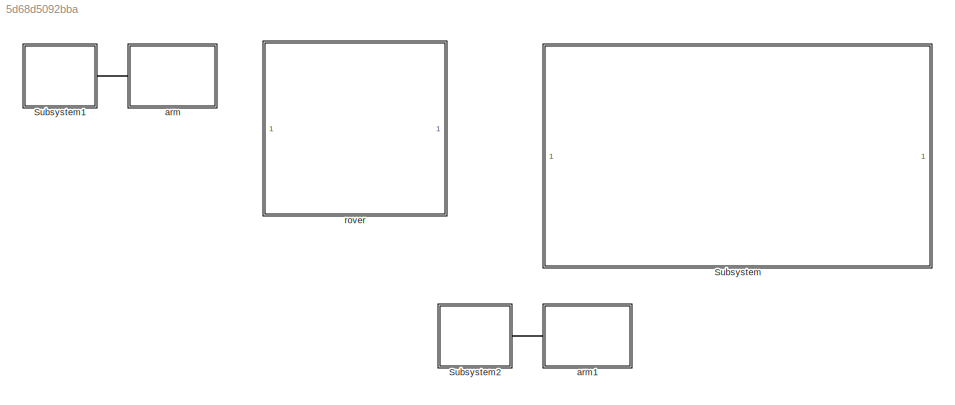
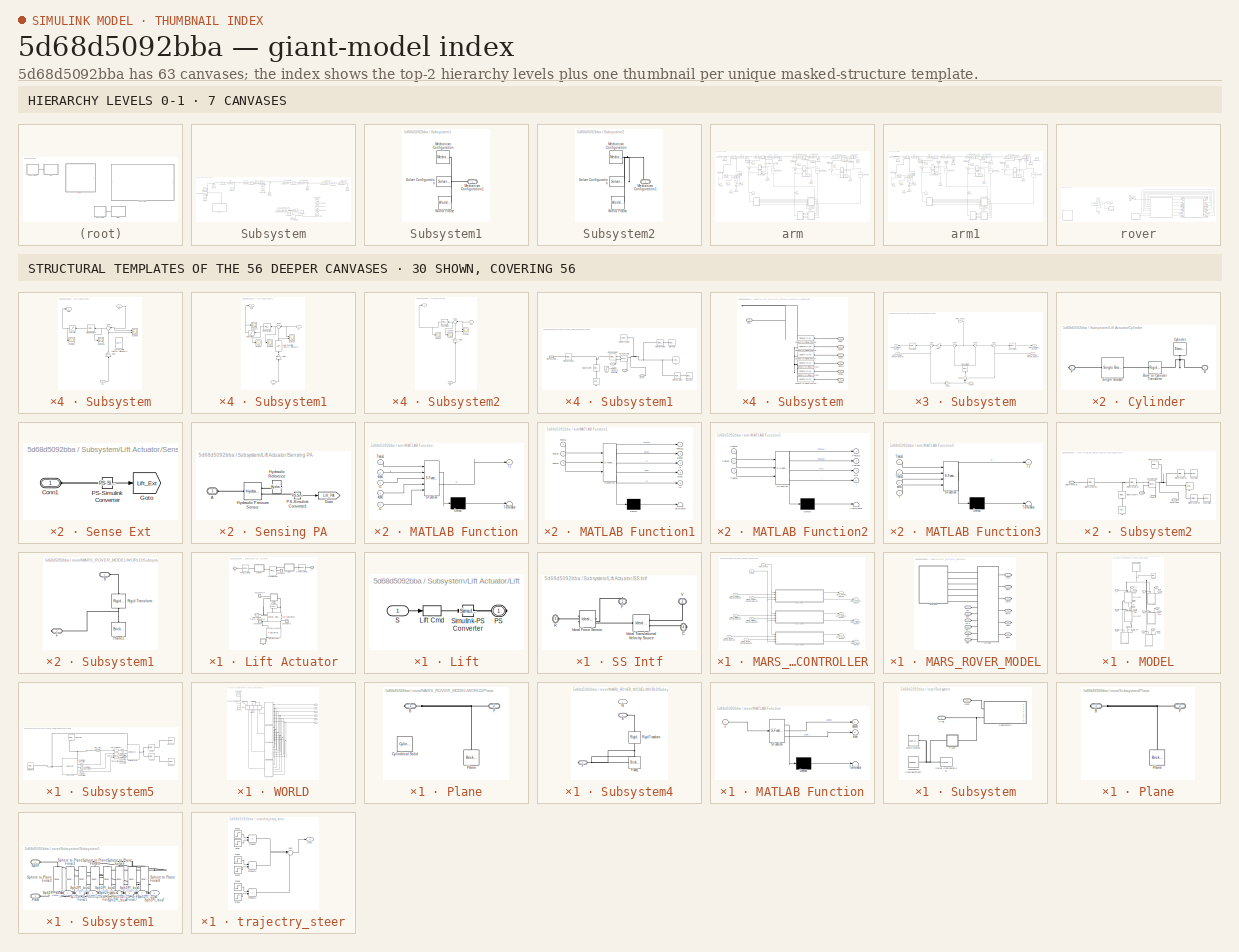
[diagram: thumbnail index - top-2 hierarchy levels (7 canvases) + 30 structural-template representatives of the remaining 56 canvases]
MODEL slx_5d68d5092bba
KIND model
CONFIG AbsTol = auto
CONFIG EnableMultiTasking = off
CONFIG FixedStep = auto
CONFIG MaxStep = .01
CONFIG MinStep = auto
CONFIG RelTol = 1e-4
CONFIG SampleTimeConstraint = Unconstrained
CONFIG SolverName = ode23t
CONFIG StartTime = 0.0
CONFIG StopTime = 10
BLOCK [SubSystem] Subsystem
  Commented = on
  Ports = []
  RequestExecContextInheritance = off
BLOCK [Reference] Subsystem/Brick Solid1  REF=sm_lib/Body Elements/Brick Solid
  Commented = on
  NameLocation = right
  Ports = [0, 0, 0, 0, 0, 0, 1]
  SourceBlock = sm_lib/Body Elements/Brick Solid
  SourceProductBaseCode = MS
  SourceType = Brick Solid
BLOCK [Reference] Subsystem/Brick Solid2  REF=sm_lib/Body Elements/Brick Solid
  Commented = on
  NameLocation = right
  Ports = [0, 0, 0, 0, 0, 0, 1]
  SourceBlock = sm_lib/Body Elements/Brick Solid
  SourceProductBaseCode = MS
  SourceType = Brick Solid
BLOCK [Reference] Subsystem/Brick Solid3  REF=sm_lib/Body Elements/Brick Solid
  Commented = on
  NameLocation = right
  Ports = [0, 0, 0, 0, 0, 0, 1]
  SourceBlock = sm_lib/Body Elements/Brick Solid
  SourceProductBaseCode = MS
  SourceType = Brick Solid
BLOCK [Reference] Subsystem/Brick Solid4  REF=sm_lib/Body Elements/Brick Solid
  Commented = on
  NameLocation = right
  Ports = [0, 0, 0, 0, 0, 0, 1]
  SourceBlock = sm_lib/Body Elements/Brick Solid
  SourceProductBaseCode = MS
  SourceType = Brick Solid
BLOCK [Reference] Subsystem/Cylindrical Solid  REF=sm_lib/Body Elements/Cylindrical Solid
  Commented = on
  Ports = [0, 0, 0, 0, 0, 0, 1]
  SourceBlock = sm_lib/Body Elements/Cylindrical Solid
  SourceProductBaseCode = MS
  SourceType = Cylindrical Solid
BLOCK [Reference] Subsystem/Cylindrical Solid1  REF=sm_lib/Body Elements/Cylindrical Solid
  Commented = on
  Ports = [0, 0, 0, 0, 0, 0, 1]
  SourceBlock = sm_lib/Body Elements/Cylindrical Solid
  SourceProductBaseCode = MS
  SourceType = Cylindrical Solid
BLOCK [Reference] Subsystem/Cylindrical Solid2  REF=sm_lib/Body Elements/Cylindrical Solid
  Commented = on
  Ports = [0, 0, 0, 0, 0, 0, 1]
  SourceBlock = sm_lib/Body Elements/Cylindrical Solid
  SourceProductBaseCode = MS
  SourceType = Cylindrical Solid
BLOCK [SubSystem] Subsystem/Lift Actuator
  NameLocation = left
  Ports = [0, 0, 0, 0, 0, 0, 2]
  RequestExecContextInheritance = off
  Tag = PublishSubsystem
BLOCK [SubSystem] Subsystem/Lift Actuator/Cylinder
  Ports = [0, 0, 0, 0, 0, 1, 1]
  RequestExecContextInheritance = off
BLOCK [PMIOPort] Subsystem/Lift Actuator/Cylinder/B
  NameLocation = top
  Port = 2
  Side = Left
BLOCK [Reference] Subsystem/Lift Actuator/Cylinder/Base to Cylinder Transform  REF=sm_lib/Frames and
Transforms/Rigid
Transform
  Ports = [0, 0, 0, 0, 0, 1, 1]
  SourceBlock = sm_lib/Frames and\nTransforms/Rigid\nTransform
  SourceProductBaseCode = MS
  SourceType = Rigid\nTransform
BLOCK [Reference] Subsystem/Lift Actuator/Cylinder/Cylinder  REF=sm_lib/Body Elements/Extruded Solid
  NameLocation = left
  Ports = [0, 0, 0, 0, 0, 0, 1]
  SourceBlock = sm_lib/Body Elements/Extruded Solid
  SourceProductBaseCode = MS
  SourceType = Extruded Solid
BLOCK [PMIOPort] Subsystem/Lift Actuator/Cylinder/F
  NameLocation = top
  Side = Right
BLOCK [Reference] Subsystem/Lift Actuator/Cylinder/Single Bracket  REF=Backhoe_Lib/Single Bracket
  NameLocation = top
  Ports = [0, 0, 0, 0, 0, 1, 1]
  SourceBlock = Backhoe_Lib/Single Bracket
  SourceType = Single Bracket
BLOCK [Reference] Subsystem/Lift Actuator/Directional Valve  REF=sh_lib/Valves/Directional Valves/4-Way Directional
Valve
  Commented = on
  NameLocation = right
  Ports = [0, 0, 0, 0, 0, 2, 3]
  SourceBlock = sh_lib/Valves/Directional Valves/4-Way Directional\nValve
  SourceProductBaseCode = SH
  SourceType = 4-Way Directional\nValve
  Tag = Factory Generic
BLOCK [Reference] Subsystem/Lift Actuator/Friction  REF=fl_lib/Mechanical/Translational
Elements/Translational
Friction
  Commented = on
  Ports = [0, 0, 0, 0, 0, 1, 1]
  SourceBlock = fl_lib/Mechanical/Translational\nElements/Translational\nFriction
  SourceProductBaseCode = SS
  SourceType = Translational\nFriction
BLOCK [PMIOPort] Subsystem/Lift Actuator/H
  NameLocation = top
  Port = 2
  Side = Right
BLOCK [Reference] Subsystem/Lift Actuator/Hub to LActuator  REF=sm_lib/Joints/Revolute Joint
  Ports = [0, 0, 0, 0, 0, 1, 1]
  SourceBlock = sm_lib/Joints/Revolute Joint
  SourceProductBaseCode = MS
  SourceType = Revolute Joint
BLOCK [Reference] Subsystem/Lift Actuator/Hydraulic Cylinder  REF=sh_lib/Hydraulic Cylinders/Double-Acting
Hydraulic Cylinder
  Commented = on
  Ports = [0, 0, 0, 0, 0, 2, 2]
  SourceBlock = sh_lib/Hydraulic Cylinders/Double-Acting\nHydraulic Cylinder
  SourceProductBaseCode = SH
  SourceType = Double-Acting\nHydraulic Cylinder
  Tag = Factory Generic
BLOCK [PMIOPort] Subsystem/Lift Actuator/LA
  NameLocation = top
  Side = Right
BLOCK [Reference] Subsystem/Lift Actuator/LArm to LActuator  REF=sm_lib/Joints/Revolute Joint
  Ports = [0, 0, 0, 0, 0, 1, 1]
  SourceBlock = sm_lib/Joints/Revolute Joint
  SourceProductBaseCode = MS
  SourceType = Revolute Joint
BLOCK [SubSystem] Subsystem/Lift Actuator/Lift
  Commented = on
  Ports = [1, 0, 0, 0, 0, 0, 1]
  RequestExecContextInheritance = off
BLOCK [Selector] Subsystem/Lift Actuator/Lift/Lift Cmd
  IndexOptions = Index vector (dialog)
  Indices = 3
  InputPortWidth = 3
  OutputSizes = 1
  Ports = [1, 1]
BLOCK [PMIOPort] Subsystem/Lift Actuator/Lift/PS
  Side = Right
BLOCK [Inport] Subsystem/Lift Actuator/Lift/S
BLOCK [Reference] Subsystem/Lift Actuator/Lift/Simulink-PS Converter  REF=nesl_utility/Simulink-PS
Converter
  Ports = [1, 0, 0, 0, 0, 0, 1]
  SourceBlock = nesl_utility/Simulink-PS\nConverter
  SourceProductBaseCode = SS
  SourceType = Simulink-PS\nConverter
BLOCK [Reference] Subsystem/Lift Actuator/Mechanical Translational Reference  REF=fl_lib/Mechanical/Translational
Elements/Mechanical
Translational
Reference
  Commented = on
  Ports = [0, 0, 0, 0, 0, 1]
  SourceBlock = fl_lib/Mechanical/Translational\nElements/Mechanical\nTranslational\nReference
  SourceProductBaseCode = SS
  SourceType = Mechanical\nTranslational\nReference
  Tag = Factory Generic
BLOCK [SubSystem] Subsystem/Lift Actuator/Piston
  Ports = [0, 0, 0, 0, 0, 1, 1]
  RequestExecContextInheritance = off
BLOCK [PMIOPort] Subsystem/Lift Actuator/Piston/B
  NameLocation = top
  Side = Left
BLOCK [PMIOPort] Subsystem/Lift Actuator/Piston/F
  NameLocation = top
  Port = 2
  Side = Right
BLOCK [Reference] Subsystem/Lift Actuator/Piston/Piston  REF=sm_lib/Body Elements/Cylindrical Solid
  NameLocation = left
  Ports = [0, 0, 0, 0, 0, 0, 1]
  SourceBlock = sm_lib/Body Elements/Cylindrical Solid
  SourceProductBaseCode = MS
  SourceType = Cylindrical Solid
BLOCK [Reference] Subsystem/Lift Actuator/Piston/Piston to Head Transform  REF=sm_lib/Frames and
Transforms/Rigid
Transform
  Ports = [0, 0, 0, 0, 0, 1, 1]
  SourceBlock = sm_lib/Frames and\nTransforms/Rigid\nTransform
  SourceProductBaseCode = MS
  SourceType = Rigid\nTransform
BLOCK [Reference] Subsystem/Lift Actuator/Piston/Single Bracket  REF=Backhoe_Lib/Single Bracket
  Ports = [0, 0, 0, 0, 0, 1, 1]
  SourceBlock = Backhoe_Lib/Single Bracket
  SourceType = Single Bracket
BLOCK [Reference] Subsystem/Lift Actuator/Prismatic  Joint  REF=sm_lib/Joints/Prismatic
Joint
  Ports = [0, 0, 0, 0, 0, 2, 3]
  SourceBlock = sm_lib/Joints/Prismatic\nJoint
  SourceProductBaseCode = MS
  SourceType = Prismatic\nJoint
BLOCK [SubSystem] Subsystem/Lift Actuator/SS Intf
  Commented = on
  Ports = [0, 0, 0, 0, 0, 2, 2]
  RequestExecContextInheritance = off
BLOCK [PMIOPort] Subsystem/Lift Actuator/SS Intf/C
  Port = 4
  Side = Right
BLOCK [PMIOPort] Subsystem/Lift Actuator/SS Intf/F
  NameLocation = left
  Side = Right
BLOCK [Reference] Subsystem/Lift Actuator/SS Intf/Ideal Force Sensor  REF=fl_lib/Mechanical/Mechanical Sensors/Ideal Force Sensor
  NameLocation = top
  Ports = [0, 0, 0, 0, 0, 1, 2]
  SourceBlock = fl_lib/Mechanical/Mechanical Sensors/Ideal Force Sensor
  SourceProductBaseCode = SS
  SourceType = Ideal Force Sensor
BLOCK [Reference] Subsystem/Lift Actuator/SS Intf/Ideal Translational Velocity Source  REF=fl_lib/Mechanical/Mechanical Sources/Ideal Translational
Velocity Source
  Ports = [0, 0, 0, 0, 0, 1, 2]
  SourceBlock = fl_lib/Mechanical/Mechanical Sources/Ideal Translational\nVelocity Source
  SourceProductBaseCode = SS
  SourceType = Ideal Translational\nVelocity Source
BLOCK [PMIOPort] Subsystem/Lift Actuator/SS Intf/R
  Port = 3
  Side = Left
BLOCK [PMIOPort] Subsystem/Lift Actuator/SS Intf/V
  NameLocation = left
  Port = 2
  Side = Left
BLOCK [SubSystem] Subsystem/Lift Actuator/Sense Ext
  Ports = [0, 0, 0, 0, 0, 1]
  RequestExecContextInheritance = off
BLOCK [PMIOPort] Subsystem/Lift Actuator/Sense Ext/Conn1
  Side = Left
BLOCK [Goto] Subsystem/Lift Actuator/Sense Ext/Goto
  GotoTag = Lift_Ext
  TagVisibility = global
BLOCK [Reference] Subsystem/Lift Actuator/Sense Ext/PS-Simulink Converter  REF=nesl_utility/PS-Simulink
Converter
  Ports = [0, 1, 0, 0, 0, 1]
  SourceBlock = nesl_utility/PS-Simulink\nConverter
  SourceProductBaseCode = SS
  SourceType = PS-Simulink\nConverter
BLOCK [SubSystem] Subsystem/Lift Actuator/Sense Force
  Commented = on
  Ports = [0, 0, 0, 0, 0, 0, 1]
  RequestExecContextInheritance = off
BLOCK [Goto] Subsystem/Lift Actuator/Sense Force/Goto
  GotoTag = Lift_Force
  TagVisibility = global
BLOCK [Reference] Subsystem/Lift Actuator/Sense Force/PS-Simulink Converter  REF=nesl_utility/PS-Simulink
Converter
  NameLocation = top
  Ports = [0, 1, 0, 0, 0, 1]
  SourceBlock = nesl_utility/PS-Simulink\nConverter
  SourceProductBaseCode = SS
  SourceType = PS-Simulink\nConverter
BLOCK [PMIOPort] Subsystem/Lift Actuator/Sense Force/S
  Side = Right
BLOCK [SubSystem] Subsystem/Lift Actuator/Sensing PA
  Commented = on
  Ports = [0, 0, 0, 0, 0, 1]
  RequestExecContextInheritance = off
BLOCK [PMIOPort] Subsystem/Lift Actuator/Sensing PA/A
  Side = Left
BLOCK [Goto] Subsystem/Lift Actuator/Sensing PA/Goto
  GotoTag = Lift_PA
  TagVisibility = global
BLOCK [Reference] Subsystem/Lift Actuator/Sensing PA/Hydraulic Pressure Sensor  REF=fl_lib/Hydraulic/Hydraulic Sensors/Hydraulic Pressure
Sensor
  Ports = [0, 0, 0, 0, 0, 1, 2]
  SourceBlock = fl_lib/Hydraulic/Hydraulic Sensors/Hydraulic Pressure\nSensor
  SourceProductBaseCode = SS
  SourceType = Hydraulic Pressure\nSensor
BLOCK [Reference] Subsystem/Lift Actuator/Sensing PA/Hydraulic Reference  REF=fl_lib/Hydraulic/Hydraulic Elements/Hydraulic Reference
  NameLocation = top
  Ports = [0, 0, 0, 0, 0, 1]
  SourceBlock = fl_lib/Hydraulic/Hydraulic Elements/Hydraulic Reference
  SourceProductBaseCode = SS
  SourceType = Hydraulic Reference
BLOCK [Reference] Subsystem/Lift Actuator/Sensing PA/PS-Simulink Converter1  REF=nesl_utility/PS-Simulink
Converter
  Ports = [0, 1, 0, 0, 0, 1]
  SourceBlock = nesl_utility/PS-Simulink\nConverter
  SourceProductBaseCode = SS
  SourceType = PS-Simulink\nConverter
BLOCK [SubSystem] Subsystem/Lift Actuator/Sensing PA1
  Commented = on
  NameLocation = top
  Ports = [0, 0, 0, 0, 0, 1]
  RequestExecContextInheritance = off
BLOCK [PMIOPort] Subsystem/Lift Actuator/Sensing PA1/A
  Side = Left
BLOCK [Goto] Subsystem/Lift Actuator/Sensing PA1/Goto
  GotoTag = Lift_PB
  TagVisibility = global
BLOCK [Reference] Subsystem/Lift Actuator/Sensing PA1/Hydraulic Pressure Sensor  REF=fl_lib/Hydraulic/Hydraulic Sensors/Hydraulic Pressure
Sensor
  Ports = [0, 0, 0, 0, 0, 1, 2]
  SourceBlock = fl_lib/Hydraulic/Hydraulic Sensors/Hydraulic Pressure\nSensor
  SourceProductBaseCode = SS
  SourceType = Hydraulic Pressure\nSensor
BLOCK [Reference] Subsystem/Lift Actuator/Sensing PA1/Hydraulic Reference1  REF=fl_lib/Hydraulic/Hydraulic Elements/Hydraulic Reference
  NameLocation = top
  Ports = [0, 0, 0, 0, 0, 1]
  SourceBlock = fl_lib/Hydraulic/Hydraulic Elements/Hydraulic Reference
  SourceProductBaseCode = SS
  SourceType = Hydraulic Reference
BLOCK [Reference] Subsystem/Lift Actuator/Sensing PA1/PS-Simulink Converter1  REF=nesl_utility/PS-Simulink
Converter
  Ports = [0, 1, 0, 0, 0, 1]
  SourceBlock = nesl_utility/PS-Simulink\nConverter
  SourceProductBaseCode = SS
  SourceType = PS-Simulink\nConverter
BLOCK [Reference] Subsystem/Mechanism Configuration  REF=sm_lib/Utilities/Mechanism
Configuration
  Ports = [0, 0, 0, 0, 0, 0, 1]
  SourceBlock = sm_lib/Utilities/Mechanism\nConfiguration
  SourceProductBaseCode = MS
  SourceType = Mechanism\nConfiguration
BLOCK [Reference] Subsystem/Prismatic Joint  REF=sm_lib/Joints/Prismatic
Joint
  Commented = on
  Ports = [0, 0, 0, 0, 0, 2, 1]
  SourceBlock = sm_lib/Joints/Prismatic\nJoint
  SourceProductBaseCode = MS
  SourceType = Prismatic\nJoint
BLOCK [Reference] Subsystem/Revolute Joint  REF=sm_lib/Joints/Revolute Joint
  Commented = on
  Ports = [0, 0, 0, 0, 0, 2, 3]
  SourceBlock = sm_lib/Joints/Revolute Joint
  SourceProductBaseCode = MS
  SourceType = Revolute Joint
BLOCK [Reference] Subsystem/Revolute Joint1  REF=sm_lib/Joints/Revolute Joint
  Commented = on
  Ports = [0, 0, 0, 0, 0, 2, 3]
  SourceBlock = sm_lib/Joints/Revolute Joint
  SourceProductBaseCode = MS
  SourceType = Revolute Joint
BLOCK [Reference] Subsystem/Revolute Joint2  REF=sm_lib/Joints/Revolute Joint
  Commented = on
  Ports = [0, 0, 0, 0, 0, 2, 3]
  SourceBlock = sm_lib/Joints/Revolute Joint
  SourceProductBaseCode = MS
  SourceType = Revolute Joint
BLOCK [Reference] Subsystem/Revolute Joint3  REF=sm_lib/Joints/Revolute Joint
  Commented = on
  Ports = [0, 0, 0, 0, 0, 2, 2]
  SourceBlock = sm_lib/Joints/Revolute Joint
  SourceProductBaseCode = MS
  SourceType = Revolute Joint
BLOCK [Reference] Subsystem/Revolute Joint4  REF=sm_lib/Joints/Revolute Joint
  Commented = on
  Ports = [0, 0, 0, 0, 0, 1, 1]
  SourceBlock = sm_lib/Joints/Revolute Joint
  SourceProductBaseCode = MS
  SourceType = Revolute Joint
BLOCK [Reference] Subsystem/Revolute Joint5  REF=sm_lib/Joints/Revolute Joint
  Commented = on
  NameLocation = left
  Ports = [0, 0, 0, 0, 0, 1, 1]
  SourceBlock = sm_lib/Joints/Revolute Joint
  SourceProductBaseCode = MS
  SourceType = Revolute Joint
BLOCK [Reference] Subsystem/Rigid Transform  REF=sm_lib/Frames and
Transforms/Rigid
Transform
  Commented = on
  Ports = [0, 0, 0, 0, 0, 1, 1]
  SourceBlock = sm_lib/Frames and\nTransforms/Rigid\nTransform
  SourceProductBaseCode = MS
  SourceType = Rigid\nTransform
BLOCK [Reference] Subsystem/Rigid Transform1  REF=sm_lib/Frames and
Transforms/Rigid
Transform
  Commented = on
  Ports = [0, 0, 0, 0, 0, 1, 1]
  SourceBlock = sm_lib/Frames and\nTransforms/Rigid\nTransform
  SourceProductBaseCode = MS
  SourceType = Rigid\nTransform
BLOCK [Reference] Subsystem/Rigid Transform10  REF=sm_lib/Frames and
Transforms/Rigid
Transform
  Commented = on
  Ports = [0, 0, 0, 0, 0, 1, 1]
  SourceBlock = sm_lib/Frames and\nTransforms/Rigid\nTransform
  SourceProductBaseCode = MS
  SourceType = Rigid\nTransform
BLOCK [Reference] Subsystem/Rigid Transform11  REF=sm_lib/Frames and
Transforms/Rigid
Transform
  Commented = on
  Ports = [0, 0, 0, 0, 0, 1, 1]
  SourceBlock = sm_lib/Frames and\nTransforms/Rigid\nTransform
  SourceProductBaseCode = MS
  SourceType = Rigid\nTransform
BLOCK [Reference] Subsystem/Rigid Transform12  REF=sm_lib/Frames and
Transforms/Rigid
Transform
  Commented = on
  Ports = [0, 0, 0, 0, 0, 1, 1]
  SourceBlock = sm_lib/Frames and\nTransforms/Rigid\nTransform
  SourceProductBaseCode = MS
  SourceType = Rigid\nTransform
BLOCK [Reference] Subsystem/Rigid Transform13  REF=sm_lib/Frames and
Transforms/Rigid
Transform
  Commented = on
  Ports = [0, 0, 0, 0, 0, 1, 1]
  SourceBlock = sm_lib/Frames and\nTransforms/Rigid\nTransform
  SourceProductBaseCode = MS
  SourceType = Rigid\nTransform
BLOCK [Reference] Subsystem/Rigid Transform14  REF=sm_lib/Frames and
Transforms/Rigid
Transform
  Commented = on
  Ports = [0, 0, 0, 0, 0, 1, 1]
  SourceBlock = sm_lib/Frames and\nTransforms/Rigid\nTransform
  SourceProductBaseCode = MS
  SourceType = Rigid\nTransform
BLOCK [Reference] Subsystem/Rigid Transform15  REF=sm_lib/Frames and
Transforms/Rigid
Transform
  Commented = on
  NameLocation = left
  Ports = [0, 0, 0, 0, 0, 1, 1]
  SourceBlock = sm_lib/Frames and\nTransforms/Rigid\nTransform
  SourceProductBaseCode = MS
  SourceType = Rigid\nTransform
BLOCK [Reference] Subsystem/Rigid Transform16  REF=sm_lib/Frames and
Transforms/Rigid
Transform
  Commented = on
  NameLocation = left
  Ports = [0, 0, 0, 0, 0, 1, 1]
  SourceBlock = sm_lib/Frames and\nTransforms/Rigid\nTransform
  SourceProductBaseCode = MS
  SourceType = Rigid\nTransform
BLOCK [Reference] Subsystem/Rigid Transform17  REF=sm_lib/Frames and
Transforms/Rigid
Transform
  Commented = on
  NameLocation = left
  Ports = [0, 0, 0, 0, 0, 1, 1]
  SourceBlock = sm_lib/Frames and\nTransforms/Rigid\nTransform
  SourceProductBaseCode = MS
  SourceType = Rigid\nTransform
BLOCK [Reference] Subsystem/Rigid Transform18  REF=sm_lib/Frames and
Transforms/Rigid
Transform
  Commented = on
  NameLocation = left
  Ports = [0, 0, 0, 0, 0, 1, 1]
  SourceBlock = sm_lib/Frames and\nTransforms/Rigid\nTransform
  SourceProductBaseCode = MS
  SourceType = Rigid\nTransform
BLOCK [Reference] Subsystem/Rigid Transform2  REF=sm_lib/Frames and
Transforms/Rigid
Transform
  Commented = on
  Ports = [0, 0, 0, 0, 0, 1, 1]
  SourceBlock = sm_lib/Frames and\nTransforms/Rigid\nTransform
  SourceProductBaseCode = MS
  SourceType = Rigid\nTransform
BLOCK [Reference] Subsystem/Rigid Transform21  REF=sm_lib/Frames and
Transforms/Rigid
Transform
  Commented = on
  NameLocation = left
  Ports = [0, 0, 0, 0, 0, 1, 1]
  SourceBlock = sm_lib/Frames and\nTransforms/Rigid\nTransform
  SourceProductBaseCode = MS
  SourceType = Rigid\nTransform
BLOCK [Reference] Subsystem/Rigid Transform22  REF=sm_lib/Frames and
Transforms/Rigid
Transform
  Commented = on
  NameLocation = left
  Ports = [0, 0, 0, 0, 0, 1, 1]
  SourceBlock = sm_lib/Frames and\nTransforms/Rigid\nTransform
  SourceProductBaseCode = MS
  SourceType = Rigid\nTransform
BLOCK [Reference] Subsystem/Rigid Transform3  REF=sm_lib/Frames and
Transforms/Rigid
Transform
  Commented = on
  Ports = [0, 0, 0, 0, 0, 1, 1]
  SourceBlock = sm_lib/Frames and\nTransforms/Rigid\nTransform
  SourceProductBaseCode = MS
  SourceType = Rigid\nTransform
BLOCK [Reference] Subsystem/Rigid Transform4  REF=sm_lib/Frames and
Transforms/Rigid
Transform
  Commented = on
  Ports = [0, 0, 0, 0, 0, 1, 1]
  SourceBlock = sm_lib/Frames and\nTransforms/Rigid\nTransform
  SourceProductBaseCode = MS
  SourceType = Rigid\nTransform
BLOCK [Reference] Subsystem/Rigid Transform5  REF=sm_lib/Frames and
Transforms/Rigid
Transform
  Commented = on
  Ports = [0, 0, 0, 0, 0, 1, 1]
  SourceBlock = sm_lib/Frames and\nTransforms/Rigid\nTransform
  SourceProductBaseCode = MS
  SourceType = Rigid\nTransform
BLOCK [Reference] Subsystem/Rigid Transform6  REF=sm_lib/Frames and
Transforms/Rigid
Transform
  Commented = on
  Ports = [0, 0, 0, 0, 0, 1, 1]
  SourceBlock = sm_lib/Frames and\nTransforms/Rigid\nTransform
  SourceProductBaseCode = MS
  SourceType = Rigid\nTransform
BLOCK [Reference] Subsystem/Rigid Transform7  REF=sm_lib/Frames and
Transforms/Rigid
Transform
  Commented = on
  Ports = [0, 0, 0, 0, 0, 1, 1]
  SourceBlock = sm_lib/Frames and\nTransforms/Rigid\nTransform
  SourceProductBaseCode = MS
  SourceType = Rigid\nTransform
BLOCK [Reference] Subsystem/Rigid Transform8  REF=sm_lib/Frames and
Transforms/Rigid
Transform
  Commented = on
  Ports = [0, 0, 0, 0, 0, 1, 1]
  SourceBlock = sm_lib/Frames and\nTransforms/Rigid\nTransform
  SourceProductBaseCode = MS
  SourceType = Rigid\nTransform
BLOCK [Reference] Subsystem/Rigid Transform9  REF=sm_lib/Frames and
Transforms/Rigid
Transform
  Commented = on
  Ports = [0, 0, 0, 0, 0, 1, 1]
  SourceBlock = sm_lib/Frames and\nTransforms/Rigid\nTransform
  SourceProductBaseCode = MS
  SourceType = Rigid\nTransform
BLOCK [Reference] Subsystem/Simulink-PS Converter  REF=nesl_utility/Simulink-PS
Converter
  Commented = on
  Ports = [1, 0, 0, 0, 0, 0, 1]
  SourceBlock = nesl_utility/Simulink-PS\nConverter
  SourceProductBaseCode = SS
  SourceType = Simulink-PS\nConverter
BLOCK [Reference] Subsystem/Solver Configuration  REF=nesl_utility/Solver
Configuration
  Ports = [0, 0, 0, 0, 0, 0, 1]
  SourceBlock = nesl_utility/Solver\nConfiguration
  SourceProductBaseCode = SS
  SourceType = Solver\nConfiguration
BLOCK [Step] Subsystem/Step
  After = 10000000
  Commented = on
  SampleTime = 0
BLOCK [Reference] Subsystem/World Frame  REF=sm_lib/Frames and
Transforms/World Frame
  Ports = [0, 0, 0, 0, 0, 0, 1]
  SourceBlock = sm_lib/Frames and\nTransforms/World Frame
  SourceProductBaseCode = MS
  SourceType = World Frame
BLOCK [SubSystem] Subsystem1
  Ports = [0, 0, 0, 0, 0, 0, 1]
  RequestExecContextInheritance = off
BLOCK [Reference] Subsystem1/Mechanism Configuration  REF=sm_lib/Utilities/Mechanism
Configuration
  Ports = [0, 0, 0, 0, 0, 0, 1]
  SourceBlock = sm_lib/Utilities/Mechanism\nConfiguration
  SourceProductBaseCode = MS
  SourceType = Mechanism\nConfiguration
BLOCK [PMIOPort] Subsystem1/Mechanism Configuration1
  Side = Right
BLOCK [Reference] Subsystem1/Solver Configuration  REF=nesl_utility/Solver
Configuration
  Ports = [0, 0, 0, 0, 0, 0, 1]
  SourceBlock = nesl_utility/Solver\nConfiguration
  SourceProductBaseCode = SS
  SourceType = Solver\nConfiguration
BLOCK [Reference] Subsystem1/World Frame  REF=sm_lib/Frames and
Transforms/World Frame
  Ports = [0, 0, 0, 0, 0, 0, 1]
  SourceBlock = sm_lib/Frames and\nTransforms/World Frame
  SourceProductBaseCode = MS
  SourceType = World Frame
BLOCK [SubSystem] Subsystem2
  Commented = on
  Ports = [0, 0, 0, 0, 0, 0, 1]
  RequestExecContextInheritance = off
BLOCK [Reference] Subsystem2/Mechanism Configuration  REF=sm_lib/Utilities/Mechanism
Configuration
  Ports = [0, 0, 0, 0, 0, 0, 1]
  SourceBlock = sm_lib/Utilities/Mechanism\nConfiguration
  SourceProductBaseCode = MS
  SourceType = Mechanism\nConfiguration
BLOCK [PMIOPort] Subsystem2/Mechanism Configuration1
  Side = Right
BLOCK [Reference] Subsystem2/Solver Configuration  REF=nesl_utility/Solver
Configuration
  Ports = [0, 0, 0, 0, 0, 0, 1]
  SourceBlock = nesl_utility/Solver\nConfiguration
  SourceProductBaseCode = SS
  SourceType = Solver\nConfiguration
BLOCK [Reference] Subsystem2/World Frame  REF=sm_lib/Frames and
Transforms/World Frame
  Ports = [0, 0, 0, 0, 0, 0, 1]
  SourceBlock = sm_lib/Frames and\nTransforms/World Frame
  SourceProductBaseCode = MS
  SourceType = World Frame
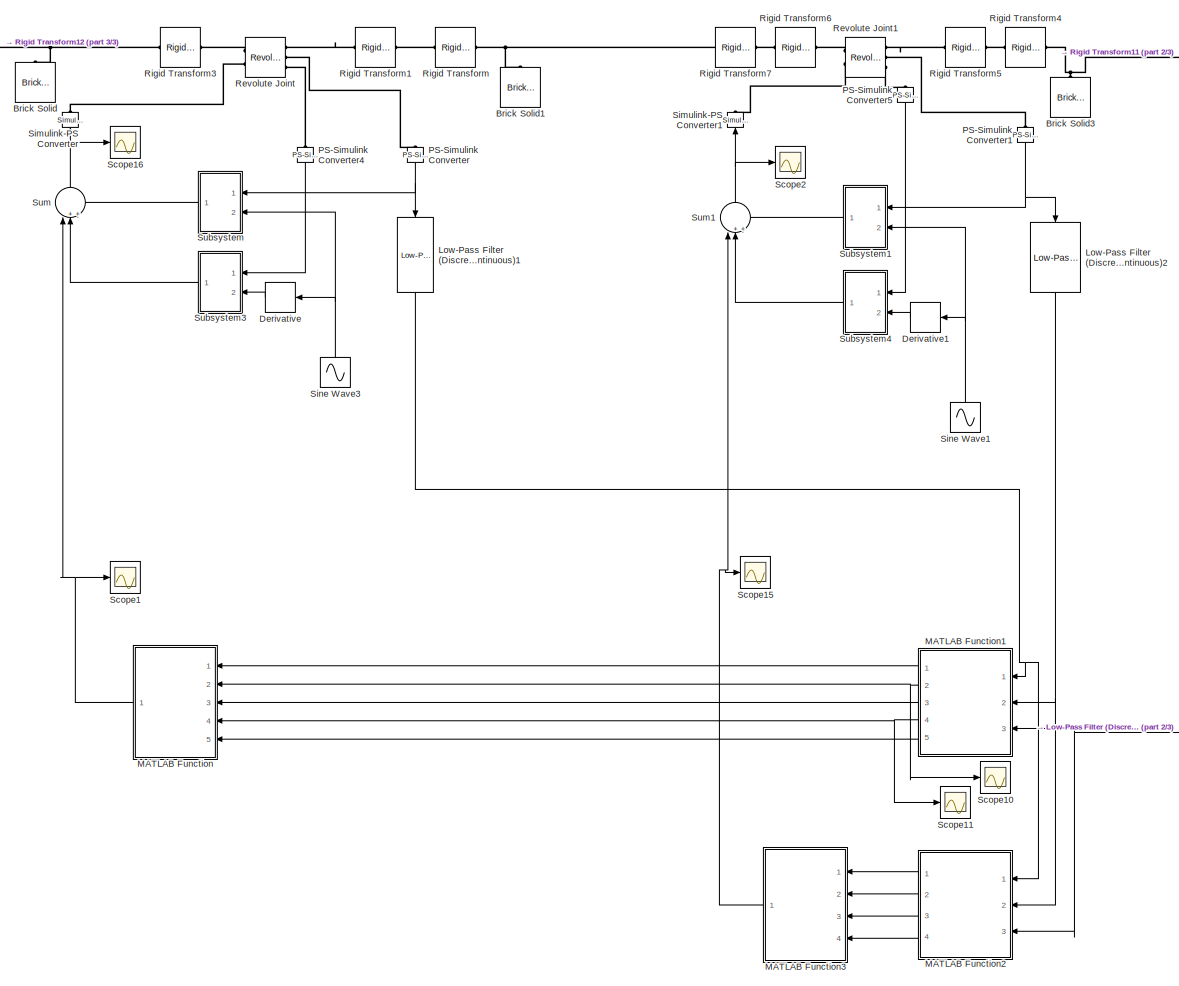
[diagram: arm - part 1/3, center side, full height]
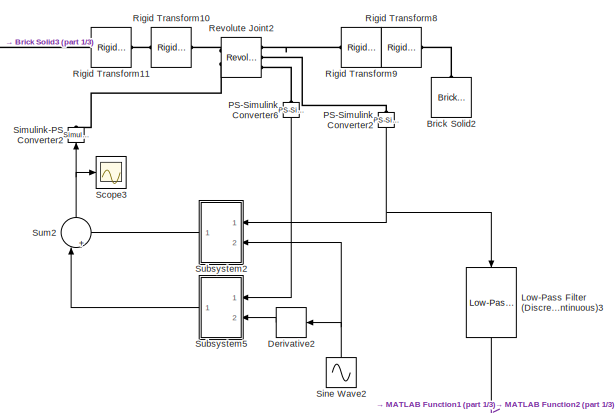
[diagram: arm - part 2/3, top right region]
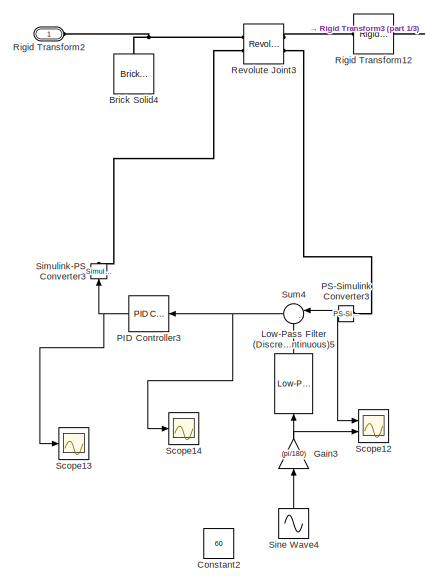
[diagram: arm - part 3/3, top left region]
BLOCK [SubSystem] arm
  Ports = [0, 0, 0, 0, 0, 1]
  RequestExecContextInheritance = off
BLOCK [Reference] arm/Brick Solid  REF=sm_lib/Body Elements/Brick Solid
  NameLocation = right
  Ports = [0, 0, 0, 0, 0, 0, 1]
  SourceBlock = sm_lib/Body Elements/Brick Solid
  SourceProductBaseCode = MS
  SourceType = Brick Solid
BLOCK [Reference] arm/Brick Solid1  REF=sm_lib/Body Elements/Brick Solid
  NameLocation = right
  Ports = [0, 0, 0, 0, 0, 0, 1]
  SourceBlock = sm_lib/Body Elements/Brick Solid
  SourceProductBaseCode = MS
  SourceType = Brick Solid
BLOCK [Reference] arm/Brick Solid2  REF=sm_lib/Body Elements/Brick Solid
  NameLocation = right
  Ports = [0, 0, 0, 0, 0, 0, 1]
  SourceBlock = sm_lib/Body Elements/Brick Solid
  SourceProductBaseCode = MS
  SourceType = Brick Solid
BLOCK [Reference] arm/Brick Solid3  REF=sm_lib/Body Elements/Brick Solid
  NameLocation = right
  Ports = [0, 0, 0, 0, 0, 0, 1]
  SourceBlock = sm_lib/Body Elements/Brick Solid
  SourceProductBaseCode = MS
  SourceType = Brick Solid
BLOCK [Reference] arm/Brick Solid4  REF=sm_lib/Body Elements/Brick Solid
  NameLocation = right
  Ports = [0, 0, 0, 0, 0, 0, 1]
  SourceBlock = sm_lib/Body Elements/Brick Solid
  SourceProductBaseCode = MS
  SourceType = Brick Solid
BLOCK [Constant] arm/Constant2
  Value = 60
BLOCK [Derivative] arm/Derivative
  NameLocation = top
BLOCK [Derivative] arm/Derivative1
  NameLocation = top
BLOCK [Derivative] arm/Derivative2
  NameLocation = top
BLOCK [Gain] arm/Gain3
  Gain = (pi/180)
  NameLocation = right
BLOCK [Reference] arm/Low-Pass Filter (Discrete or Continuous)1  REF=eeGeneralControl/Low-Pass Filter
(Discrete or Continuous)
  NameLocation = left
  Ports = [1, 1]
  SourceBlock = eeGeneralControl/Low-Pass Filter\n(Discrete or Continuous)
  SourceProductBaseCode = PS
  SourceType = Low-Pass Filter (Discrete or Continuous)
BLOCK [Reference] arm/Low-Pass Filter (Discrete or Continuous)2  REF=eeGeneralControl/Low-Pass Filter
(Discrete or Continuous)
  NameLocation = left
  Ports = [1, 1]
  SourceBlock = eeGeneralControl/Low-Pass Filter\n(Discrete or Continuous)
  SourceProductBaseCode = PS
  SourceType = Low-Pass Filter (Discrete or Continuous)
BLOCK [Reference] arm/Low-Pass Filter (Discrete or Continuous)3  REF=eeGeneralControl/Low-Pass Filter
(Discrete or Continuous)
  NameLocation = left
  Ports = [1, 1]
  SourceBlock = eeGeneralControl/Low-Pass Filter\n(Discrete or Continuous)
  SourceProductBaseCode = PS
  SourceType = Low-Pass Filter (Discrete or Continuous)
BLOCK [Reference] arm/Low-Pass Filter (Discrete or Continuous)5  REF=eeGeneralControl/Low-Pass Filter
(Discrete or Continuous)
  NameLocation = right
  Ports = [1, 1]
  SourceBlock = eeGeneralControl/Low-Pass Filter\n(Discrete or Continuous)
  SourceProductBaseCode = PS
  SourceType = Low-Pass Filter (Discrete or Continuous)
BLOCK [SubSystem] arm/MATLAB Function
  ErrorFcn = Stateflow.Translate.translate
  NameLocation = top
  PermitHierarchicalResolution = ExplicitOnly
  Ports = [5, 1]
  RequestExecContextInheritance = off
  SFBlockType = MATLAB Function
  TreatAsAtomicUnit = on
BLOCK [Demux] arm/MATLAB Function/ Demux 
  Outputs = 1
  Ports = [1, 1]
BLOCK [S-Function] arm/MATLAB Function/ SFunction 
  EnableBusSupport = on
  FunctionName = sf_sfun
  PortCounts = [5 2]
  Ports = [5, 2]
  SFcnIsStateOwnerBlock = off
  SFunctionDeploymentMode = off
  Tag = Stateflow S-Function 2
BLOCK [Terminator] arm/MATLAB Function/ Terminator 
BLOCK [Outport] arm/MATLAB Function/T1
BLOCK [Inport] arm/MATLAB Function/Theta1
BLOCK [Inport] arm/MATLAB Function/alpa1
  Port = 2
BLOCK [Inport] arm/MATLAB Function/alpa2
  Port = 4
BLOCK [Inport] arm/MATLAB Function/r1
  Port = 3
BLOCK [Inport] arm/MATLAB Function/r2
  Port = 5
BLOCK [SubSystem] arm/MATLAB Function1
  ErrorFcn = Stateflow.Translate.translate
  NameLocation = top
  PermitHierarchicalResolution = ExplicitOnly
  Ports = [3, 5]
  RequestExecContextInheritance = off
  SFBlockType = MATLAB Function
  TreatAsAtomicUnit = on
BLOCK [Demux] arm/MATLAB Function1/ Demux 
  Outputs = 1
  Ports = [1, 1]
BLOCK [S-Function] arm/MATLAB Function1/ SFunction 
  EnableBusSupport = on
  FunctionName = sf_sfun
  PortCounts = [3 6]
  Ports = [3, 6]
  SFcnIsStateOwnerBlock = off
  SFunctionDeploymentMode = off
  Tag = Stateflow S-Function 1
BLOCK [Terminator] arm/MATLAB Function1/ Terminator 
BLOCK [Inport] arm/MATLAB Function1/Theta1
BLOCK [Outport] arm/MATLAB Function1/Theta11
BLOCK [Inport] arm/MATLAB Function1/Theta2
  Port = 2
BLOCK [Inport] arm/MATLAB Function1/Theta3
  Port = 3
BLOCK [Outport] arm/MATLAB Function1/alpa2
  Port = 4
BLOCK [Outport] arm/MATLAB Function1/alpha1
  Port = 2
BLOCK [Outport] arm/MATLAB Function1/r1
  Port = 3
BLOCK [Outport] arm/MATLAB Function1/r2
  Port = 5
BLOCK [SubSystem] arm/MATLAB Function2
  ErrorFcn = Stateflow.Translate.translate
  NameLocation = top
  PermitHierarchicalResolution = ExplicitOnly
  Ports = [3, 4]
  RequestExecContextInheritance = off
  SFBlockType = MATLAB Function
  TreatAsAtomicUnit = on
BLOCK [Demux] arm/MATLAB Function2/ Demux 
  Outputs = 1
  Ports = [1, 1]
BLOCK [S-Function] arm/MATLAB Function2/ SFunction 
  EnableBusSupport = on
  FunctionName = sf_sfun
  PortCounts = [3 5]
  Ports = [3, 5]
  SFcnIsStateOwnerBlock = off
  SFunctionDeploymentMode = off
  Tag = Stateflow S-Function 3
BLOCK [Terminator] arm/MATLAB Function2/ Terminator 
BLOCK [Inport] arm/MATLAB Function2/Theta1
BLOCK [Outport] arm/MATLAB Function2/Theta11
BLOCK [Inport] arm/MATLAB Function2/Theta2
  Port = 2
BLOCK [Outport] arm/MATLAB Function2/Theta22
  Port = 2
BLOCK [Inport] arm/MATLAB Function2/Theta3
  Port = 3
BLOCK [Outport] arm/MATLAB Function2/alfa
  Port = 3
BLOCK [Outport] arm/MATLAB Function2/r
  Port = 4
BLOCK [SubSystem] arm/MATLAB Function3
  ErrorFcn = Stateflow.Translate.translate
  NameLocation = top
  PermitHierarchicalResolution = ExplicitOnly
  Ports = [4, 1]
  RequestExecContextInheritance = off
  SFBlockType = MATLAB Function
  TreatAsAtomicUnit = on
BLOCK [Demux] arm/MATLAB Function3/ Demux 
  Outputs = 1
  Ports = [1, 1]
BLOCK [S-Function] arm/MATLAB Function3/ SFunction 
  EnableBusSupport = on
  FunctionName = sf_sfun
  PortCounts = [4 2]
  Ports = [4, 2]
  SFcnIsStateOwnerBlock = off
  SFunctionDeploymentMode = off
  Tag = Stateflow S-Function 4
BLOCK [Terminator] arm/MATLAB Function3/ Terminator 
BLOCK [Outport] arm/MATLAB Function3/T1
BLOCK [Inport] arm/MATLAB Function3/Theta1
BLOCK [Inport] arm/MATLAB Function3/Theta2
  Port = 2
BLOCK [Inport] arm/MATLAB Function3/alfa
  Port = 3
BLOCK [Inport] arm/MATLAB Function3/r
  Port = 4
BLOCK [Reference] arm/PID Controller3  REF=pid_lib/PID Controller
  NameLocation = top
  Ports = [1, 1]
  SourceBlock = pid_lib/PID Controller
  SourceProductBaseCode = SL
  SourceType = PID 1dof
BLOCK [Reference] arm/PS-Simulink Converter  REF=nesl_utility/PS-Simulink
Converter
  NameLocation = left
  Ports = [0, 1, 0, 0, 0, 1]
  SourceBlock = nesl_utility/PS-Simulink\nConverter
  SourceProductBaseCode = SS
  SourceType = PS-Simulink\nConverter
BLOCK [Reference] arm/PS-Simulink Converter1  REF=nesl_utility/PS-Simulink
Converter
  NameLocation = left
  Ports = [0, 1, 0, 0, 0, 1]
  SourceBlock = nesl_utility/PS-Simulink\nConverter
  SourceProductBaseCode = SS
  SourceType = PS-Simulink\nConverter
BLOCK [Reference] arm/PS-Simulink Converter2  REF=nesl_utility/PS-Simulink
Converter
  NameLocation = left
  Ports = [0, 1, 0, 0, 0, 1]
  SourceBlock = nesl_utility/PS-Simulink\nConverter
  SourceProductBaseCode = SS
  SourceType = PS-Simulink\nConverter
BLOCK [Reference] arm/PS-Simulink Converter3  REF=nesl_utility/PS-Simulink
Converter
  NameLocation = top
  Ports = [0, 1, 0, 0, 0, 1]
  SourceBlock = nesl_utility/PS-Simulink\nConverter
  SourceProductBaseCode = SS
  SourceType = PS-Simulink\nConverter
BLOCK [Reference] arm/PS-Simulink Converter4  REF=nesl_utility/PS-Simulink
Converter
  NameLocation = left
  Ports = [0, 1, 0, 0, 0, 1]
  SourceBlock = nesl_utility/PS-Simulink\nConverter
  SourceProductBaseCode = SS
  SourceType = PS-Simulink\nConverter
BLOCK [Reference] arm/PS-Simulink Converter5  REF=nesl_utility/PS-Simulink
Converter
  NameLocation = left
  Ports = [0, 1, 0, 0, 0, 1]
  SourceBlock = nesl_utility/PS-Simulink\nConverter
  SourceProductBaseCode = SS
  SourceType = PS-Simulink\nConverter
BLOCK [Reference] arm/PS-Simulink Converter6  REF=nesl_utility/PS-Simulink
Converter
  NameLocation = left
  Ports = [0, 1, 0, 0, 0, 1]
  SourceBlock = nesl_utility/PS-Simulink\nConverter
  SourceProductBaseCode = SS
  SourceType = PS-Simulink\nConverter
BLOCK [Reference] arm/Revolute Joint  REF=sm_lib/Joints/Revolute Joint
  Ports = [0, 0, 0, 0, 0, 2, 3]
  SourceBlock = sm_lib/Joints/Revolute Joint
  SourceProductBaseCode = MS
  SourceType = Revolute Joint
BLOCK [Reference] arm/Revolute Joint1  REF=sm_lib/Joints/Revolute Joint
  Ports = [0, 0, 0, 0, 0, 2, 3]
  SourceBlock = sm_lib/Joints/Revolute Joint
  SourceProductBaseCode = MS
  SourceType = Revolute Joint
BLOCK [Reference] arm/Revolute Joint2  REF=sm_lib/Joints/Revolute Joint
  Ports = [0, 0, 0, 0, 0, 2, 3]
  SourceBlock = sm_lib/Joints/Revolute Joint
  SourceProductBaseCode = MS
  SourceType = Revolute Joint
BLOCK [Reference] arm/Revolute Joint3  REF=sm_lib/Joints/Revolute Joint
  Ports = [0, 0, 0, 0, 0, 2, 2]
  SourceBlock = sm_lib/Joints/Revolute Joint
  SourceProductBaseCode = MS
  SourceType = Revolute Joint
BLOCK [Reference] arm/Rigid Transform  REF=sm_lib/Frames and
Transforms/Rigid
Transform
  Ports = [0, 0, 0, 0, 0, 1, 1]
  SourceBlock = sm_lib/Frames and\nTransforms/Rigid\nTransform
  SourceProductBaseCode = MS
  SourceType = Rigid\nTransform
BLOCK [Reference] arm/Rigid Transform1  REF=sm_lib/Frames and
Transforms/Rigid
Transform
  Ports = [0, 0, 0, 0, 0, 1, 1]
  SourceBlock = sm_lib/Frames and\nTransforms/Rigid\nTransform
  SourceProductBaseCode = MS
  SourceType = Rigid\nTransform
BLOCK [Reference] arm/Rigid Transform10  REF=sm_lib/Frames and
Transforms/Rigid
Transform
  Ports = [0, 0, 0, 0, 0, 1, 1]
  SourceBlock = sm_lib/Frames and\nTransforms/Rigid\nTransform
  SourceProductBaseCode = MS
  SourceType = Rigid\nTransform
BLOCK [Reference] arm/Rigid Transform11  REF=sm_lib/Frames and
Transforms/Rigid
Transform
  Ports = [0, 0, 0, 0, 0, 1, 1]
  SourceBlock = sm_lib/Frames and\nTransforms/Rigid\nTransform
  SourceProductBaseCode = MS
  SourceType = Rigid\nTransform
BLOCK [Reference] arm/Rigid Transform12  REF=sm_lib/Frames and
Transforms/Rigid
Transform
  Ports = [0, 0, 0, 0, 0, 1, 1]
  SourceBlock = sm_lib/Frames and\nTransforms/Rigid\nTransform
  SourceProductBaseCode = MS
  SourceType = Rigid\nTransform
BLOCK [PMIOPort] arm/Rigid Transform2
  Side = Left
BLOCK [Reference] arm/Rigid Transform3  REF=sm_lib/Frames and
Transforms/Rigid
Transform
  Ports = [0, 0, 0, 0, 0, 1, 1]
  SourceBlock = sm_lib/Frames and\nTransforms/Rigid\nTransform
  SourceProductBaseCode = MS
  SourceType = Rigid\nTransform
BLOCK [Reference] arm/Rigid Transform4  REF=sm_lib/Frames and
Transforms/Rigid
Transform
  Ports = [0, 0, 0, 0, 0, 1, 1]
  SourceBlock = sm_lib/Frames and\nTransforms/Rigid\nTransform
  SourceProductBaseCode = MS
  SourceType = Rigid\nTransform
BLOCK [Reference] arm/Rigid Transform5  REF=sm_lib/Frames and
Transforms/Rigid
Transform
  Ports = [0, 0, 0, 0, 0, 1, 1]
  SourceBlock = sm_lib/Frames and\nTransforms/Rigid\nTransform
  SourceProductBaseCode = MS
  SourceType = Rigid\nTransform
BLOCK [Reference] arm/Rigid Transform6  REF=sm_lib/Frames and
Transforms/Rigid
Transform
  Ports = [0, 0, 0, 0, 0, 1, 1]
  SourceBlock = sm_lib/Frames and\nTransforms/Rigid\nTransform
  SourceProductBaseCode = MS
  SourceType = Rigid\nTransform
BLOCK [Reference] arm/Rigid Transform7  REF=sm_lib/Frames and
Transforms/Rigid
Transform
  Ports = [0, 0, 0, 0, 0, 1, 1]
  SourceBlock = sm_lib/Frames and\nTransforms/Rigid\nTransform
  SourceProductBaseCode = MS
  SourceType = Rigid\nTransform
BLOCK [Reference] arm/Rigid Transform8  REF=sm_lib/Frames and
Transforms/Rigid
Transform
  Ports = [0, 0, 0, 0, 0, 1, 1]
  SourceBlock = sm_lib/Frames and\nTransforms/Rigid\nTransform
  SourceProductBaseCode = MS
  SourceType = Rigid\nTransform
BLOCK [Reference] arm/Rigid Transform9  REF=sm_lib/Frames and
Transforms/Rigid
Transform
  Ports = [0, 0, 0, 0, 0, 1, 1]
  SourceBlock = sm_lib/Frames and\nTransforms/Rigid\nTransform
  SourceProductBaseCode = MS
  SourceType = Rigid\nTransform
BLOCK [Scope] arm/Scope1
  Floating = off
  NumInputPorts = 1
  Ports = [1]
  ScopeSpecificationString = Simulink.scopes.TimeScopeBlockCfg('CurrentConfiguration', extmgr.ConfigurationSet(extmgr.Configuration('Core','General UI',true),extmgr.Configuration('Core','Source UI',true),extmgr.Configuration('Sources','WiredSimulink',true,'DataLoggingVariableName','ScopeData1'),extmgr.Configuration('Visuals','Time Domain',true,'SerializedDisplays',{struct('MinYLimReal','-97.78907','MaxYLimReal','122.15234','Y...<+1461ch>
BLOCK [Scope] arm/Scope10
  Floating = off
  NumInputPorts = 1
  Ports = [1]
  ScopeSpecificationString = Simulink.scopes.TimeScopeBlockCfg('CurrentConfiguration', extmgr.ConfigurationSet(extmgr.Configuration('Core','General UI',true),extmgr.Configuration('Core','Source UI',true),extmgr.Configuration('Sources','WiredSimulink',true,'DataLoggingVariableName','ScopeData3'),extmgr.Configuration('Visuals','Time Domain',true,'SerializedDisplays',{struct('MinYLimReal','-0.08716','MaxYLimReal','0.78411','YLab...<+1413ch>
BLOCK [Scope] arm/Scope11
  Floating = off
  NumInputPorts = 1
  Ports = [1]
  ScopeSpecificationString = Simulink.scopes.TimeScopeBlockCfg('CurrentConfiguration', extmgr.ConfigurationSet(extmgr.Configuration('Core','General UI',true),extmgr.Configuration('Core','Source UI',true),extmgr.Configuration('Sources','WiredSimulink',true,'DataLoggingVariableName','ScopeData4'),extmgr.Configuration('Visuals','Time Domain',true,'SerializedDisplays',{struct('MinYLimReal','-0.10489','MaxYLimReal','0.94401','YLab...<+1412ch>
BLOCK [Scope] arm/Scope12
  Floating = off
  NumInputPorts = 2
  Ports = [2]
  ScopeSpecificationString = Simulink.scopes.TimeScopeBlockCfg('CurrentConfiguration', extmgr.ConfigurationSet(extmgr.Configuration('Core','General UI',true),extmgr.Configuration('Core','Source UI',true),extmgr.Configuration('Sources','WiredSimulink',true,'DataLoggingVariableName','ScopeData2'),extmgr.Configuration('Visuals','Time Domain',true,'SerializedDisplays',{struct('MinYLimReal','-2.43164','MaxYLimReal','2.24908','YLab...<+1470ch>
BLOCK [Scope] arm/Scope13
  Floating = off
  NumInputPorts = 1
  Ports = [1]
  ScopeSpecificationString = Simulink.scopes.TimeScopeBlockCfg('CurrentConfiguration', extmgr.ConfigurationSet(extmgr.Configuration('Core','General UI',true),extmgr.Configuration('Core','Source UI',true),extmgr.Configuration('Sources','WiredSimulink',true,'DataLoggingVariableName','ScopeData3'),extmgr.Configuration('Visuals','Time Domain',true,'SerializedDisplays',{struct('MinYLimReal','-105.42906','MaxYLimReal','1824.76918',...<+1442ch>
BLOCK [Scope] arm/Scope14
  Floating = off
  NumInputPorts = 1
  Ports = [1]
  ScopeSpecificationString = Simulink.scopes.TimeScopeBlockCfg('CurrentConfiguration', extmgr.ConfigurationSet(extmgr.Configuration('Core','General UI',true),extmgr.Configuration('Core','Source UI',true),extmgr.Configuration('Sources','WiredSimulink',true,'DataLoggingVariableName','ScopeData4'),extmgr.Configuration('Visuals','Time Domain',true,'SerializedDisplays',{struct('MinYLimReal','-0.71157','MaxYLimReal','0.46619','YLab...<+1396ch>
BLOCK [Scope] arm/Scope15
  Floating = off
  NumInputPorts = 1
  Ports = [1]
  ScopeSpecificationString = Simulink.scopes.TimeScopeBlockCfg('CurrentConfiguration', extmgr.ConfigurationSet(extmgr.Configuration('Core','General UI',true),extmgr.Configuration('Core','Source UI',true),extmgr.Configuration('Sources','WiredSimulink',true,'DataLoggingVariableName','ScopeData5'),extmgr.Configuration('Visuals','Time Domain',true,'SerializedDisplays',{struct('MinYLimReal','-84.16932','MaxYLimReal','58.59398','YL...<+1431ch>
BLOCK [Scope] arm/Scope16
  Floating = off
  NumInputPorts = 1
  Ports = [1]
  ScopeSpecificationString = Simulink.scopes.TimeScopeBlockCfg('CurrentConfiguration', extmgr.ConfigurationSet(extmgr.Configuration('Core','General UI',true),extmgr.Configuration('Core','Source UI',true),extmgr.Configuration('Sources','WiredSimulink',true,'DataLoggingVariableName','ScopeData2'),extmgr.Configuration('Visuals','Time Domain',true,'SerializedDisplays',{struct('MinYLimReal','-55.10704','MaxYLimReal','94.41094','YL...<+1416ch>
BLOCK [Scope] arm/Scope2
  Floating = off
  NumInputPorts = 1
  Ports = [1]
  ScopeSpecificationString = Simulink.scopes.TimeScopeBlockCfg('CurrentConfiguration', extmgr.ConfigurationSet(extmgr.Configuration('Core','General UI',true),extmgr.Configuration('Core','Source UI',true),extmgr.Configuration('Sources','WiredSimulink',true,'DataLoggingVariableName','ScopeData1'),extmgr.Configuration('Visuals','Time Domain',true,'SerializedDisplays',{struct('MinYLimReal','-19.29694','MaxYLimReal','21.51342','YL...<+1417ch>
BLOCK [Scope] arm/Scope3
  Floating = off
  NumInputPorts = 1
  Ports = [1]
  ScopeSpecificationString = Simulink.scopes.TimeScopeBlockCfg('CurrentConfiguration', extmgr.ConfigurationSet(extmgr.Configuration('Core','General UI',true),extmgr.Configuration('Core','Source UI',true),extmgr.Configuration('Sources','WiredSimulink',true,'DataLoggingVariableName','ScopeData2'),extmgr.Configuration('Visuals','Time Domain',true,'SerializedDisplays',{struct('MinYLimReal','-46.30671','MaxYLimReal','146.9352','YL...<+1417ch>
BLOCK [Reference] arm/Simulink-PS Converter  REF=nesl_utility/Simulink-PS
Converter
  NameLocation = right
  Ports = [1, 0, 0, 0, 0, 0, 1]
  SourceBlock = nesl_utility/Simulink-PS\nConverter
  SourceProductBaseCode = SS
  SourceType = Simulink-PS\nConverter
BLOCK [Reference] arm/Simulink-PS Converter1  REF=nesl_utility/Simulink-PS
Converter
  NameLocation = right
  Ports = [1, 0, 0, 0, 0, 0, 1]
  SourceBlock = nesl_utility/Simulink-PS\nConverter
  SourceProductBaseCode = SS
  SourceType = Simulink-PS\nConverter
BLOCK [Reference] arm/Simulink-PS Converter2  REF=nesl_utility/Simulink-PS
Converter
  NameLocation = right
  Ports = [1, 0, 0, 0, 0, 0, 1]
  SourceBlock = nesl_utility/Simulink-PS\nConverter
  SourceProductBaseCode = SS
  SourceType = Simulink-PS\nConverter
BLOCK [Reference] arm/Simulink-PS Converter3  REF=nesl_utility/Simulink-PS
Converter
  NameLocation = right
  Ports = [1, 0, 0, 0, 0, 0, 1]
  SourceBlock = nesl_utility/Simulink-PS\nConverter
  SourceProductBaseCode = SS
  SourceType = Simulink-PS\nConverter
BLOCK [Sin] arm/Sine Wave1
  Amplitude = 60
  Frequency = .1*6*pi
  NameLocation = right
  Phase = 10
  Ports = [0, 1]
  SampleTime = 0
BLOCK [Sin] arm/Sine Wave2
  Amplitude = 90
  Frequency = .1*3*pi
  NameLocation = right
  Phase = 60
  Ports = [0, 1]
  SampleTime = 0
BLOCK [Sin] arm/Sine Wave3
  Amplitude = 60
  Frequency = .1*2*pi
  NameLocation = right
  Ports = [0, 1]
  SampleTime = 0
BLOCK [Sin] arm/Sine Wave4
  Amplitude = 20
  Frequency = .1*4*pi
  NameLocation = right
  Phase = 10
  Ports = [0, 1]
  SampleTime = 0
BLOCK [SubSystem] arm/Subsystem
  NameLocation = top
  Ports = [2, 1]
  RequestExecContextInheritance = off
BLOCK [Gain] arm/Subsystem/Gain
  Gain = (pi/180)
  NameLocation = right
BLOCK [Inport] arm/Subsystem/In1
BLOCK [Inport] arm/Subsystem/In2
  Port = 2
BLOCK [Reference] arm/Subsystem/Low-Pass Filter (Discrete or Continuous)1  REF=eeGeneralControl/Low-Pass Filter
(Discrete or Continuous)
  NameLocation = right
  Ports = [1, 1]
  SourceBlock = eeGeneralControl/Low-Pass Filter\n(Discrete or Continuous)
  SourceProductBaseCode = PS
  SourceType = Low-Pass Filter (Discrete or Continuous)
BLOCK [Outport] arm/Subsystem/Out1
BLOCK [Reference] arm/Subsystem/PID Controller4  REF=pid_lib/PID Controller
  NameLocation = top
  Ports = [1, 1]
  SourceBlock = pid_lib/PID Controller
  SourceProductBaseCode = SL
  SourceType = PID 1dof
BLOCK [Saturate] arm/Subsystem/Saturation
  LowerLimit = -50
  NameLocation = top
  UpperLimit = 50
BLOCK [Scope] arm/Subsystem/Scope18
  Floating = off
  NumInputPorts = 1
  Ports = [1]
  ScopeSpecificationString = Simulink.scopes.TimeScopeBlockCfg('CurrentConfiguration', extmgr.ConfigurationSet(extmgr.Configuration('Core','General UI',true),extmgr.Configuration('Core','Source UI',true),extmgr.Configuration('Sources','WiredSimulink',true,'DataLoggingVariableName','ScopeData4'),extmgr.Configuration('Visuals','Time Domain',true,'SerializedDisplays',{struct('MinYLimReal','-28.70324','MaxYLimReal','215.04775','Y...<+1421ch>
BLOCK [Scope] arm/Subsystem/Scope2
  Floating = off
  NumInputPorts = 2
  Ports = [2]
  ScopeSpecificationString = Simulink.scopes.TimeScopeBlockCfg('CurrentConfiguration', extmgr.ConfigurationSet(extmgr.Configuration('Core','General UI',true),extmgr.Configuration('Core','Source UI',true),extmgr.Configuration('Sources','WiredSimulink',true,'DataLoggingVariableName','ScopeData1'),extmgr.Configuration('Visuals','Time Domain',true,'SerializedDisplays',{struct('MinYLimReal','-1.2812','MaxYLimReal','1.88003','YLabe...<+1415ch>  <repeated x4 — deduplicated; at blocks: Scope2>
BLOCK [Scope] arm/Subsystem/Scope9
  Floating = off
  NumInputPorts = 1
  Ports = [1]
  ScopeSpecificationString = Simulink.scopes.TimeScopeBlockCfg('CurrentConfiguration', extmgr.ConfigurationSet(extmgr.Configuration('Core','General UI',true),extmgr.Configuration('Core','Source UI',true),extmgr.Configuration('Sources','WiredSimulink',true,'DataLoggingVariableName','ScopeData1'),extmgr.Configuration('Visuals','Time Domain',true,'SerializedDisplays',{struct('MinYLimReal','-240.27598','MaxYLimReal','358.95421','...<+1431ch>  <repeated x4 — deduplicated; at blocks: Scope9>
BLOCK [Sum] arm/Subsystem/Sum6
  Inputs = |-+
  NameLocation = top
  Ports = [2, 1]
BLOCK [SubSystem] arm/Subsystem1
  NameLocation = top
  Ports = [2, 1]
  RequestExecContextInheritance = off
BLOCK [Gain] arm/Subsystem1/Gain1
  Gain = (pi/180)
  NameLocation = right
BLOCK [Inport] arm/Subsystem1/In1
BLOCK [Inport] arm/Subsystem1/In2
  Port = 2
BLOCK [Reference] arm/Subsystem1/Low-Pass Filter (Discrete or Continuous)7  REF=eeGeneralControl/Low-Pass Filter
(Discrete or Continuous)
  NameLocation = right
  Ports = [1, 1]
  SourceBlock = eeGeneralControl/Low-Pass Filter\n(Discrete or Continuous)
  SourceProductBaseCode = PS
  SourceType = Low-Pass Filter (Discrete or Continuous)
BLOCK [Outport] arm/Subsystem1/Out1
BLOCK [Reference] arm/Subsystem1/PID Controller1  REF=pid_lib/PID Controller
  NameLocation = top
  Ports = [1, 1]
  SourceBlock = pid_lib/PID Controller
  SourceProductBaseCode = SL
  SourceType = PID 1dof
BLOCK [Saturate] arm/Subsystem1/Saturation1
  LowerLimit = -50
  NameLocation = top
  UpperLimit = 50
BLOCK [Scope] arm/Subsystem1/Scope17
  Floating = off
  NumInputPorts = 1
  Ports = [1]
  ScopeSpecificationString = Simulink.scopes.TimeScopeBlockCfg('CurrentConfiguration', extmgr.ConfigurationSet(extmgr.Configuration('Core','General UI',true),extmgr.Configuration('Core','Source UI',true),extmgr.Configuration('Sources','WiredSimulink',true,'DataLoggingVariableName','ScopeData3'),extmgr.Configuration('Visuals','Time Domain',true,'SerializedDisplays',{struct('MinYLimReal','-50.00000','MaxYLimReal','215.04775','Y...<+1428ch>
BLOCK [Scope] arm/Subsystem1/Scope3
  Floating = off
  NumInputPorts = 2
  Ports = [2]
  ScopeSpecificationString = Simulink.scopes.TimeScopeBlockCfg('CurrentConfiguration', extmgr.ConfigurationSet(extmgr.Configuration('Core','General UI',true),extmgr.Configuration('Core','Source UI',true),extmgr.Configuration('Sources','WiredSimulink',true,'DataLoggingVariableName','ScopeData3'),extmgr.Configuration('Visuals','Time Domain',true,'SerializedDisplays',{struct('MinYLimReal','-2.86625','MaxYLimReal','2.81441','YLab...<+1486ch>  <repeated x4 — deduplicated; at blocks: Scope3>
BLOCK [Scope] arm/Subsystem1/Scope4
  Floating = off
  NumInputPorts = 1
  Ports = [1]
  ScopeSpecificationString = Simulink.scopes.TimeScopeBlockCfg('CurrentConfiguration', extmgr.ConfigurationSet(extmgr.Configuration('Core','General UI',true),extmgr.Configuration('Core','Source UI',true),extmgr.Configuration('Sources','WiredSimulink',true,'DataLoggingVariableName','ScopeData4'),extmgr.Configuration('Visuals','Time Domain',true,'SerializedDisplays',{struct('MinYLimReal','-100.16954','MaxYLimReal','128.4711','Y...<+1434ch>  <repeated x4 — deduplicated; at blocks: Scope4>
BLOCK [Scope] arm/Subsystem1/Scope5
  Floating = off
  NumInputPorts = 1
  Ports = [1]
  ScopeSpecificationString = Simulink.scopes.TimeScopeBlockCfg('CurrentConfiguration', extmgr.ConfigurationSet(extmgr.Configuration('Core','General UI',true),extmgr.Configuration('Core','Source UI',true),extmgr.Configuration('Sources','WiredSimulink',true,'DataLoggingVariableName','ScopeData5'),extmgr.Configuration('Visuals','Time Domain',true,'SerializedDisplays',{struct('MinYLimReal','-0.97797','MaxYLimReal','0.18756','YLab...<+1396ch>  <repeated x4 — deduplicated; at blocks: Scope5>
BLOCK [Sum] arm/Subsystem1/Sum1
  Inputs = |-+
  NameLocation = top
  Ports = [2, 1]
BLOCK [SubSystem] arm/Subsystem2
  NameLocation = top
  Ports = [2, 1]
  RequestExecContextInheritance = off
BLOCK [Gain] arm/Subsystem2/Gain2
  Gain = (pi/180)
  NameLocation = right
BLOCK [Inport] arm/Subsystem2/In1
BLOCK [Inport] arm/Subsystem2/In2
  Port = 2
BLOCK [Reference] arm/Subsystem2/PID Controller2  REF=pid_lib/PID Controller
  NameLocation = top
  Ports = [1, 1]
  SourceBlock = pid_lib/PID Controller
  SourceProductBaseCode = SL
  SourceType = PID 1dof
BLOCK [Scope] arm/Subsystem2/Scope6
  Floating = off
  NumInputPorts = 2
  Ports = [2]
  ScopeSpecificationString = Simulink.scopes.TimeScopeBlockCfg('CurrentConfiguration', extmgr.ConfigurationSet(extmgr.Configuration('Core','General UI',true),extmgr.Configuration('Core','Source UI',true),extmgr.Configuration('Sources','WiredSimulink',true,'DataLoggingVariableName','ScopeData6'),extmgr.Configuration('Visuals','Time Domain',true,'SerializedDisplays',{struct('MinYLimReal','-1.98091','MaxYLimReal','2.09791','YLab...<+1401ch>
BLOCK [Scope] arm/Subsystem2/Scope7
  Floating = off
  NumInputPorts = 1
  Ports = [1]
  ScopeSpecificationString = Simulink.scopes.TimeScopeBlockCfg('CurrentConfiguration', extmgr.ConfigurationSet(extmgr.Configuration('Core','General UI',true),extmgr.Configuration('Core','Source UI',true),extmgr.Configuration('Sources','WiredSimulink',true,'DataLoggingVariableName','ScopeData7'),extmgr.Configuration('Visuals','Time Domain',true,'SerializedDisplays',{struct('MinYLimReal','-64.4437','MaxYLimReal','41.05175','YLa...<+1426ch>  <repeated x4 — deduplicated; at blocks: Scope7>
BLOCK [Scope] arm/Subsystem2/Scope8
  Floating = off
  NumInputPorts = 1
  Ports = [1]
  ScopeSpecificationString = Simulink.scopes.TimeScopeBlockCfg('CurrentConfiguration', extmgr.ConfigurationSet(extmgr.Configuration('Core','General UI',true),extmgr.Configuration('Core','Source UI',true),extmgr.Configuration('Sources','WiredSimulink',true,'DataLoggingVariableName','ScopeData8'),extmgr.Configuration('Visuals','Time Domain',true,'SerializedDisplays',{struct('MinYLimReal','-1.07676','MaxYLimReal','3.22756','YLab...<+1394ch>
BLOCK [Sum] arm/Subsystem2/Sum2
  Inputs = |-+
  NameLocation = top
  Ports = [2, 1]
BLOCK [Outport] arm/Subsystem2/y
BLOCK [SubSystem] arm/Subsystem3
  NameLocation = top
  Ports = [2, 1]
  RequestExecContextInheritance = off
BLOCK [Gain] arm/Subsystem3/Gain
  Gain = (pi/180)
  NameLocation = right
BLOCK [Inport] arm/Subsystem3/In1
BLOCK [Inport] arm/Subsystem3/In2
  Port = 2
BLOCK [Reference] arm/Subsystem3/Low-Pass Filter (Discrete or Continuous)1  REF=eeGeneralControl/Low-Pass Filter
(Discrete or Continuous)
  NameLocation = right
  Ports = [1, 1]
  SourceBlock = eeGeneralControl/Low-Pass Filter\n(Discrete or Continuous)
  SourceProductBaseCode = PS
  SourceType = Low-Pass Filter (Discrete or Continuous)
BLOCK [Outport] arm/Subsystem3/Out1
BLOCK [Reference] arm/Subsystem3/PID Controller4  REF=pid_lib/PID Controller
  NameLocation = top
  Ports = [1, 1]
  SourceBlock = pid_lib/PID Controller
  SourceProductBaseCode = SL
  SourceType = PID 1dof
BLOCK [Saturate] arm/Subsystem3/Saturation
  LowerLimit = -50
  NameLocation = top
  UpperLimit = 50
BLOCK [Scope] arm/Subsystem3/Scope18
  Floating = off
  NumInputPorts = 1
  Ports = [1]
  ScopeSpecificationString = Simulink.scopes.TimeScopeBlockCfg('CurrentConfiguration', extmgr.ConfigurationSet(extmgr.Configuration('Core','General UI',true),extmgr.Configuration('Core','Source UI',true),extmgr.Configuration('Sources','WiredSimulink',true,'DataLoggingVariableName','ScopeData4'),extmgr.Configuration('Visuals','Time Domain',true,'SerializedDisplays',{struct('MinYLimReal','-1.82605','MaxYLimReal','1.16903','YLab...<+1411ch>
BLOCK [Scope] arm/Subsystem3/Scope2
  Floating = off
  NumInputPorts = 2
  Ports = [2]
BLOCK [Scope] arm/Subsystem3/Scope9
  Floating = off
  NumInputPorts = 1
  Ports = [1]
BLOCK [Sum] arm/Subsystem3/Sum6
  Inputs = |-+
  NameLocation = top
  Ports = [2, 1]
BLOCK [SubSystem] arm/Subsystem4
  NameLocation = top
  Ports = [2, 1]
  RequestExecContextInheritance = off
BLOCK [Gain] arm/Subsystem4/Gain1
  Gain = (pi/180)
  NameLocation = right
BLOCK [Inport] arm/Subsystem4/In1
BLOCK [Inport] arm/Subsystem4/In2
  Port = 2
BLOCK [Reference] arm/Subsystem4/Low-Pass Filter (Discrete or Continuous)7  REF=eeGeneralControl/Low-Pass Filter
(Discrete or Continuous)
  NameLocation = right
  Ports = [1, 1]
  SourceBlock = eeGeneralControl/Low-Pass Filter\n(Discrete or Continuous)
  SourceProductBaseCode = PS
  SourceType = Low-Pass Filter (Discrete or Continuous)
BLOCK [Outport] arm/Subsystem4/Out1
BLOCK [Reference] arm/Subsystem4/PID Controller1  REF=pid_lib/PID Controller
  NameLocation = top
  Ports = [1, 1]
  SourceBlock = pid_lib/PID Controller
  SourceProductBaseCode = SL
  SourceType = PID 1dof
BLOCK [Saturate] arm/Subsystem4/Saturation1
  LowerLimit = -50
  NameLocation = top
  UpperLimit = 50
BLOCK [Scope] arm/Subsystem4/Scope17
  Floating = off
  NumInputPorts = 1
  Ports = [1]
  ScopeSpecificationString = Simulink.scopes.TimeScopeBlockCfg('CurrentConfiguration', extmgr.ConfigurationSet(extmgr.Configuration('Core','General UI',true),extmgr.Configuration('Core','Source UI',true),extmgr.Configuration('Sources','WiredSimulink',true,'DataLoggingVariableName','ScopeData3'),extmgr.Configuration('Visuals','Time Domain',true,'SerializedDisplays',{struct('MinYLimReal','-28.70324','MaxYLimReal','215.04775','Y...<+1428ch>
BLOCK [Scope] arm/Subsystem4/Scope3
  Floating = off
  NumInputPorts = 2
  Ports = [2]
BLOCK [Scope] arm/Subsystem4/Scope4
  Floating = off
  NumInputPorts = 1
  Ports = [1]
BLOCK [Scope] arm/Subsystem4/Scope5
  Floating = off
  NumInputPorts = 1
  Ports = [1]
BLOCK [Sum] arm/Subsystem4/Sum1
  Inputs = |-+
  NameLocation = top
  Ports = [2, 1]
BLOCK [SubSystem] arm/Subsystem5
  NameLocation = top
  Ports = [2, 1]
  RequestExecContextInheritance = off
BLOCK [Gain] arm/Subsystem5/Gain2
  Gain = (pi/180)
  NameLocation = right
BLOCK [Inport] arm/Subsystem5/In1
BLOCK [Inport] arm/Subsystem5/In2
  Port = 2
BLOCK [Reference] arm/Subsystem5/PID Controller2  REF=pid_lib/PID Controller
  NameLocation = top
  Ports = [1, 1]
  SourceBlock = pid_lib/PID Controller
  SourceProductBaseCode = SL
  SourceType = PID 1dof
BLOCK [Scope] arm/Subsystem5/Scope6
  Floating = off
  NumInputPorts = 2
  Ports = [2]
  ScopeSpecificationString = Simulink.scopes.TimeScopeBlockCfg('CurrentConfiguration', extmgr.ConfigurationSet(extmgr.Configuration('Core','General UI',true),extmgr.Configuration('Core','Source UI',true),extmgr.Configuration('Sources','WiredSimulink',true,'DataLoggingVariableName','ScopeData6'),extmgr.Configuration('Visuals','Time Domain',true,'SerializedDisplays',{struct('MinYLimReal','-12.56105','MaxYLimReal','6.93346','YLa...<+1405ch>
BLOCK [Scope] arm/Subsystem5/Scope7
  Floating = off
  NumInputPorts = 1
  Ports = [1]
BLOCK [Scope] arm/Subsystem5/Scope8
  Floating = off
  NumInputPorts = 1
  Ports = [1]
  ScopeSpecificationString = Simulink.scopes.TimeScopeBlockCfg('CurrentConfiguration', extmgr.ConfigurationSet(extmgr.Configuration('Core','General UI',true),extmgr.Configuration('Core','Source UI',true),extmgr.Configuration('Sources','WiredSimulink',true,'DataLoggingVariableName','ScopeData8'),extmgr.Configuration('Visuals','Time Domain',true,'SerializedDisplays',{struct('MinYLimReal','-7.44498','MaxYLimReal','6.29881','YLab...<+1394ch>
BLOCK [Sum] arm/Subsystem5/Sum2
  Inputs = |-+
  NameLocation = top
  Ports = [2, 1]
BLOCK [Outport] arm/Subsystem5/y
BLOCK [Sum] arm/Sum
  Inputs = |+++
  NameLocation = right
  Ports = [3, 1]
BLOCK [Sum] arm/Sum1
  Inputs = |+++
  NameLocation = right
  Ports = [3, 1]
BLOCK [Sum] arm/Sum2
  Inputs = |++
  NameLocation = right
  Ports = [2, 1]
BLOCK [Sum] arm/Sum4
  Inputs = |-+
  NameLocation = top
  Ports = [2, 1]
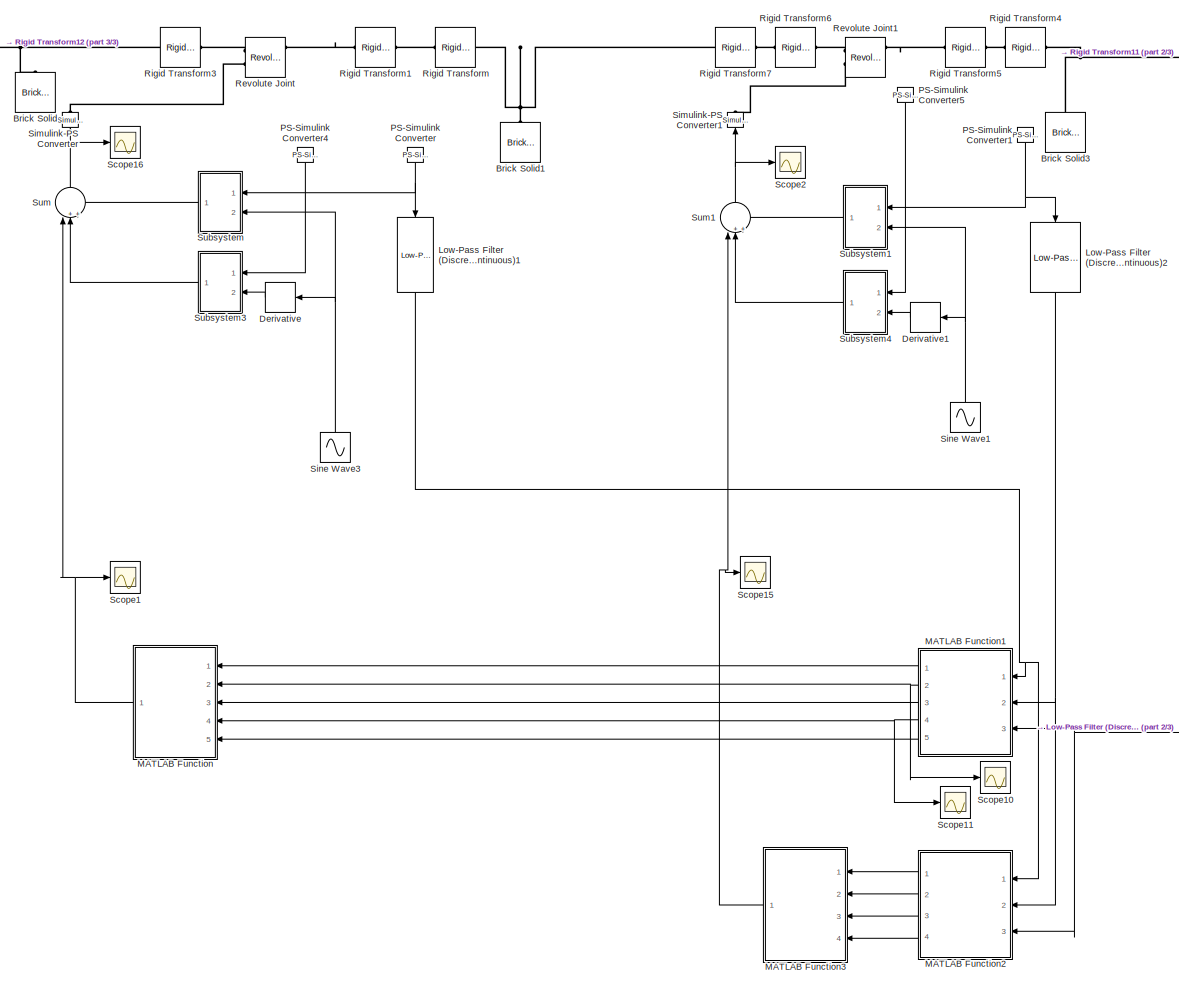
[diagram: arm1 - part 1/3, center side, full height]
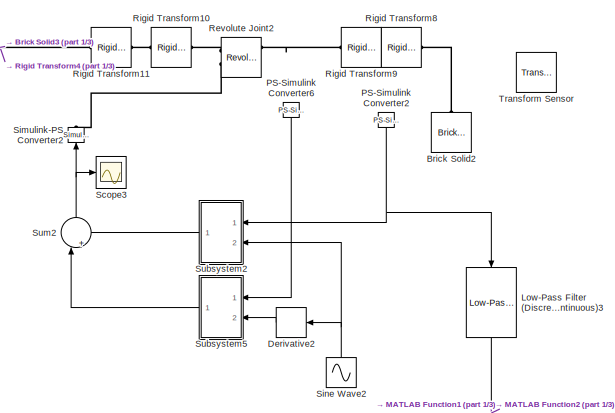
[diagram: arm1 - part 2/3, top right region]
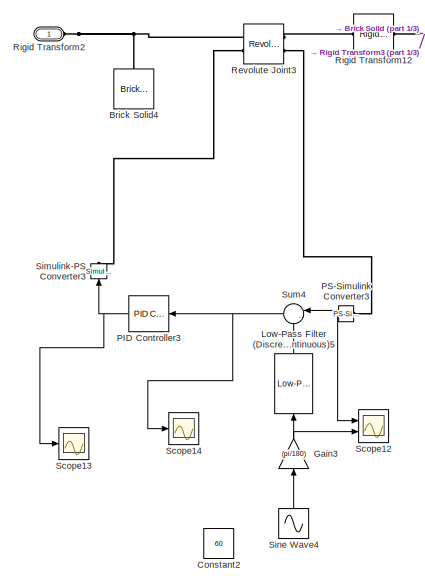
[diagram: arm1 - part 3/3, top left region]
BLOCK [SubSystem] arm1
  Commented = on
  Ports = [0, 0, 0, 0, 0, 1]
  RequestExecContextInheritance = off
BLOCK [Reference] arm1/Brick Solid  REF=sm_lib/Body Elements/Brick Solid
  NameLocation = right
  Ports = [0, 0, 0, 0, 0, 0, 1]
  SourceBlock = sm_lib/Body Elements/Brick Solid
  SourceProductBaseCode = MS
  SourceType = Brick Solid
BLOCK [Reference] arm1/Brick Solid1  REF=sm_lib/Body Elements/Brick Solid
  NameLocation = right
  Ports = [0, 0, 0, 0, 0, 0, 1]
  SourceBlock = sm_lib/Body Elements/Brick Solid
  SourceProductBaseCode = MS
  SourceType = Brick Solid
BLOCK [Reference] arm1/Brick Solid2  REF=sm_lib/Body Elements/Brick Solid
  NameLocation = right
  Ports = [0, 0, 0, 0, 0, 0, 1]
  SourceBlock = sm_lib/Body Elements/Brick Solid
  SourceProductBaseCode = MS
  SourceType = Brick Solid
BLOCK [Reference] arm1/Brick Solid3  REF=sm_lib/Body Elements/Brick Solid
  NameLocation = right
  Ports = [0, 0, 0, 0, 0, 0, 1]
  SourceBlock = sm_lib/Body Elements/Brick Solid
  SourceProductBaseCode = MS
  SourceType = Brick Solid
BLOCK [Reference] arm1/Brick Solid4  REF=sm_lib/Body Elements/Brick Solid
  NameLocation = right
  Ports = [0, 0, 0, 0, 0, 0, 1]
  SourceBlock = sm_lib/Body Elements/Brick Solid
  SourceProductBaseCode = MS
  SourceType = Brick Solid
BLOCK [Constant] arm1/Constant2
  Value = 60
BLOCK [Derivative] arm1/Derivative
  NameLocation = top
BLOCK [Derivative] arm1/Derivative1
  NameLocation = top
BLOCK [Derivative] arm1/Derivative2
  NameLocation = top
BLOCK [Gain] arm1/Gain3
  Gain = (pi/180)
  NameLocation = right
BLOCK [Reference] arm1/Low-Pass Filter (Discrete or Continuous)1  REF=eeGeneralControl/Low-Pass Filter
(Discrete or Continuous)
  NameLocation = left
  Ports = [1, 1]
  SourceBlock = eeGeneralControl/Low-Pass Filter\n(Discrete or Continuous)
  SourceProductBaseCode = PS
  SourceType = Low-Pass Filter (Discrete or Continuous)
BLOCK [Reference] arm1/Low-Pass Filter (Discrete or Continuous)2  REF=eeGeneralControl/Low-Pass Filter
(Discrete or Continuous)
  NameLocation = left
  Ports = [1, 1]
  SourceBlock = eeGeneralControl/Low-Pass Filter\n(Discrete or Continuous)
  SourceProductBaseCode = PS
  SourceType = Low-Pass Filter (Discrete or Continuous)
BLOCK [Reference] arm1/Low-Pass Filter (Discrete or Continuous)3  REF=eeGeneralControl/Low-Pass Filter
(Discrete or Continuous)
  NameLocation = left
  Ports = [1, 1]
  SourceBlock = eeGeneralControl/Low-Pass Filter\n(Discrete or Continuous)
  SourceProductBaseCode = PS
  SourceType = Low-Pass Filter (Discrete or Continuous)
BLOCK [Reference] arm1/Low-Pass Filter (Discrete or Continuous)5  REF=eeGeneralControl/Low-Pass Filter
(Discrete or Continuous)
  NameLocation = right
  Ports = [1, 1]
  SourceBlock = eeGeneralControl/Low-Pass Filter\n(Discrete or Continuous)
  SourceProductBaseCode = PS
  SourceType = Low-Pass Filter (Discrete or Continuous)
BLOCK [SubSystem] arm1/MATLAB Function
  ErrorFcn = Stateflow.Translate.translate
  NameLocation = top
  PermitHierarchicalResolution = ExplicitOnly
  Ports = [5, 1]
  RequestExecContextInheritance = off
  SFBlockType = MATLAB Function
  TreatAsAtomicUnit = on
BLOCK [Demux] arm1/MATLAB Function/ Demux 
  Outputs = 1
  Ports = [1, 1]
BLOCK [S-Function] arm1/MATLAB Function/ SFunction 
  EnableBusSupport = on
  FunctionName = sf_sfun
  PortCounts = [5 2]
  Ports = [5, 2]
  SFcnIsStateOwnerBlock = off
  SFunctionDeploymentMode = off
  Tag = Stateflow S-Function 6
BLOCK [Terminator] arm1/MATLAB Function/ Terminator 
BLOCK [Outport] arm1/MATLAB Function/T1
BLOCK [Inport] arm1/MATLAB Function/Theta1
BLOCK [Inport] arm1/MATLAB Function/alpa1
  Port = 2
BLOCK [Inport] arm1/MATLAB Function/alpa2
  Port = 4
BLOCK [Inport] arm1/MATLAB Function/r1
  Port = 3
BLOCK [Inport] arm1/MATLAB Function/r2
  Port = 5
BLOCK [SubSystem] arm1/MATLAB Function1
  ErrorFcn = Stateflow.Translate.translate
  NameLocation = top
  PermitHierarchicalResolution = ExplicitOnly
  Ports = [3, 5]
  RequestExecContextInheritance = off
  SFBlockType = MATLAB Function
  TreatAsAtomicUnit = on
BLOCK [Demux] arm1/MATLAB Function1/ Demux 
  Outputs = 1
  Ports = [1, 1]
BLOCK [S-Function] arm1/MATLAB Function1/ SFunction 
  EnableBusSupport = on
  FunctionName = sf_sfun
  PortCounts = [3 6]
  Ports = [3, 6]
  SFcnIsStateOwnerBlock = off
  SFunctionDeploymentMode = off
  Tag = Stateflow S-Function 7
BLOCK [Terminator] arm1/MATLAB Function1/ Terminator 
BLOCK [Inport] arm1/MATLAB Function1/Theta1
BLOCK [Outport] arm1/MATLAB Function1/Theta11
BLOCK [Inport] arm1/MATLAB Function1/Theta2
  Port = 2
BLOCK [Inport] arm1/MATLAB Function1/Theta3
  Port = 3
BLOCK [Outport] arm1/MATLAB Function1/alpa2
  Port = 4
BLOCK [Outport] arm1/MATLAB Function1/alpha1
  Port = 2
BLOCK [Outport] arm1/MATLAB Function1/r1
  Port = 3
BLOCK [Outport] arm1/MATLAB Function1/r2
  Port = 5
BLOCK [SubSystem] arm1/MATLAB Function2
  ErrorFcn = Stateflow.Translate.translate
  NameLocation = top
  PermitHierarchicalResolution = ExplicitOnly
  Ports = [3, 4]
  RequestExecContextInheritance = off
  SFBlockType = MATLAB Function
  TreatAsAtomicUnit = on
BLOCK [Demux] arm1/MATLAB Function2/ Demux 
  Outputs = 1
  Ports = [1, 1]
BLOCK [S-Function] arm1/MATLAB Function2/ SFunction 
  EnableBusSupport = on
  FunctionName = sf_sfun
  PortCounts = [3 5]
  Ports = [3, 5]
  SFcnIsStateOwnerBlock = off
  SFunctionDeploymentMode = off
  Tag = Stateflow S-Function 8
BLOCK [Terminator] arm1/MATLAB Function2/ Terminator 
BLOCK [Inport] arm1/MATLAB Function2/Theta1
BLOCK [Outport] arm1/MATLAB Function2/Theta11
BLOCK [Inport] arm1/MATLAB Function2/Theta2
  Port = 2
BLOCK [Outport] arm1/MATLAB Function2/Theta22
  Port = 2
BLOCK [Inport] arm1/MATLAB Function2/Theta3
  Port = 3
BLOCK [Outport] arm1/MATLAB Function2/alfa
  Port = 3
BLOCK [Outport] arm1/MATLAB Function2/r
  Port = 4
BLOCK [SubSystem] arm1/MATLAB Function3
  ErrorFcn = Stateflow.Translate.translate
  NameLocation = top
  PermitHierarchicalResolution = ExplicitOnly
  Ports = [4, 1]
  RequestExecContextInheritance = off
  SFBlockType = MATLAB Function
  TreatAsAtomicUnit = on
BLOCK [Demux] arm1/MATLAB Function3/ Demux 
  Outputs = 1
  Ports = [1, 1]
BLOCK [S-Function] arm1/MATLAB Function3/ SFunction 
  EnableBusSupport = on
  FunctionName = sf_sfun
  PortCounts = [4 2]
  Ports = [4, 2]
  SFcnIsStateOwnerBlock = off
  SFunctionDeploymentMode = off
  Tag = Stateflow S-Function 9
BLOCK [Terminator] arm1/MATLAB Function3/ Terminator 
BLOCK [Outport] arm1/MATLAB Function3/T1
BLOCK [Inport] arm1/MATLAB Function3/Theta1
BLOCK [Inport] arm1/MATLAB Function3/Theta2
  Port = 2
BLOCK [Inport] arm1/MATLAB Function3/alfa
  Port = 3
BLOCK [Inport] arm1/MATLAB Function3/r
  Port = 4
BLOCK [Reference] arm1/PID Controller3  REF=pid_lib/PID Controller
  NameLocation = top
  Ports = [1, 1]
  SourceBlock = pid_lib/PID Controller
  SourceProductBaseCode = SL
  SourceType = PID 1dof
BLOCK [Reference] arm1/PS-Simulink Converter  REF=nesl_utility/PS-Simulink
Converter
  NameLocation = left
  Ports = [0, 1, 0, 0, 0, 1]
  SourceBlock = nesl_utility/PS-Simulink\nConverter
  SourceProductBaseCode = SS
  SourceType = PS-Simulink\nConverter
BLOCK [Reference] arm1/PS-Simulink Converter1  REF=nesl_utility/PS-Simulink
Converter
  NameLocation = left
  Ports = [0, 1, 0, 0, 0, 1]
  SourceBlock = nesl_utility/PS-Simulink\nConverter
  SourceProductBaseCode = SS
  SourceType = PS-Simulink\nConverter
BLOCK [Reference] arm1/PS-Simulink Converter2  REF=nesl_utility/PS-Simulink
Converter
  NameLocation = left
  Ports = [0, 1, 0, 0, 0, 1]
  SourceBlock = nesl_utility/PS-Simulink\nConverter
  SourceProductBaseCode = SS
  SourceType = PS-Simulink\nConverter
BLOCK [Reference] arm1/PS-Simulink Converter3  REF=nesl_utility/PS-Simulink
Converter
  NameLocation = top
  Ports = [0, 1, 0, 0, 0, 1]
  SourceBlock = nesl_utility/PS-Simulink\nConverter
  SourceProductBaseCode = SS
  SourceType = PS-Simulink\nConverter
BLOCK [Reference] arm1/PS-Simulink Converter4  REF=nesl_utility/PS-Simulink
Converter
  NameLocation = left
  Ports = [0, 1, 0, 0, 0, 1]
  SourceBlock = nesl_utility/PS-Simulink\nConverter
  SourceProductBaseCode = SS
  SourceType = PS-Simulink\nConverter
BLOCK [Reference] arm1/PS-Simulink Converter5  REF=nesl_utility/PS-Simulink
Converter
  NameLocation = left
  Ports = [0, 1, 0, 0, 0, 1]
  SourceBlock = nesl_utility/PS-Simulink\nConverter
  SourceProductBaseCode = SS
  SourceType = PS-Simulink\nConverter
BLOCK [Reference] arm1/PS-Simulink Converter6  REF=nesl_utility/PS-Simulink
Converter
  NameLocation = left
  Ports = [0, 1, 0, 0, 0, 1]
  SourceBlock = nesl_utility/PS-Simulink\nConverter
  SourceProductBaseCode = SS
  SourceType = PS-Simulink\nConverter
BLOCK [Reference] arm1/Revolute Joint  REF=sm_lib/Joints/Revolute Joint
  Ports = [0, 0, 0, 0, 0, 2, 3]
  SourceBlock = sm_lib/Joints/Revolute Joint
  SourceProductBaseCode = MS
  SourceType = Revolute Joint
BLOCK [Reference] arm1/Revolute Joint1  REF=sm_lib/Joints/Revolute Joint
  Ports = [0, 0, 0, 0, 0, 2, 3]
  SourceBlock = sm_lib/Joints/Revolute Joint
  SourceProductBaseCode = MS
  SourceType = Revolute Joint
BLOCK [Reference] arm1/Revolute Joint2  REF=sm_lib/Joints/Revolute Joint
  Ports = [0, 0, 0, 0, 0, 2, 3]
  SourceBlock = sm_lib/Joints/Revolute Joint
  SourceProductBaseCode = MS
  SourceType = Revolute Joint
BLOCK [Reference] arm1/Revolute Joint3  REF=sm_lib/Joints/Revolute Joint
  Ports = [0, 0, 0, 0, 0, 2, 2]
  SourceBlock = sm_lib/Joints/Revolute Joint
  SourceProductBaseCode = MS
  SourceType = Revolute Joint
BLOCK [Reference] arm1/Rigid Transform  REF=sm_lib/Frames and
Transforms/Rigid
Transform
  Ports = [0, 0, 0, 0, 0, 1, 1]
  SourceBlock = sm_lib/Frames and\nTransforms/Rigid\nTransform
  SourceProductBaseCode = MS
  SourceType = Rigid\nTransform
BLOCK [Reference] arm1/Rigid Transform1  REF=sm_lib/Frames and
Transforms/Rigid
Transform
  Ports = [0, 0, 0, 0, 0, 1, 1]
  SourceBlock = sm_lib/Frames and\nTransforms/Rigid\nTransform
  SourceProductBaseCode = MS
  SourceType = Rigid\nTransform
BLOCK [Reference] arm1/Rigid Transform10  REF=sm_lib/Frames and
Transforms/Rigid
Transform
  Ports = [0, 0, 0, 0, 0, 1, 1]
  SourceBlock = sm_lib/Frames and\nTransforms/Rigid\nTransform
  SourceProductBaseCode = MS
  SourceType = Rigid\nTransform
BLOCK [Reference] arm1/Rigid Transform11  REF=sm_lib/Frames and
Transforms/Rigid
Transform
  Ports = [0, 0, 0, 0, 0, 1, 1]
  SourceBlock = sm_lib/Frames and\nTransforms/Rigid\nTransform
  SourceProductBaseCode = MS
  SourceType = Rigid\nTransform
BLOCK [Reference] arm1/Rigid Transform12  REF=sm_lib/Frames and
Transforms/Rigid
Transform
  Ports = [0, 0, 0, 0, 0, 1, 1]
  SourceBlock = sm_lib/Frames and\nTransforms/Rigid\nTransform
  SourceProductBaseCode = MS
  SourceType = Rigid\nTransform
BLOCK [PMIOPort] arm1/Rigid Transform2
  Side = Left
BLOCK [Reference] arm1/Rigid Transform3  REF=sm_lib/Frames and
Transforms/Rigid
Transform
  Ports = [0, 0, 0, 0, 0, 1, 1]
  SourceBlock = sm_lib/Frames and\nTransforms/Rigid\nTransform
  SourceProductBaseCode = MS
  SourceType = Rigid\nTransform
BLOCK [Reference] arm1/Rigid Transform4  REF=sm_lib/Frames and
Transforms/Rigid
Transform
  Ports = [0, 0, 0, 0, 0, 1, 1]
  SourceBlock = sm_lib/Frames and\nTransforms/Rigid\nTransform
  SourceProductBaseCode = MS
  SourceType = Rigid\nTransform
BLOCK [Reference] arm1/Rigid Transform5  REF=sm_lib/Frames and
Transforms/Rigid
Transform
  Ports = [0, 0, 0, 0, 0, 1, 1]
  SourceBlock = sm_lib/Frames and\nTransforms/Rigid\nTransform
  SourceProductBaseCode = MS
  SourceType = Rigid\nTransform
BLOCK [Reference] arm1/Rigid Transform6  REF=sm_lib/Frames and
Transforms/Rigid
Transform
  Ports = [0, 0, 0, 0, 0, 1, 1]
  SourceBlock = sm_lib/Frames and\nTransforms/Rigid\nTransform
  SourceProductBaseCode = MS
  SourceType = Rigid\nTransform
BLOCK [Reference] arm1/Rigid Transform7  REF=sm_lib/Frames and
Transforms/Rigid
Transform
  Ports = [0, 0, 0, 0, 0, 1, 1]
  SourceBlock = sm_lib/Frames and\nTransforms/Rigid\nTransform
  SourceProductBaseCode = MS
  SourceType = Rigid\nTransform
BLOCK [Reference] arm1/Rigid Transform8  REF=sm_lib/Frames and
Transforms/Rigid
Transform
  Ports = [0, 0, 0, 0, 0, 1, 1]
  SourceBlock = sm_lib/Frames and\nTransforms/Rigid\nTransform
  SourceProductBaseCode = MS
  SourceType = Rigid\nTransform
BLOCK [Reference] arm1/Rigid Transform9  REF=sm_lib/Frames and
Transforms/Rigid
Transform
  Ports = [0, 0, 0, 0, 0, 1, 1]
  SourceBlock = sm_lib/Frames and\nTransforms/Rigid\nTransform
  SourceProductBaseCode = MS
  SourceType = Rigid\nTransform
BLOCK [Scope] arm1/Scope1
  Floating = off
  NumInputPorts = 1
  Ports = [1]
  ScopeSpecificationString = Simulink.scopes.TimeScopeBlockCfg('CurrentConfiguration', extmgr.ConfigurationSet(extmgr.Configuration('Core','General UI',true),extmgr.Configuration('Core','Source UI',true),extmgr.Configuration('Sources','WiredSimulink',true,'DataLoggingVariableName','ScopeData1'),extmgr.Configuration('Visuals','Time Domain',true,'SerializedDisplays',{struct('MinYLimReal','-97.78907','MaxYLimReal','122.15234','Y...<+1461ch>
BLOCK [Scope] arm1/Scope10
  Floating = off
  NumInputPorts = 1
  Ports = [1]
  ScopeSpecificationString = Simulink.scopes.TimeScopeBlockCfg('CurrentConfiguration', extmgr.ConfigurationSet(extmgr.Configuration('Core','General UI',true),extmgr.Configuration('Core','Source UI',true),extmgr.Configuration('Sources','WiredSimulink',true,'DataLoggingVariableName','ScopeData3'),extmgr.Configuration('Visuals','Time Domain',true,'SerializedDisplays',{struct('MinYLimReal','-0.08716','MaxYLimReal','0.78411','YLab...<+1413ch>
BLOCK [Scope] arm1/Scope11
  Floating = off
  NumInputPorts = 1
  Ports = [1]
  ScopeSpecificationString = Simulink.scopes.TimeScopeBlockCfg('CurrentConfiguration', extmgr.ConfigurationSet(extmgr.Configuration('Core','General UI',true),extmgr.Configuration('Core','Source UI',true),extmgr.Configuration('Sources','WiredSimulink',true,'DataLoggingVariableName','ScopeData4'),extmgr.Configuration('Visuals','Time Domain',true,'SerializedDisplays',{struct('MinYLimReal','-0.10489','MaxYLimReal','0.94401','YLab...<+1412ch>
BLOCK [Scope] arm1/Scope12
  Floating = off
  NumInputPorts = 2
  Ports = [2]
  ScopeSpecificationString = Simulink.scopes.TimeScopeBlockCfg('CurrentConfiguration', extmgr.ConfigurationSet(extmgr.Configuration('Core','General UI',true),extmgr.Configuration('Core','Source UI',true),extmgr.Configuration('Sources','WiredSimulink',true,'DataLoggingVariableName','ScopeData2'),extmgr.Configuration('Visuals','Time Domain',true,'SerializedDisplays',{struct('MinYLimReal','-2.43164','MaxYLimReal','2.24908','YLab...<+1470ch>
BLOCK [Scope] arm1/Scope13
  Floating = off
  NumInputPorts = 1
  Ports = [1]
  ScopeSpecificationString = Simulink.scopes.TimeScopeBlockCfg('CurrentConfiguration', extmgr.ConfigurationSet(extmgr.Configuration('Core','General UI',true),extmgr.Configuration('Core','Source UI',true),extmgr.Configuration('Sources','WiredSimulink',true,'DataLoggingVariableName','ScopeData3'),extmgr.Configuration('Visuals','Time Domain',true,'SerializedDisplays',{struct('MinYLimReal','-105.42906','MaxYLimReal','1824.76918',...<+1442ch>
BLOCK [Scope] arm1/Scope14
  Floating = off
  NumInputPorts = 1
  Ports = [1]
  ScopeSpecificationString = Simulink.scopes.TimeScopeBlockCfg('CurrentConfiguration', extmgr.ConfigurationSet(extmgr.Configuration('Core','General UI',true),extmgr.Configuration('Core','Source UI',true),extmgr.Configuration('Sources','WiredSimulink',true,'DataLoggingVariableName','ScopeData4'),extmgr.Configuration('Visuals','Time Domain',true,'SerializedDisplays',{struct('MinYLimReal','-0.71157','MaxYLimReal','0.46619','YLab...<+1396ch>
BLOCK [Scope] arm1/Scope15
  Floating = off
  NumInputPorts = 1
  Ports = [1]
  ScopeSpecificationString = Simulink.scopes.TimeScopeBlockCfg('CurrentConfiguration', extmgr.ConfigurationSet(extmgr.Configuration('Core','General UI',true),extmgr.Configuration('Core','Source UI',true),extmgr.Configuration('Sources','WiredSimulink',true,'DataLoggingVariableName','ScopeData5'),extmgr.Configuration('Visuals','Time Domain',true,'SerializedDisplays',{struct('MinYLimReal','-84.16932','MaxYLimReal','58.59398','YL...<+1431ch>
BLOCK [Scope] arm1/Scope16
  Floating = off
  NumInputPorts = 1
  Ports = [1]
  ScopeSpecificationString = Simulink.scopes.TimeScopeBlockCfg('CurrentConfiguration', extmgr.ConfigurationSet(extmgr.Configuration('Core','General UI',true),extmgr.Configuration('Core','Source UI',true),extmgr.Configuration('Sources','WiredSimulink',true,'DataLoggingVariableName','ScopeData2'),extmgr.Configuration('Visuals','Time Domain',true,'SerializedDisplays',{struct('MinYLimReal','-55.10704','MaxYLimReal','94.41094','YL...<+1416ch>
BLOCK [Scope] arm1/Scope2
  Floating = off
  NumInputPorts = 1
  Ports = [1]
  ScopeSpecificationString = Simulink.scopes.TimeScopeBlockCfg('CurrentConfiguration', extmgr.ConfigurationSet(extmgr.Configuration('Core','General UI',true),extmgr.Configuration('Core','Source UI',true),extmgr.Configuration('Sources','WiredSimulink',true,'DataLoggingVariableName','ScopeData1'),extmgr.Configuration('Visuals','Time Domain',true,'SerializedDisplays',{struct('MinYLimReal','-19.29694','MaxYLimReal','21.51342','YL...<+1417ch>
BLOCK [Scope] arm1/Scope3
  Floating = off
  NumInputPorts = 1
  Ports = [1]
  ScopeSpecificationString = Simulink.scopes.TimeScopeBlockCfg('CurrentConfiguration', extmgr.ConfigurationSet(extmgr.Configuration('Core','General UI',true),extmgr.Configuration('Core','Source UI',true),extmgr.Configuration('Sources','WiredSimulink',true,'DataLoggingVariableName','ScopeData2'),extmgr.Configuration('Visuals','Time Domain',true,'SerializedDisplays',{struct('MinYLimReal','-46.30671','MaxYLimReal','146.9352','YL...<+1417ch>
BLOCK [Reference] arm1/Simulink-PS Converter  REF=nesl_utility/Simulink-PS
Converter
  NameLocation = right
  Ports = [1, 0, 0, 0, 0, 0, 1]
  SourceBlock = nesl_utility/Simulink-PS\nConverter
  SourceProductBaseCode = SS
  SourceType = Simulink-PS\nConverter
BLOCK [Reference] arm1/Simulink-PS Converter1  REF=nesl_utility/Simulink-PS
Converter
  NameLocation = right
  Ports = [1, 0, 0, 0, 0, 0, 1]
  SourceBlock = nesl_utility/Simulink-PS\nConverter
  SourceProductBaseCode = SS
  SourceType = Simulink-PS\nConverter
BLOCK [Reference] arm1/Simulink-PS Converter2  REF=nesl_utility/Simulink-PS
Converter
  NameLocation = right
  Ports = [1, 0, 0, 0, 0, 0, 1]
  SourceBlock = nesl_utility/Simulink-PS\nConverter
  SourceProductBaseCode = SS
  SourceType = Simulink-PS\nConverter
BLOCK [Reference] arm1/Simulink-PS Converter3  REF=nesl_utility/Simulink-PS
Converter
  NameLocation = right
  Ports = [1, 0, 0, 0, 0, 0, 1]
  SourceBlock = nesl_utility/Simulink-PS\nConverter
  SourceProductBaseCode = SS
  SourceType = Simulink-PS\nConverter
BLOCK [Sin] arm1/Sine Wave1
  Amplitude = 60
  Frequency = .1*6*pi
  NameLocation = right
  Phase = 10
  Ports = [0, 1]
  SampleTime = 0
BLOCK [Sin] arm1/Sine Wave2
  Amplitude = 90
  Frequency = .1*3*pi
  NameLocation = right
  Phase = 60
  Ports = [0, 1]
  SampleTime = 0
BLOCK [Sin] arm1/Sine Wave3
  Amplitude = 60
  Frequency = .1*2*pi
  NameLocation = right
  Ports = [0, 1]
  SampleTime = 0
BLOCK [Sin] arm1/Sine Wave4
  Amplitude = 20
  Frequency = .1*4*pi
  NameLocation = right
  Phase = 10
  Ports = [0, 1]
  SampleTime = 0
BLOCK [SubSystem] arm1/Subsystem
  NameLocation = top
  Ports = [2, 1]
  RequestExecContextInheritance = off
BLOCK [Gain] arm1/Subsystem/Gain
  Gain = (pi/180)
  NameLocation = right
BLOCK [Inport] arm1/Subsystem/In1
BLOCK [Inport] arm1/Subsystem/In2
  Port = 2
BLOCK [Reference] arm1/Subsystem/Low-Pass Filter (Discrete or Continuous)1  REF=eeGeneralControl/Low-Pass Filter
(Discrete or Continuous)
  NameLocation = right
  Ports = [1, 1]
  SourceBlock = eeGeneralControl/Low-Pass Filter\n(Discrete or Continuous)
  SourceProductBaseCode = PS
  SourceType = Low-Pass Filter (Discrete or Continuous)
BLOCK [Outport] arm1/Subsystem/Out1
BLOCK [Reference] arm1/Subsystem/PID Controller4  REF=pid_lib/PID Controller
  NameLocation = top
  Ports = [1, 1]
  SourceBlock = pid_lib/PID Controller
  SourceProductBaseCode = SL
  SourceType = PID 1dof
BLOCK [Saturate] arm1/Subsystem/Saturation
  LowerLimit = -50
  NameLocation = top
  UpperLimit = 50
BLOCK [Scope] arm1/Subsystem/Scope18
  Floating = off
  NumInputPorts = 1
  Ports = [1]
  ScopeSpecificationString = Simulink.scopes.TimeScopeBlockCfg('CurrentConfiguration', extmgr.ConfigurationSet(extmgr.Configuration('Core','General UI',true),extmgr.Configuration('Core','Source UI',true),extmgr.Configuration('Sources','WiredSimulink',true,'DataLoggingVariableName','ScopeData4'),extmgr.Configuration('Visuals','Time Domain',true,'SerializedDisplays',{struct('MinYLimReal','-28.70324','MaxYLimReal','215.04775','Y...<+1421ch>
BLOCK [Scope] arm1/Subsystem/Scope2
  Floating = off
  NumInputPorts = 2
  Ports = [2]
BLOCK [Scope] arm1/Subsystem/Scope9
  Floating = off
  NumInputPorts = 1
  Ports = [1]
BLOCK [Sum] arm1/Subsystem/Sum6
  Inputs = |-+
  NameLocation = top
  Ports = [2, 1]
BLOCK [SubSystem] arm1/Subsystem1
  NameLocation = top
  Ports = [2, 1]
  RequestExecContextInheritance = off
BLOCK [Gain] arm1/Subsystem1/Gain1
  Gain = (pi/180)
  NameLocation = right
BLOCK [Inport] arm1/Subsystem1/In1
BLOCK [Inport] arm1/Subsystem1/In2
  Port = 2
BLOCK [Reference] arm1/Subsystem1/Low-Pass Filter (Discrete or Continuous)7  REF=eeGeneralControl/Low-Pass Filter
(Discrete or Continuous)
  NameLocation = right
  Ports = [1, 1]
  SourceBlock = eeGeneralControl/Low-Pass Filter\n(Discrete or Continuous)
  SourceProductBaseCode = PS
  SourceType = Low-Pass Filter (Discrete or Continuous)
BLOCK [Outport] arm1/Subsystem1/Out1
BLOCK [Reference] arm1/Subsystem1/PID Controller1  REF=pid_lib/PID Controller
  NameLocation = top
  Ports = [1, 1]
  SourceBlock = pid_lib/PID Controller
  SourceProductBaseCode = SL
  SourceType = PID 1dof
BLOCK [Saturate] arm1/Subsystem1/Saturation1
  LowerLimit = -50
  NameLocation = top
  UpperLimit = 50
BLOCK [Scope] arm1/Subsystem1/Scope17
  Floating = off
  NumInputPorts = 1
  Ports = [1]
  ScopeSpecificationString = Simulink.scopes.TimeScopeBlockCfg('CurrentConfiguration', extmgr.ConfigurationSet(extmgr.Configuration('Core','General UI',true),extmgr.Configuration('Core','Source UI',true),extmgr.Configuration('Sources','WiredSimulink',true,'DataLoggingVariableName','ScopeData3'),extmgr.Configuration('Visuals','Time Domain',true,'SerializedDisplays',{struct('MinYLimReal','-50.00000','MaxYLimReal','215.04775','Y...<+1428ch>
BLOCK [Scope] arm1/Subsystem1/Scope3
  Floating = off
  NumInputPorts = 2
  Ports = [2]
BLOCK [Scope] arm1/Subsystem1/Scope4
  Floating = off
  NumInputPorts = 1
  Ports = [1]
BLOCK [Scope] arm1/Subsystem1/Scope5
  Floating = off
  NumInputPorts = 1
  Ports = [1]
BLOCK [Sum] arm1/Subsystem1/Sum1
  Inputs = |-+
  NameLocation = top
  Ports = [2, 1]
BLOCK [SubSystem] arm1/Subsystem2
  NameLocation = top
  Ports = [2, 1]
  RequestExecContextInheritance = off
BLOCK [Gain] arm1/Subsystem2/Gain2
  Gain = (pi/180)
  NameLocation = right
BLOCK [Inport] arm1/Subsystem2/In1
BLOCK [Inport] arm1/Subsystem2/In2
  Port = 2
BLOCK [Reference] arm1/Subsystem2/PID Controller2  REF=pid_lib/PID Controller
  NameLocation = top
  Ports = [1, 1]
  SourceBlock = pid_lib/PID Controller
  SourceProductBaseCode = SL
  SourceType = PID 1dof
BLOCK [Scope] arm1/Subsystem2/Scope6
  Floating = off
  NumInputPorts = 2
  Ports = [2]
  ScopeSpecificationString = Simulink.scopes.TimeScopeBlockCfg('CurrentConfiguration', extmgr.ConfigurationSet(extmgr.Configuration('Core','General UI',true),extmgr.Configuration('Core','Source UI',true),extmgr.Configuration('Sources','WiredSimulink',true,'DataLoggingVariableName','ScopeData6'),extmgr.Configuration('Visuals','Time Domain',true,'SerializedDisplays',{struct('MinYLimReal','-1.98091','MaxYLimReal','2.09791','YLab...<+1401ch>
BLOCK [Scope] arm1/Subsystem2/Scope7
  Floating = off
  NumInputPorts = 1
  Ports = [1]
BLOCK [Scope] arm1/Subsystem2/Scope8
  Floating = off
  NumInputPorts = 1
  Ports = [1]
  ScopeSpecificationString = Simulink.scopes.TimeScopeBlockCfg('CurrentConfiguration', extmgr.ConfigurationSet(extmgr.Configuration('Core','General UI',true),extmgr.Configuration('Core','Source UI',true),extmgr.Configuration('Sources','WiredSimulink',true,'DataLoggingVariableName','ScopeData8'),extmgr.Configuration('Visuals','Time Domain',true,'SerializedDisplays',{struct('MinYLimReal','-1.07676','MaxYLimReal','3.22756','YLab...<+1394ch>
BLOCK [Sum] arm1/Subsystem2/Sum2
  Inputs = |-+
  NameLocation = top
  Ports = [2, 1]
BLOCK [Outport] arm1/Subsystem2/y
BLOCK [SubSystem] arm1/Subsystem3
  NameLocation = top
  Ports = [2, 1]
  RequestExecContextInheritance = off
BLOCK [Gain] arm1/Subsystem3/Gain
  Gain = (pi/180)
  NameLocation = right
BLOCK [Inport] arm1/Subsystem3/In1
BLOCK [Inport] arm1/Subsystem3/In2
  Port = 2
BLOCK [Reference] arm1/Subsystem3/Low-Pass Filter (Discrete or Continuous)1  REF=eeGeneralControl/Low-Pass Filter
(Discrete or Continuous)
  NameLocation = right
  Ports = [1, 1]
  SourceBlock = eeGeneralControl/Low-Pass Filter\n(Discrete or Continuous)
  SourceProductBaseCode = PS
  SourceType = Low-Pass Filter (Discrete or Continuous)
BLOCK [Outport] arm1/Subsystem3/Out1
BLOCK [Reference] arm1/Subsystem3/PID Controller4  REF=pid_lib/PID Controller
  NameLocation = top
  Ports = [1, 1]
  SourceBlock = pid_lib/PID Controller
  SourceProductBaseCode = SL
  SourceType = PID 1dof
BLOCK [Saturate] arm1/Subsystem3/Saturation
  LowerLimit = -50
  NameLocation = top
  UpperLimit = 50
BLOCK [Scope] arm1/Subsystem3/Scope18
  Floating = off
  NumInputPorts = 1
  Ports = [1]
  ScopeSpecificationString = Simulink.scopes.TimeScopeBlockCfg('CurrentConfiguration', extmgr.ConfigurationSet(extmgr.Configuration('Core','General UI',true),extmgr.Configuration('Core','Source UI',true),extmgr.Configuration('Sources','WiredSimulink',true,'DataLoggingVariableName','ScopeData4'),extmgr.Configuration('Visuals','Time Domain',true,'SerializedDisplays',{struct('MinYLimReal','-1.82605','MaxYLimReal','1.16903','YLab...<+1411ch>
BLOCK [Scope] arm1/Subsystem3/Scope2
  Floating = off
  NumInputPorts = 2
  Ports = [2]
BLOCK [Scope] arm1/Subsystem3/Scope9
  Floating = off
  NumInputPorts = 1
  Ports = [1]
BLOCK [Sum] arm1/Subsystem3/Sum6
  Inputs = |-+
  NameLocation = top
  Ports = [2, 1]
BLOCK [SubSystem] arm1/Subsystem4
  NameLocation = top
  Ports = [2, 1]
  RequestExecContextInheritance = off
BLOCK [Gain] arm1/Subsystem4/Gain1
  Gain = (pi/180)
  NameLocation = right
BLOCK [Inport] arm1/Subsystem4/In1
BLOCK [Inport] arm1/Subsystem4/In2
  Port = 2
BLOCK [Reference] arm1/Subsystem4/Low-Pass Filter (Discrete or Continuous)7  REF=eeGeneralControl/Low-Pass Filter
(Discrete or Continuous)
  NameLocation = right
  Ports = [1, 1]
  SourceBlock = eeGeneralControl/Low-Pass Filter\n(Discrete or Continuous)
  SourceProductBaseCode = PS
  SourceType = Low-Pass Filter (Discrete or Continuous)
BLOCK [Outport] arm1/Subsystem4/Out1
BLOCK [Reference] arm1/Subsystem4/PID Controller1  REF=pid_lib/PID Controller
  NameLocation = top
  Ports = [1, 1]
  SourceBlock = pid_lib/PID Controller
  SourceProductBaseCode = SL
  SourceType = PID 1dof
BLOCK [Saturate] arm1/Subsystem4/Saturation1
  LowerLimit = -50
  NameLocation = top
  UpperLimit = 50
BLOCK [Scope] arm1/Subsystem4/Scope17
  Floating = off
  NumInputPorts = 1
  Ports = [1]
  ScopeSpecificationString = Simulink.scopes.TimeScopeBlockCfg('CurrentConfiguration', extmgr.ConfigurationSet(extmgr.Configuration('Core','General UI',true),extmgr.Configuration('Core','Source UI',true),extmgr.Configuration('Sources','WiredSimulink',true,'DataLoggingVariableName','ScopeData3'),extmgr.Configuration('Visuals','Time Domain',true,'SerializedDisplays',{struct('MinYLimReal','-28.70324','MaxYLimReal','215.04775','Y...<+1428ch>
BLOCK [Scope] arm1/Subsystem4/Scope3
  Floating = off
  NumInputPorts = 2
  Ports = [2]
BLOCK [Scope] arm1/Subsystem4/Scope4
  Floating = off
  NumInputPorts = 1
  Ports = [1]
BLOCK [Scope] arm1/Subsystem4/Scope5
  Floating = off
  NumInputPorts = 1
  Ports = [1]
BLOCK [Sum] arm1/Subsystem4/Sum1
  Inputs = |-+
  NameLocation = top
  Ports = [2, 1]
BLOCK [SubSystem] arm1/Subsystem5
  NameLocation = top
  Ports = [2, 1]
  RequestExecContextInheritance = off
BLOCK [Gain] arm1/Subsystem5/Gain2
  Gain = (pi/180)
  NameLocation = right
BLOCK [Inport] arm1/Subsystem5/In1
BLOCK [Inport] arm1/Subsystem5/In2
  Port = 2
BLOCK [Reference] arm1/Subsystem5/PID Controller2  REF=pid_lib/PID Controller
  NameLocation = top
  Ports = [1, 1]
  SourceBlock = pid_lib/PID Controller
  SourceProductBaseCode = SL
  SourceType = PID 1dof
BLOCK [Scope] arm1/Subsystem5/Scope6
  Floating = off
  NumInputPorts = 2
  Ports = [2]
  ScopeSpecificationString = Simulink.scopes.TimeScopeBlockCfg('CurrentConfiguration', extmgr.ConfigurationSet(extmgr.Configuration('Core','General UI',true),extmgr.Configuration('Core','Source UI',true),extmgr.Configuration('Sources','WiredSimulink',true,'DataLoggingVariableName','ScopeData6'),extmgr.Configuration('Visuals','Time Domain',true,'SerializedDisplays',{struct('MinYLimReal','-12.56105','MaxYLimReal','6.93346','YLa...<+1405ch>
BLOCK [Scope] arm1/Subsystem5/Scope7
  Floating = off
  NumInputPorts = 1
  Ports = [1]
BLOCK [Scope] arm1/Subsystem5/Scope8
  Floating = off
  NumInputPorts = 1
  Ports = [1]
  ScopeSpecificationString = Simulink.scopes.TimeScopeBlockCfg('CurrentConfiguration', extmgr.ConfigurationSet(extmgr.Configuration('Core','General UI',true),extmgr.Configuration('Core','Source UI',true),extmgr.Configuration('Sources','WiredSimulink',true,'DataLoggingVariableName','ScopeData8'),extmgr.Configuration('Visuals','Time Domain',true,'SerializedDisplays',{struct('MinYLimReal','-7.44498','MaxYLimReal','6.29881','YLab...<+1394ch>
BLOCK [Sum] arm1/Subsystem5/Sum2
  Inputs = |-+
  NameLocation = top
  Ports = [2, 1]
BLOCK [Outport] arm1/Subsystem5/y
BLOCK [Sum] arm1/Sum
  Inputs = |+++
  NameLocation = right
  Ports = [3, 1]
BLOCK [Sum] arm1/Sum1
  Inputs = |+++
  NameLocation = right
  Ports = [3, 1]
BLOCK [Sum] arm1/Sum2
  Inputs = |++
  NameLocation = right
  Ports = [2, 1]
BLOCK [Sum] arm1/Sum4
  Inputs = |-+
  NameLocation = top
  Ports = [2, 1]
BLOCK [Reference] arm1/Transform Sensor  REF=sm_lib/Frames and
Transforms/Transform
Sensor
  Ports = [0, 0, 0, 0, 0, 1, 1]
  SourceBlock = sm_lib/Frames and\nTransforms/Transform\nSensor
  SourceProductBaseCode = MS
  SourceType = Transform\nSensor
BLOCK [SubSystem] rover
  Commented = on
  Ports = []
  RequestExecContextInheritance = off
BLOCK [M-S-Function] rover/Keyboard 1
  Commented = on
  FunctionName = sfun_keyboard_input_v1_2b
  Ports = [0, 2]
BLOCK [Display] rover/Last Key
  Commented = on
  Decimation = 1
  Ports = [1]
BLOCK [SubSystem] rover/MARS_ROVER_CONTROLLER
  Ports = [8, 6]
  RequestExecContextInheritance = off
BLOCK [Outport] rover/MARS_ROVER_CONTROLLER/LEFT_BACK_MOTOR
  Port = 5
BLOCK [Inport] rover/MARS_ROVER_CONTROLLER/LEFT_BACK_MOTOR_FEEDBACK
  Port = 6
BLOCK [Outport] rover/MARS_ROVER_CONTROLLER/LEFT_FRONT_MOTOR
BLOCK [Inport] rover/MARS_ROVER_CONTROLLER/LEFT_FRONT_MOTOR_FEEDBACK
  Port = 2
BLOCK [Outport] rover/MARS_ROVER_CONTROLLER/LEFT_MIDDLE_MOTOR
  Port = 3
BLOCK [Inport] rover/MARS_ROVER_CONTROLLER/LEFT_MIDDLE_MOTOR_FEEDBACK
  Port = 4
BLOCK [Inport] rover/MARS_ROVER_CONTROLLER/REF_speed
BLOCK [Outport] rover/MARS_ROVER_CONTROLLER/RIGHT_BACK_MOTOR
  Port = 6
BLOCK [Inport] rover/MARS_ROVER_CONTROLLER/RIGHT_BACK_MOTOR_FEEDBACK
  Port = 7
BLOCK [Outport] rover/MARS_ROVER_CONTROLLER/RIGHT_FRONT_MOTOR
  Port = 2
BLOCK [Inport] rover/MARS_ROVER_CONTROLLER/RIGHT_FRONT_MOTOR_FEEDBACK
  Port = 3
BLOCK [Outport] rover/MARS_ROVER_CONTROLLER/RIGHT_MIDDLE_MOTOR
  Port = 4
BLOCK [Inport] rover/MARS_ROVER_CONTROLLER/RIGHT_MIDDLE_MOTOR_FEEDBACK
  Port = 5
BLOCK [Inport] rover/MARS_ROVER_CONTROLLER/STEER
  Port = 8
BLOCK [SubSystem] rover/MARS_ROVER_CONTROLLER/Subsystem
  Ports = [4, 2]
  RequestExecContextInheritance = off
BLOCK [Gain] rover/MARS_ROVER_CONTROLLER/Subsystem/Gain
  Gain = -1
  NameLocation = top
BLOCK [Gain] rover/MARS_ROVER_CONTROLLER/Subsystem/Gain3
  Gain = -1
BLOCK [Outport] rover/MARS_ROVER_CONTROLLER/Subsystem/LEFT_FRONT_MOTOR
BLOCK [Inport] rover/MARS_ROVER_CONTROLLER/Subsystem/LEFT_FRONT_MOTOR_FEEDBACK
  Port = 2
BLOCK [Reference] rover/MARS_ROVER_CONTROLLER/Subsystem/PID Controller  REF=pid_lib/PID Controller
  NameLocation = top
  Ports = [1, 1]
  SourceBlock = pid_lib/PID Controller
  SourceProductBaseCode = SL
  SourceType = PID 1dof
BLOCK [Reference] rover/MARS_ROVER_CONTROLLER/Subsystem/PID Controller1  REF=pid_lib/PID Controller
  Ports = [1, 1]
  SourceBlock = pid_lib/PID Controller
  SourceProductBaseCode = SL
  SourceType = PID 1dof
BLOCK [Reference] rover/MARS_ROVER_CONTROLLER/Subsystem/PID Controller5  REF=pid_lib/PID Controller
  NameLocation = right
  Ports = [1, 1]
  SourceBlock = pid_lib/PID Controller
  SourceProductBaseCode = SL
  SourceType = PID 1dof
BLOCK [Inport] rover/MARS_ROVER_CONTROLLER/Subsystem/REF_speed
BLOCK [Outport] rover/MARS_ROVER_CONTROLLER/Subsystem/RIGHT_FRONT_MOTOR
  Port = 2
BLOCK [Inport] rover/MARS_ROVER_CONTROLLER/Subsystem/RIGHT_FRONT_MOTOR_FEEDBACK
  Port = 3
BLOCK [Inport] rover/MARS_ROVER_CONTROLLER/Subsystem/STEER
  Port = 4
BLOCK [Sum] rover/MARS_ROVER_CONTROLLER/Subsystem/Sum
  Inputs = |+-
  NameLocation = top
  Ports = [2, 1]
BLOCK [Sum] rover/MARS_ROVER_CONTROLLER/Subsystem/Sum1
  Inputs = |+-
  Ports = [2, 1]
BLOCK [Sum] rover/MARS_ROVER_CONTROLLER/Subsystem/Sum12
  Inputs = |++-
  NameLocation = right
  Ports = [3, 1]
BLOCK [Sum] rover/MARS_ROVER_CONTROLLER/Subsystem/Sum6
  Inputs = |++
  Ports = [2, 1]
BLOCK [Sum] rover/MARS_ROVER_CONTROLLER/Subsystem/Sum7
  Inputs = |+-
  NameLocation = top
  Ports = [2, 1]
BLOCK [SubSystem] rover/MARS_ROVER_CONTROLLER/Subsystem1
  Ports = [4, 2]
  RequestExecContextInheritance = off
BLOCK [Gain] rover/MARS_ROVER_CONTROLLER/Subsystem1/Gain
  Gain = -1
  NameLocation = top
BLOCK [Gain] rover/MARS_ROVER_CONTROLLER/Subsystem1/Gain3
  Gain = -1
BLOCK [Outport] rover/MARS_ROVER_CONTROLLER/Subsystem1/LEFT_MIDDLE_MOTOR
BLOCK [Inport] rover/MARS_ROVER_CONTROLLER/Subsystem1/LEFT_MIDDLE_MOTOR_FEEDBACK
  Port = 2
BLOCK [Reference] rover/MARS_ROVER_CONTROLLER/Subsystem1/PID Controller  REF=pid_lib/PID Controller
  NameLocation = top
  Ports = [1, 1]
  SourceBlock = pid_lib/PID Controller
  SourceProductBaseCode = SL
  SourceType = PID 1dof
BLOCK [Reference] rover/MARS_ROVER_CONTROLLER/Subsystem1/PID Controller1  REF=pid_lib/PID Controller
  Ports = [1, 1]
  SourceBlock = pid_lib/PID Controller
  SourceProductBaseCode = SL
  SourceType = PID 1dof
BLOCK [Reference] rover/MARS_ROVER_CONTROLLER/Subsystem1/PID Controller5  REF=pid_lib/PID Controller
  NameLocation = right
  Ports = [1, 1]
  SourceBlock = pid_lib/PID Controller
  SourceProductBaseCode = SL
  SourceType = PID 1dof
BLOCK [Inport] rover/MARS_ROVER_CONTROLLER/Subsystem1/REF_speed
BLOCK [Outport] rover/MARS_ROVER_CONTROLLER/Subsystem1/RIGHT_MIDDLE_MOTOR
  Port = 2
BLOCK [Inport] rover/MARS_ROVER_CONTROLLER/Subsystem1/RIGHT_MIDDLE_MOTOR_FEEDBACK
  Port = 3
BLOCK [Inport] rover/MARS_ROVER_CONTROLLER/Subsystem1/STEER
  Port = 4
BLOCK [Sum] rover/MARS_ROVER_CONTROLLER/Subsystem1/Sum
  Inputs = |+-
  NameLocation = top
  Ports = [2, 1]
BLOCK [Sum] rover/MARS_ROVER_CONTROLLER/Subsystem1/Sum1
  Inputs = |+-
  Ports = [2, 1]
BLOCK [Sum] rover/MARS_ROVER_CONTROLLER/Subsystem1/Sum12
  Inputs = |++-
  NameLocation = right
  Ports = [3, 1]
BLOCK [Sum] rover/MARS_ROVER_CONTROLLER/Subsystem1/Sum6
  Inputs = |++
  Ports = [2, 1]
BLOCK [Sum] rover/MARS_ROVER_CONTROLLER/Subsystem1/Sum7
  Inputs = |+-
  NameLocation = top
  Ports = [2, 1]
BLOCK [SubSystem] rover/MARS_ROVER_CONTROLLER/Subsystem2
  Ports = [4, 2]
  RequestExecContextInheritance = off
BLOCK [Gain] rover/MARS_ROVER_CONTROLLER/Subsystem2/Gain
  Gain = -1
  NameLocation = top
BLOCK [Gain] rover/MARS_ROVER_CONTROLLER/Subsystem2/Gain3
  Gain = -1
BLOCK [Outport] rover/MARS_ROVER_CONTROLLER/Subsystem2/LEFT_MIDDLE_MOTOR
BLOCK [Inport] rover/MARS_ROVER_CONTROLLER/Subsystem2/LEFT_MIDDLE_MOTOR_FEEDBACK
  Port = 2
BLOCK [Reference] rover/MARS_ROVER_CONTROLLER/Subsystem2/PID Controller  REF=pid_lib/PID Controller
  NameLocation = top
  Ports = [1, 1]
  SourceBlock = pid_lib/PID Controller
  SourceProductBaseCode = SL
  SourceType = PID 1dof
BLOCK [Reference] rover/MARS_ROVER_CONTROLLER/Subsystem2/PID Controller1  REF=pid_lib/PID Controller
  Ports = [1, 1]
  SourceBlock = pid_lib/PID Controller
  SourceProductBaseCode = SL
  SourceType = PID 1dof
BLOCK [Reference] rover/MARS_ROVER_CONTROLLER/Subsystem2/PID Controller5  REF=pid_lib/PID Controller
  NameLocation = right
  Ports = [1, 1]
  SourceBlock = pid_lib/PID Controller
  SourceProductBaseCode = SL
  SourceType = PID 1dof
BLOCK [Inport] rover/MARS_ROVER_CONTROLLER/Subsystem2/REF_speed
BLOCK [Outport] rover/MARS_ROVER_CONTROLLER/Subsystem2/RIGHT_MIDDLE_MOTOR
  Port = 2
BLOCK [Inport] rover/MARS_ROVER_CONTROLLER/Subsystem2/RIGHT_MIDDLE_MOTOR_FEEDBACK
  Port = 3
BLOCK [Inport] rover/MARS_ROVER_CONTROLLER/Subsystem2/STEER
  Port = 4
BLOCK [Sum] rover/MARS_ROVER_CONTROLLER/Subsystem2/Sum
  Inputs = |+-
  NameLocation = top
  Ports = [2, 1]
BLOCK [Sum] rover/MARS_ROVER_CONTROLLER/Subsystem2/Sum1
  Inputs = |+-
  Ports = [2, 1]
BLOCK [Sum] rover/MARS_ROVER_CONTROLLER/Subsystem2/Sum12
  Inputs = |++-
  NameLocation = right
  Ports = [3, 1]
BLOCK [Sum] rover/MARS_ROVER_CONTROLLER/Subsystem2/Sum6
  Inputs = |++
  Ports = [2, 1]
BLOCK [Sum] rover/MARS_ROVER_CONTROLLER/Subsystem2/Sum7
  Inputs = |+-
  NameLocation = top
  Ports = [2, 1]
BLOCK [SubSystem] rover/MARS_ROVER_MODEL
  Ports = [0, 0, 0, 0, 0, 6, 6]
  RequestExecContextInheritance = off
BLOCK [PMIOPort] rover/MARS_ROVER_MODEL/LBT
  Port = 10
  Side = Left
BLOCK [PMIOPort] rover/MARS_ROVER_MODEL/LBW
  Port = 8
  Side = Right
BLOCK [PMIOPort] rover/MARS_ROVER_MODEL/LFT
  Port = 4
  Side = Left
BLOCK [PMIOPort] rover/MARS_ROVER_MODEL/LFW
  Side = Right
BLOCK [PMIOPort] rover/MARS_ROVER_MODEL/LMT
  Port = 7
  Side = Left
BLOCK [PMIOPort] rover/MARS_ROVER_MODEL/LMW
  Port = 3
  Side = Right
BLOCK [SubSystem] rover/MARS_ROVER_MODEL/MODEL
  Ports = [0, 0, 0, 0, 0, 12, 6]
  RequestExecContextInheritance = off
BLOCK [PMIOPort] rover/MARS_ROVER_MODEL/MODEL/LB
  Port = 5
  Side = Left
BLOCK [PMIOPort] rover/MARS_ROVER_MODEL/MODEL/LBT
  NameLocation = top
  Port = 11
  Side = Left
BLOCK [PMIOPort] rover/MARS_ROVER_MODEL/MODEL/LBW
  NameLocation = top
  Port = 17
  Side = Right
BLOCK [PMIOPort] rover/MARS_ROVER_MODEL/MODEL/LF
  Side = Left
BLOCK [PMIOPort] rover/MARS_ROVER_MODEL/MODEL/LFT
  NameLocation = top
  Port = 7
  Side = Left
BLOCK [PMIOPort] rover/MARS_ROVER_MODEL/MODEL/LFW
  NameLocation = top
  Port = 13
  Side = Right
BLOCK [PMIOPort] rover/MARS_ROVER_MODEL/MODEL/LM
  Port = 3
  Side = Left
BLOCK [PMIOPort] rover/MARS_ROVER_MODEL/MODEL/LMT
  NameLocation = top
  Port = 9
  Side = Left
BLOCK [PMIOPort] rover/MARS_ROVER_MODEL/MODEL/LMW
  NameLocation = top
  Port = 15
  Side = Right
BLOCK [PMIOPort] rover/MARS_ROVER_MODEL/MODEL/RB
  Port = 6
  Side = Left
BLOCK [PMIOPort] rover/MARS_ROVER_MODEL/MODEL/RBT
  NameLocation = top
  Port = 12
  Side = Left
BLOCK [PMIOPort] rover/MARS_ROVER_MODEL/MODEL/RBW
  NameLocation = top
  Port = 18
  Side = Right
BLOCK [PMIOPort] rover/MARS_ROVER_MODEL/MODEL/RF
  Port = 2
  Side = Left
BLOCK [PMIOPort] rover/MARS_ROVER_MODEL/MODEL/RFT
  NameLocation = top
  Port = 8
  Side = Left
BLOCK [PMIOPort] rover/MARS_ROVER_MODEL/MODEL/RFW
  NameLocation = top
  Port = 14
  Side = Right
BLOCK [PMIOPort] rover/MARS_ROVER_MODEL/MODEL/RM
  Port = 4
  Side = Left
BLOCK [PMIOPort] rover/MARS_ROVER_MODEL/MODEL/RMT
  NameLocation = top
  Port = 10
  Side = Left
BLOCK [PMIOPort] rover/MARS_ROVER_MODEL/MODEL/RMW
  NameLocation = top
  Port = 16
  Side = Right
BLOCK [SubSystem] rover/MARS_ROVER_MODEL/MODEL/Subsystem1
  NameLocation = left
  Ports = [0, 0, 0, 0, 0, 4]
  RequestExecContextInheritance = off
BLOCK [PMIOPort] rover/MARS_ROVER_MODEL/MODEL/Subsystem1/(
  Port = 4
  Side = Left
BLOCK [PMIOPort] rover/MARS_ROVER_MODEL/MODEL/Subsystem1/)
  Port = 3
  Side = Left
BLOCK [Reference] rover/MARS_ROVER_MODEL/MODEL/Subsystem1/Bl  REF=sm_lib/Body Elements/Cylindrical Solid
  NameLocation = top
  Ports = [0, 0, 0, 0, 0, 0, 1]
  SourceBlock = sm_lib/Body Elements/Cylindrical Solid
  SourceProductBaseCode = MS
  SourceType = Cylindrical Solid
BLOCK [Reference] rover/MARS_ROVER_MODEL/MODEL/Subsystem1/Bl2  REF=sm_lib/Body Elements/Cylindrical Solid
  NameLocation = right
  Ports = [0, 0, 0, 0, 0, 0, 1]
  SourceBlock = sm_lib/Body Elements/Cylindrical Solid
  SourceProductBaseCode = MS
  SourceType = Cylindrical Solid
BLOCK [Reference] rover/MARS_ROVER_MODEL/MODEL/Subsystem1/Brick Solid  REF=sm_lib/Body Elements/Brick Solid
  NameLocation = top
  Ports = [0, 0, 0, 0, 0, 0, 1]
  SourceBlock = sm_lib/Body Elements/Brick Solid
  SourceProductBaseCode = MS
  SourceType = Brick Solid
BLOCK [Reference] rover/MARS_ROVER_MODEL/MODEL/Subsystem1/Brick Solid1  REF=sm_lib/Body Elements/Brick Solid
  NameLocation = top
  Ports = [0, 0, 0, 0, 0, 0, 1]
  SourceBlock = sm_lib/Body Elements/Brick Solid
  SourceProductBaseCode = MS
  SourceType = Brick Solid
BLOCK [PMIOPort] rover/MARS_ROVER_MODEL/MODEL/Subsystem1/Conn2
  Port = 2
  Side = Left
BLOCK [Reference] rover/MARS_ROVER_MODEL/MODEL/Subsystem1/Reference Frame  REF=sm_lib/Frames and
Transforms/Reference
Frame
  Ports = [0, 0, 0, 0, 0, 0, 1]
  SourceBlock = sm_lib/Frames and\nTransforms/Reference\nFrame
  SourceProductBaseCode = MS
  SourceType = Reference\nFrame
BLOCK [Reference] rover/MARS_ROVER_MODEL/MODEL/Subsystem1/Revolute Joint3  REF=sm_lib/Joints/Revolute Joint
  Ports = [0, 0, 0, 0, 0, 2, 2]
  SourceBlock = sm_lib/Joints/Revolute Joint
  SourceProductBaseCode = MS
  SourceType = Revolute Joint
BLOCK [Reference] rover/MARS_ROVER_MODEL/MODEL/Subsystem1/Rigid Transform  REF=sm_lib/Frames and
Transforms/Rigid
Transform
  NameLocation = left
  Ports = [0, 0, 0, 0, 0, 1, 1]
  SourceBlock = sm_lib/Frames and\nTransforms/Rigid\nTransform
  SourceProductBaseCode = MS
  SourceType = Rigid\nTransform
BLOCK [PMIOPort] rover/MARS_ROVER_MODEL/MODEL/Subsystem1/Rigid Transform1
  Side = Left
BLOCK [Reference] rover/MARS_ROVER_MODEL/MODEL/Subsystem1/Rigid Transform12  REF=sm_lib/Frames and
Transforms/Rigid
Transform
  Ports = [0, 0, 0, 0, 0, 1, 1]
  SourceBlock = sm_lib/Frames and\nTransforms/Rigid\nTransform
  SourceProductBaseCode = MS
  SourceType = Rigid\nTransform
BLOCK [Reference] rover/MARS_ROVER_MODEL/MODEL/Subsystem1/Rigid Transform2  REF=sm_lib/Frames and
Transforms/Rigid
Transform
  Ports = [0, 0, 0, 0, 0, 1, 1]
  SourceBlock = sm_lib/Frames and\nTransforms/Rigid\nTransform
  SourceProductBaseCode = MS
  SourceType = Rigid\nTransform
BLOCK [Reference] rover/MARS_ROVER_MODEL/MODEL/Subsystem1/Rigid Transform3  REF=sm_lib/Frames and
Transforms/Rigid
Transform
  Ports = [0, 0, 0, 0, 0, 1, 1]
  SourceBlock = sm_lib/Frames and\nTransforms/Rigid\nTransform
  SourceProductBaseCode = MS
  SourceType = Rigid\nTransform
BLOCK [Reference] rover/MARS_ROVER_MODEL/MODEL/Subsystem1/Rigid Transform4  REF=sm_lib/Frames and
Transforms/Rigid
Transform
  Ports = [0, 0, 0, 0, 0, 1, 1]
  SourceBlock = sm_lib/Frames and\nTransforms/Rigid\nTransform
  SourceProductBaseCode = MS
  SourceType = Rigid\nTransform
BLOCK [Reference] rover/MARS_ROVER_MODEL/MODEL/Subsystem1/Simulink-PS Converter  REF=nesl_utility/Simulink-PS
Converter
  Ports = [1, 0, 0, 0, 0, 0, 1]
  SourceBlock = nesl_utility/Simulink-PS\nConverter
  SourceProductBaseCode = SS
  SourceType = Simulink-PS\nConverter
BLOCK [Step] rover/MARS_ROVER_MODEL/MODEL/Subsystem1/Step
  After = 10
  SampleTime = 0
  Time = 9
BLOCK [SubSystem] rover/MARS_ROVER_MODEL/MODEL/Subsystem2
  NameLocation = left
  Ports = [0, 0, 0, 0, 0, 4]
  RequestExecContextInheritance = off
BLOCK [PMIOPort] rover/MARS_ROVER_MODEL/MODEL/Subsystem2/(
  Port = 4
  Side = Left
BLOCK [PMIOPort] rover/MARS_ROVER_MODEL/MODEL/Subsystem2/)
  Port = 3
  Side = Left
BLOCK [Reference] rover/MARS_ROVER_MODEL/MODEL/Subsystem2/Bl  REF=sm_lib/Body Elements/Cylindrical Solid
  NameLocation = top
  Ports = [0, 0, 0, 0, 0, 0, 1]
  SourceBlock = sm_lib/Body Elements/Cylindrical Solid
  SourceProductBaseCode = MS
  SourceType = Cylindrical Solid
BLOCK [Reference] rover/MARS_ROVER_MODEL/MODEL/Subsystem2/Bl2  REF=sm_lib/Body Elements/Cylindrical Solid
  NameLocation = right
  Ports = [0, 0, 0, 0, 0, 0, 1]
  SourceBlock = sm_lib/Body Elements/Cylindrical Solid
  SourceProductBaseCode = MS
  SourceType = Cylindrical Solid
BLOCK [Reference] rover/MARS_ROVER_MODEL/MODEL/Subsystem2/Brick Solid  REF=sm_lib/Body Elements/Brick Solid
  NameLocation = top
  Ports = [0, 0, 0, 0, 0, 0, 1]
  SourceBlock = sm_lib/Body Elements/Brick Solid
  SourceProductBaseCode = MS
  SourceType = Brick Solid
BLOCK [Reference] rover/MARS_ROVER_MODEL/MODEL/Subsystem2/Brick Solid1  REF=sm_lib/Body Elements/Brick Solid
  NameLocation = top
  Ports = [0, 0, 0, 0, 0, 0, 1]
  SourceBlock = sm_lib/Body Elements/Brick Solid
  SourceProductBaseCode = MS
  SourceType = Brick Solid
BLOCK [PMIOPort] rover/MARS_ROVER_MODEL/MODEL/Subsystem2/Planar Joint1
  Port = 2
  Side = Left
BLOCK [Reference] rover/MARS_ROVER_MODEL/MODEL/Subsystem2/Reference Frame  REF=sm_lib/Frames and
Transforms/Reference
Frame
  Ports = [0, 0, 0, 0, 0, 0, 1]
  SourceBlock = sm_lib/Frames and\nTransforms/Reference\nFrame
  SourceProductBaseCode = MS
  SourceType = Reference\nFrame
BLOCK [Reference] rover/MARS_ROVER_MODEL/MODEL/Subsystem2/Revolute Joint3  REF=sm_lib/Joints/Revolute Joint
  Ports = [0, 0, 0, 0, 0, 2, 2]
  SourceBlock = sm_lib/Joints/Revolute Joint
  SourceProductBaseCode = MS
  SourceType = Revolute Joint
BLOCK [Reference] rover/MARS_ROVER_MODEL/MODEL/Subsystem2/Rigid Transform  REF=sm_lib/Frames and
Transforms/Rigid
Transform
  NameLocation = left
  Ports = [0, 0, 0, 0, 0, 1, 1]
  SourceBlock = sm_lib/Frames and\nTransforms/Rigid\nTransform
  SourceProductBaseCode = MS
  SourceType = Rigid\nTransform
BLOCK [PMIOPort] rover/MARS_ROVER_MODEL/MODEL/Subsystem2/Rigid Transform1
  Side = Left
BLOCK [Reference] rover/MARS_ROVER_MODEL/MODEL/Subsystem2/Rigid Transform11  REF=sm_lib/Frames and
Transforms/Rigid
Transform
  Ports = [0, 0, 0, 0, 0, 1, 1]
  SourceBlock = sm_lib/Frames and\nTransforms/Rigid\nTransform
  SourceProductBaseCode = MS
  SourceType = Rigid\nTransform
BLOCK [Reference] rover/MARS_ROVER_MODEL/MODEL/Subsystem2/Rigid Transform2  REF=sm_lib/Frames and
Transforms/Rigid
Transform
  Ports = [0, 0, 0, 0, 0, 1, 1]
  SourceBlock = sm_lib/Frames and\nTransforms/Rigid\nTransform
  SourceProductBaseCode = MS
  SourceType = Rigid\nTransform
BLOCK [Reference] rover/MARS_ROVER_MODEL/MODEL/Subsystem2/Rigid Transform3  REF=sm_lib/Frames and
Transforms/Rigid
Transform
  Ports = [0, 0, 0, 0, 0, 1, 1]
  SourceBlock = sm_lib/Frames and\nTransforms/Rigid\nTransform
  SourceProductBaseCode = MS
  SourceType = Rigid\nTransform
BLOCK [Reference] rover/MARS_ROVER_MODEL/MODEL/Subsystem2/Rigid Transform4  REF=sm_lib/Frames and
Transforms/Rigid
Transform
  Ports = [0, 0, 0, 0, 0, 1, 1]
  SourceBlock = sm_lib/Frames and\nTransforms/Rigid\nTransform
  SourceProductBaseCode = MS
  SourceType = Rigid\nTransform
BLOCK [SubSystem] rover/MARS_ROVER_MODEL/MODEL/Subsystem3
  NameLocation = left
  Ports = [0, 0, 0, 0, 0, 4]
  RequestExecContextInheritance = off
BLOCK [PMIOPort] rover/MARS_ROVER_MODEL/MODEL/Subsystem3/(
  Port = 4
  Side = Left
BLOCK [PMIOPort] rover/MARS_ROVER_MODEL/MODEL/Subsystem3/)
  Port = 3
  Side = Left
BLOCK [Reference] rover/MARS_ROVER_MODEL/MODEL/Subsystem3/Bl  REF=sm_lib/Body Elements/Cylindrical Solid
  NameLocation = top
  Ports = [0, 0, 0, 0, 0, 0, 1]
  SourceBlock = sm_lib/Body Elements/Cylindrical Solid
  SourceProductBaseCode = MS
  SourceType = Cylindrical Solid
BLOCK [Reference] rover/MARS_ROVER_MODEL/MODEL/Subsystem3/Bl2  REF=sm_lib/Body Elements/Cylindrical Solid
  NameLocation = right
  Ports = [0, 0, 0, 0, 0, 0, 1]
  SourceBlock = sm_lib/Body Elements/Cylindrical Solid
  SourceProductBaseCode = MS
  SourceType = Cylindrical Solid
BLOCK [Reference] rover/MARS_ROVER_MODEL/MODEL/Subsystem3/Brick Solid  REF=sm_lib/Body Elements/Brick Solid
  NameLocation = top
  Ports = [0, 0, 0, 0, 0, 0, 1]
  SourceBlock = sm_lib/Body Elements/Brick Solid
  SourceProductBaseCode = MS
  SourceType = Brick Solid
BLOCK [Reference] rover/MARS_ROVER_MODEL/MODEL/Subsystem3/Brick Solid1  REF=sm_lib/Body Elements/Brick Solid
  NameLocation = top
  Ports = [0, 0, 0, 0, 0, 0, 1]
  SourceBlock = sm_lib/Body Elements/Brick Solid
  SourceProductBaseCode = MS
  SourceType = Brick Solid
BLOCK [PMIOPort] rover/MARS_ROVER_MODEL/MODEL/Subsystem3/Conn2
  Port = 2
  Side = Left
BLOCK [Reference] rover/MARS_ROVER_MODEL/MODEL/Subsystem3/Reference Frame  REF=sm_lib/Frames and
Transforms/Reference
Frame
  Ports = [0, 0, 0, 0, 0, 0, 1]
  SourceBlock = sm_lib/Frames and\nTransforms/Reference\nFrame
  SourceProductBaseCode = MS
  SourceType = Reference\nFrame
BLOCK [Reference] rover/MARS_ROVER_MODEL/MODEL/Subsystem3/Revolute Joint3  REF=sm_lib/Joints/Revolute Joint
  Ports = [0, 0, 0, 0, 0, 2, 2]
  SourceBlock = sm_lib/Joints/Revolute Joint
  SourceProductBaseCode = MS
  SourceType = Revolute Joint
BLOCK [Reference] rover/MARS_ROVER_MODEL/MODEL/Subsystem3/Rigid Transform  REF=sm_lib/Frames and
Transforms/Rigid
Transform
  NameLocation = left
  Ports = [0, 0, 0, 0, 0, 1, 1]
  SourceBlock = sm_lib/Frames and\nTransforms/Rigid\nTransform
  SourceProductBaseCode = MS
  SourceType = Rigid\nTransform
BLOCK [PMIOPort] rover/MARS_ROVER_MODEL/MODEL/Subsystem3/Rigid Transform1
  Side = Left
BLOCK [Reference] rover/MARS_ROVER_MODEL/MODEL/Subsystem3/Rigid Transform10  REF=sm_lib/Frames and
Transforms/Rigid
Transform
  Ports = [0, 0, 0, 0, 0, 1, 1]
  SourceBlock = sm_lib/Frames and\nTransforms/Rigid\nTransform
  SourceProductBaseCode = MS
  SourceType = Rigid\nTransform
BLOCK [Reference] rover/MARS_ROVER_MODEL/MODEL/Subsystem3/Rigid Transform2  REF=sm_lib/Frames and
Transforms/Rigid
Transform
  Ports = [0, 0, 0, 0, 0, 1, 1]
  SourceBlock = sm_lib/Frames and\nTransforms/Rigid\nTransform
  SourceProductBaseCode = MS
  SourceType = Rigid\nTransform
BLOCK [Reference] rover/MARS_ROVER_MODEL/MODEL/Subsystem3/Rigid Transform3  REF=sm_lib/Frames and
Transforms/Rigid
Transform
  Ports = [0, 0, 0, 0, 0, 1, 1]
  SourceBlock = sm_lib/Frames and\nTransforms/Rigid\nTransform
  SourceProductBaseCode = MS
  SourceType = Rigid\nTransform
BLOCK [Reference] rover/MARS_ROVER_MODEL/MODEL/Subsystem3/Rigid Transform4  REF=sm_lib/Frames and
Transforms/Rigid
Transform
  Ports = [0, 0, 0, 0, 0, 1, 1]
  SourceBlock = sm_lib/Frames and\nTransforms/Rigid\nTransform
  SourceProductBaseCode = MS
  SourceType = Rigid\nTransform
BLOCK [Reference] rover/MARS_ROVER_MODEL/MODEL/Subsystem3/Simulink-PS Converter  REF=nesl_utility/Simulink-PS
Converter
  Ports = [1, 0, 0, 0, 0, 0, 1]
  SourceBlock = nesl_utility/Simulink-PS\nConverter
  SourceProductBaseCode = SS
  SourceType = Simulink-PS\nConverter
BLOCK [Step] rover/MARS_ROVER_MODEL/MODEL/Subsystem3/Step
  After = 10
  SampleTime = 0
  Time = 9
BLOCK [SubSystem] rover/MARS_ROVER_MODEL/MODEL/Subsystem4
  NameLocation = left
  Ports = [0, 0, 0, 0, 0, 4]
  RequestExecContextInheritance = off
BLOCK [PMIOPort] rover/MARS_ROVER_MODEL/MODEL/Subsystem4/(
  Port = 4
  Side = Left
BLOCK [PMIOPort] rover/MARS_ROVER_MODEL/MODEL/Subsystem4/)
  Port = 3
  Side = Left
BLOCK [Reference] rover/MARS_ROVER_MODEL/MODEL/Subsystem4/Bl  REF=sm_lib/Body Elements/Cylindrical Solid
  NameLocation = top
  Ports = [0, 0, 0, 0, 0, 0, 1]
  SourceBlock = sm_lib/Body Elements/Cylindrical Solid
  SourceProductBaseCode = MS
  SourceType = Cylindrical Solid
BLOCK [Reference] rover/MARS_ROVER_MODEL/MODEL/Subsystem4/Bl2  REF=sm_lib/Body Elements/Cylindrical Solid
  NameLocation = right
  Ports = [0, 0, 0, 0, 0, 0, 1]
  SourceBlock = sm_lib/Body Elements/Cylindrical Solid
  SourceProductBaseCode = MS
  SourceType = Cylindrical Solid
BLOCK [Reference] rover/MARS_ROVER_MODEL/MODEL/Subsystem4/Brick Solid  REF=sm_lib/Body Elements/Brick Solid
  NameLocation = top
  Ports = [0, 0, 0, 0, 0, 0, 1]
  SourceBlock = sm_lib/Body Elements/Brick Solid
  SourceProductBaseCode = MS
  SourceType = Brick Solid
BLOCK [Reference] rover/MARS_ROVER_MODEL/MODEL/Subsystem4/Brick Solid1  REF=sm_lib/Body Elements/Brick Solid
  NameLocation = top
  Ports = [0, 0, 0, 0, 0, 0, 1]
  SourceBlock = sm_lib/Body Elements/Brick Solid
  SourceProductBaseCode = MS
  SourceType = Brick Solid
BLOCK [PMIOPort] rover/MARS_ROVER_MODEL/MODEL/Subsystem4/Conn2
  Port = 2
  Side = Left
BLOCK [Reference] rover/MARS_ROVER_MODEL/MODEL/Subsystem4/Reference Frame  REF=sm_lib/Frames and
Transforms/Reference
Frame
  Ports = [0, 0, 0, 0, 0, 0, 1]
  SourceBlock = sm_lib/Frames and\nTransforms/Reference\nFrame
  SourceProductBaseCode = MS
  SourceType = Reference\nFrame
BLOCK [Reference] rover/MARS_ROVER_MODEL/MODEL/Subsystem4/Revolute Joint3  REF=sm_lib/Joints/Revolute Joint
  Ports = [0, 0, 0, 0, 0, 2, 2]
  SourceBlock = sm_lib/Joints/Revolute Joint
  SourceProductBaseCode = MS
  SourceType = Revolute Joint
BLOCK [Reference] rover/MARS_ROVER_MODEL/MODEL/Subsystem4/Rigid Transform  REF=sm_lib/Frames and
Transforms/Rigid
Transform
  NameLocation = left
  Ports = [0, 0, 0, 0, 0, 1, 1]
  SourceBlock = sm_lib/Frames and\nTransforms/Rigid\nTransform
  SourceProductBaseCode = MS
  SourceType = Rigid\nTransform
BLOCK [PMIOPort] rover/MARS_ROVER_MODEL/MODEL/Subsystem4/Rigid Transform1
  Side = Left
BLOCK [Reference] rover/MARS_ROVER_MODEL/MODEL/Subsystem4/Rigid Transform2  REF=sm_lib/Frames and
Transforms/Rigid
Transform
  Ports = [0, 0, 0, 0, 0, 1, 1]
  SourceBlock = sm_lib/Frames and\nTransforms/Rigid\nTransform
  SourceProductBaseCode = MS
  SourceType = Rigid\nTransform
BLOCK [Reference] rover/MARS_ROVER_MODEL/MODEL/Subsystem4/Rigid Transform3  REF=sm_lib/Frames and
Transforms/Rigid
Transform
  Ports = [0, 0, 0, 0, 0, 1, 1]
  SourceBlock = sm_lib/Frames and\nTransforms/Rigid\nTransform
  SourceProductBaseCode = MS
  SourceType = Rigid\nTransform
BLOCK [Reference] rover/MARS_ROVER_MODEL/MODEL/Subsystem4/Rigid Transform4  REF=sm_lib/Frames and
Transforms/Rigid
Transform
  Ports = [0, 0, 0, 0, 0, 1, 1]
  SourceBlock = sm_lib/Frames and\nTransforms/Rigid\nTransform
  SourceProductBaseCode = MS
  SourceType = Rigid\nTransform
BLOCK [Reference] rover/MARS_ROVER_MODEL/MODEL/Subsystem4/Rigid Transform7  REF=sm_lib/Frames and
Transforms/Rigid
Transform
  Ports = [0, 0, 0, 0, 0, 1, 1]
  SourceBlock = sm_lib/Frames and\nTransforms/Rigid\nTransform
  SourceProductBaseCode = MS
  SourceType = Rigid\nTransform
BLOCK [Reference] rover/MARS_ROVER_MODEL/MODEL/Subsystem4/Simulink-PS Converter  REF=nesl_utility/Simulink-PS
Converter
  Ports = [1, 0, 0, 0, 0, 0, 1]
  SourceBlock = nesl_utility/Simulink-PS\nConverter
  SourceProductBaseCode = SS
  SourceType = Simulink-PS\nConverter
BLOCK [Step] rover/MARS_ROVER_MODEL/MODEL/Subsystem4/Step
  After = -10
  Commented = on
  SampleTime = 0
  Time = 9
BLOCK [SubSystem] rover/MARS_ROVER_MODEL/MODEL/Subsystem5
  NameLocation = left
  Ports = [0, 0, 0, 0, 0, 0, 1]
  RequestExecContextInheritance = off
BLOCK [Reference] rover/MARS_ROVER_MODEL/MODEL/Subsystem5/6-DOF Joint1  REF=sm_lib/Joints/6-DOF Joint
  Ports = [0, 0, 0, 0, 0, 1, 4]
  SourceBlock = sm_lib/Joints/6-DOF Joint
  SourceProductBaseCode = MS
  SourceType = 6-DOF Joint
BLOCK [Reference] rover/MARS_ROVER_MODEL/MODEL/Subsystem5/Brick Solid  REF=sm_lib/Body Elements/Brick Solid
  NameLocation = left
  Ports = [0, 0, 0, 0, 0, 0, 1]
  SourceBlock = sm_lib/Body Elements/Brick Solid
  SourceProductBaseCode = MS
  SourceType = Brick Solid
BLOCK [PMIOPort] rover/MARS_ROVER_MODEL/MODEL/Subsystem5/Brick Solid1
  Side = Right
BLOCK [Reference] rover/MARS_ROVER_MODEL/MODEL/Subsystem5/Cartesian Joint  REF=sm_lib/Joints/Cartesian
Joint
  Commented = on
  Ports = [0, 0, 0, 0, 0, 4, 1]
  SourceBlock = sm_lib/Joints/Cartesian\nJoint
  SourceProductBaseCode = MS
  SourceType = Cartesian\nJoint
BLOCK [Reference] rover/MARS_ROVER_MODEL/MODEL/Subsystem5/PS-Simulink Converter  REF=nesl_utility/PS-Simulink
Converter
  Ports = [0, 1, 0, 0, 0, 1]
  SourceBlock = nesl_utility/PS-Simulink\nConverter
  SourceProductBaseCode = SS
  SourceType = PS-Simulink\nConverter
BLOCK [Reference] rover/MARS_ROVER_MODEL/MODEL/Subsystem5/PS-Simulink Converter1  REF=nesl_utility/PS-Simulink
Converter
  Ports = [0, 1, 0, 0, 0, 1]
  SourceBlock = nesl_utility/PS-Simulink\nConverter
  SourceProductBaseCode = SS
  SourceType = PS-Simulink\nConverter
BLOCK [Reference] rover/MARS_ROVER_MODEL/MODEL/Subsystem5/PS-Simulink Converter2  REF=nesl_utility/PS-Simulink
Converter
  Ports = [0, 1, 0, 0, 0, 1]
  SourceBlock = nesl_utility/PS-Simulink\nConverter
  SourceProductBaseCode = SS
  SourceType = PS-Simulink\nConverter
BLOCK [Reference] rover/MARS_ROVER_MODEL/MODEL/Subsystem5/Simulink-PS Converter2  REF=nesl_utility/Simulink-PS
Converter
  Commented = on
  Ports = [1, 0, 0, 0, 0, 0, 1]
  SourceBlock = nesl_utility/Simulink-PS\nConverter
  SourceProductBaseCode = SS
  SourceType = Simulink-PS\nConverter
BLOCK [Reference] rover/MARS_ROVER_MODEL/MODEL/Subsystem5/Simulink-PS Converter3  REF=nesl_utility/Simulink-PS
Converter
  Commented = on
  Ports = [1, 0, 0, 0, 0, 0, 1]
  SourceBlock = nesl_utility/Simulink-PS\nConverter
  SourceProductBaseCode = SS
  SourceType = Simulink-PS\nConverter
BLOCK [Reference] rover/MARS_ROVER_MODEL/MODEL/Subsystem5/Simulink-PS Converter4  REF=nesl_utility/Simulink-PS
Converter
  Commented = on
  Ports = [1, 0, 0, 0, 0, 0, 1]
  SourceBlock = nesl_utility/Simulink-PS\nConverter
  SourceProductBaseCode = SS
  SourceType = Simulink-PS\nConverter
BLOCK [TransportDelay] rover/MARS_ROVER_MODEL/MODEL/Subsystem5/Transport Delay
  BufferSize = 100
  Commented = on
  DelayTime = 0.01
  Ports = [1, 1]
BLOCK [TransportDelay] rover/MARS_ROVER_MODEL/MODEL/Subsystem5/Transport Delay1
  BufferSize = 100
  Commented = on
  DelayTime = 0.01
  Ports = [1, 1]
BLOCK [TransportDelay] rover/MARS_ROVER_MODEL/MODEL/Subsystem5/Transport Delay2
  BufferSize = 100
  Commented = on
  DelayTime = 0.01
  Ports = [1, 1]
BLOCK [Reference] rover/MARS_ROVER_MODEL/MODEL/Subsystem5/World Frame  REF=sm_lib/Frames and
Transforms/World Frame
  Ports = [0, 0, 0, 0, 0, 0, 1]
  SourceBlock = sm_lib/Frames and\nTransforms/World Frame
  SourceProductBaseCode = MS
  SourceType = World Frame
BLOCK [Reference] rover/MARS_ROVER_MODEL/MODEL/Subsystem5/cam01  REF=sm_lib/Frames and
Transforms/Rigid
Transform
  Commented = on
  Ports = [0, 0, 0, 0, 0, 1, 1]
  SourceBlock = sm_lib/Frames and\nTransforms/Rigid\nTransform
  SourceProductBaseCode = MS
  SourceType = Rigid\nTransform
BLOCK [Reference] rover/MARS_ROVER_MODEL/MODEL/Subsystem5/cam02  REF=sm_lib/Frames and
Transforms/Rigid
Transform
  Commented = on
  Ports = [0, 0, 0, 0, 0, 1, 1]
  SourceBlock = sm_lib/Frames and\nTransforms/Rigid\nTransform
  SourceProductBaseCode = MS
  SourceType = Rigid\nTransform
BLOCK [Reference] rover/MARS_ROVER_MODEL/MODEL/Subsystem5/sideTrack  REF=sm_lib/Frames and
Transforms/Reference
Frame
  Commented = on
  Ports = [0, 0, 0, 0, 0, 0, 1]
  SourceBlock = sm_lib/Frames and\nTransforms/Reference\nFrame
  SourceProductName = Multibody
  SourceType = Reference\nFrame
BLOCK [Reference] rover/MARS_ROVER_MODEL/MODEL/Subsystem5/trackCam  REF=sm_lib/Frames and
Transforms/Reference
Frame
  Commented = on
  Ports = [0, 0, 0, 0, 0, 0, 1]
  SourceBlock = sm_lib/Frames and\nTransforms/Reference\nFrame
  SourceProductName = Multibody
  SourceType = Reference\nFrame
BLOCK [SubSystem] rover/MARS_ROVER_MODEL/MODEL/Subsystem6
  NameLocation = left
  Ports = [0, 0, 0, 0, 0, 4]
  RequestExecContextInheritance = off
BLOCK [PMIOPort] rover/MARS_ROVER_MODEL/MODEL/Subsystem6/(
  Port = 4
  Side = Left
BLOCK [PMIOPort] rover/MARS_ROVER_MODEL/MODEL/Subsystem6/)
  Port = 3
  Side = Left
BLOCK [Reference] rover/MARS_ROVER_MODEL/MODEL/Subsystem6/Bl  REF=sm_lib/Body Elements/Cylindrical Solid
  NameLocation = top
  Ports = [0, 0, 0, 0, 0, 0, 1]
  SourceBlock = sm_lib/Body Elements/Cylindrical Solid
  SourceProductBaseCode = MS
  SourceType = Cylindrical Solid
BLOCK [Reference] rover/MARS_ROVER_MODEL/MODEL/Subsystem6/Bl2  REF=sm_lib/Body Elements/Cylindrical Solid
  NameLocation = right
  Ports = [0, 0, 0, 0, 0, 0, 1]
  SourceBlock = sm_lib/Body Elements/Cylindrical Solid
  SourceProductBaseCode = MS
  SourceType = Cylindrical Solid
BLOCK [Reference] rover/MARS_ROVER_MODEL/MODEL/Subsystem6/Brick Solid  REF=sm_lib/Body Elements/Brick Solid
  NameLocation = top
  Ports = [0, 0, 0, 0, 0, 0, 1]
  SourceBlock = sm_lib/Body Elements/Brick Solid
  SourceProductBaseCode = MS
  SourceType = Brick Solid
BLOCK [Reference] rover/MARS_ROVER_MODEL/MODEL/Subsystem6/Brick Solid1  REF=sm_lib/Body Elements/Brick Solid
  NameLocation = top
  Ports = [0, 0, 0, 0, 0, 0, 1]
  SourceBlock = sm_lib/Body Elements/Brick Solid
  SourceProductBaseCode = MS
  SourceType = Brick Solid
BLOCK [PMIOPort] rover/MARS_ROVER_MODEL/MODEL/Subsystem6/Conn2
  Port = 2
  Side = Left
BLOCK [Reference] rover/MARS_ROVER_MODEL/MODEL/Subsystem6/Reference Frame  REF=sm_lib/Frames and
Transforms/Reference
Frame
  Ports = [0, 0, 0, 0, 0, 0, 1]
  SourceBlock = sm_lib/Frames and\nTransforms/Reference\nFrame
  SourceProductBaseCode = MS
  SourceType = Reference\nFrame
BLOCK [Reference] rover/MARS_ROVER_MODEL/MODEL/Subsystem6/Revolute Joint3  REF=sm_lib/Joints/Revolute Joint
  Ports = [0, 0, 0, 0, 0, 2, 2]
  SourceBlock = sm_lib/Joints/Revolute Joint
  SourceProductBaseCode = MS
  SourceType = Revolute Joint
BLOCK [Reference] rover/MARS_ROVER_MODEL/MODEL/Subsystem6/Rigid Transform  REF=sm_lib/Frames and
Transforms/Rigid
Transform
  NameLocation = left
  Ports = [0, 0, 0, 0, 0, 1, 1]
  SourceBlock = sm_lib/Frames and\nTransforms/Rigid\nTransform
  SourceProductBaseCode = MS
  SourceType = Rigid\nTransform
BLOCK [PMIOPort] rover/MARS_ROVER_MODEL/MODEL/Subsystem6/Rigid Transform1
  Side = Left
BLOCK [Reference] rover/MARS_ROVER_MODEL/MODEL/Subsystem6/Rigid Transform10  REF=sm_lib/Frames and
Transforms/Rigid
Transform
  Ports = [0, 0, 0, 0, 0, 1, 1]
  SourceBlock = sm_lib/Frames and\nTransforms/Rigid\nTransform
  SourceProductBaseCode = MS
  SourceType = Rigid\nTransform
BLOCK [Reference] rover/MARS_ROVER_MODEL/MODEL/Subsystem6/Rigid Transform2  REF=sm_lib/Frames and
Transforms/Rigid
Transform
  Ports = [0, 0, 0, 0, 0, 1, 1]
  SourceBlock = sm_lib/Frames and\nTransforms/Rigid\nTransform
  SourceProductBaseCode = MS
  SourceType = Rigid\nTransform
BLOCK [Reference] rover/MARS_ROVER_MODEL/MODEL/Subsystem6/Rigid Transform3  REF=sm_lib/Frames and
Transforms/Rigid
Transform
  Ports = [0, 0, 0, 0, 0, 1, 1]
  SourceBlock = sm_lib/Frames and\nTransforms/Rigid\nTransform
  SourceProductBaseCode = MS
  SourceType = Rigid\nTransform
BLOCK [Reference] rover/MARS_ROVER_MODEL/MODEL/Subsystem6/Rigid Transform4  REF=sm_lib/Frames and
Transforms/Rigid
Transform
  Ports = [0, 0, 0, 0, 0, 1, 1]
  SourceBlock = sm_lib/Frames and\nTransforms/Rigid\nTransform
  SourceProductBaseCode = MS
  SourceType = Rigid\nTransform
BLOCK [Reference] rover/MARS_ROVER_MODEL/MODEL/Subsystem6/Simulink-PS Converter  REF=nesl_utility/Simulink-PS
Converter
  Ports = [1, 0, 0, 0, 0, 0, 1]
  SourceBlock = nesl_utility/Simulink-PS\nConverter
  SourceProductBaseCode = SS
  SourceType = Simulink-PS\nConverter
BLOCK [Step] rover/MARS_ROVER_MODEL/MODEL/Subsystem6/Step
  After = 10
  SampleTime = 0
  Time = 9
BLOCK [SubSystem] rover/MARS_ROVER_MODEL/MODEL/Subsystem7
  NameLocation = left
  Ports = [0, 0, 0, 0, 0, 4]
  RequestExecContextInheritance = off
BLOCK [PMIOPort] rover/MARS_ROVER_MODEL/MODEL/Subsystem7/(
  Port = 4
  Side = Left
BLOCK [PMIOPort] rover/MARS_ROVER_MODEL/MODEL/Subsystem7/)
  Port = 3
  Side = Left
BLOCK [Reference] rover/MARS_ROVER_MODEL/MODEL/Subsystem7/Bl  REF=sm_lib/Body Elements/Cylindrical Solid
  NameLocation = top
  Ports = [0, 0, 0, 0, 0, 0, 1]
  SourceBlock = sm_lib/Body Elements/Cylindrical Solid
  SourceProductBaseCode = MS
  SourceType = Cylindrical Solid
BLOCK [Reference] rover/MARS_ROVER_MODEL/MODEL/Subsystem7/Bl2  REF=sm_lib/Body Elements/Cylindrical Solid
  NameLocation = right
  Ports = [0, 0, 0, 0, 0, 0, 1]
  SourceBlock = sm_lib/Body Elements/Cylindrical Solid
  SourceProductBaseCode = MS
  SourceType = Cylindrical Solid
BLOCK [Reference] rover/MARS_ROVER_MODEL/MODEL/Subsystem7/Brick Solid  REF=sm_lib/Body Elements/Brick Solid
  NameLocation = top
  Ports = [0, 0, 0, 0, 0, 0, 1]
  SourceBlock = sm_lib/Body Elements/Brick Solid
  SourceProductBaseCode = MS
  SourceType = Brick Solid
BLOCK [Reference] rover/MARS_ROVER_MODEL/MODEL/Subsystem7/Brick Solid1  REF=sm_lib/Body Elements/Brick Solid
  NameLocation = top
  Ports = [0, 0, 0, 0, 0, 0, 1]
  SourceBlock = sm_lib/Body Elements/Brick Solid
  SourceProductBaseCode = MS
  SourceType = Brick Solid
BLOCK [PMIOPort] rover/MARS_ROVER_MODEL/MODEL/Subsystem7/Conn2
  Port = 2
  Side = Left
BLOCK [Reference] rover/MARS_ROVER_MODEL/MODEL/Subsystem7/Reference Frame  REF=sm_lib/Frames and
Transforms/Reference
Frame
  Ports = [0, 0, 0, 0, 0, 0, 1]
  SourceBlock = sm_lib/Frames and\nTransforms/Reference\nFrame
  SourceProductBaseCode = MS
  SourceType = Reference\nFrame
BLOCK [Reference] rover/MARS_ROVER_MODEL/MODEL/Subsystem7/Revolute Joint3  REF=sm_lib/Joints/Revolute Joint
  Ports = [0, 0, 0, 0, 0, 2, 2]
  SourceBlock = sm_lib/Joints/Revolute Joint
  SourceProductBaseCode = MS
  SourceType = Revolute Joint
BLOCK [Reference] rover/MARS_ROVER_MODEL/MODEL/Subsystem7/Rigid Transform  REF=sm_lib/Frames and
Transforms/Rigid
Transform
  NameLocation = left
  Ports = [0, 0, 0, 0, 0, 1, 1]
  SourceBlock = sm_lib/Frames and\nTransforms/Rigid\nTransform
  SourceProductBaseCode = MS
  SourceType = Rigid\nTransform
BLOCK [PMIOPort] rover/MARS_ROVER_MODEL/MODEL/Subsystem7/Rigid Transform1
  Side = Left
BLOCK [Reference] rover/MARS_ROVER_MODEL/MODEL/Subsystem7/Rigid Transform2  REF=sm_lib/Frames and
Transforms/Rigid
Transform
  Ports = [0, 0, 0, 0, 0, 1, 1]
  SourceBlock = sm_lib/Frames and\nTransforms/Rigid\nTransform
  SourceProductBaseCode = MS
  SourceType = Rigid\nTransform
BLOCK [Reference] rover/MARS_ROVER_MODEL/MODEL/Subsystem7/Rigid Transform3  REF=sm_lib/Frames and
Transforms/Rigid
Transform
  Ports = [0, 0, 0, 0, 0, 1, 1]
  SourceBlock = sm_lib/Frames and\nTransforms/Rigid\nTransform
  SourceProductBaseCode = MS
  SourceType = Rigid\nTransform
BLOCK [Reference] rover/MARS_ROVER_MODEL/MODEL/Subsystem7/Rigid Transform4  REF=sm_lib/Frames and
Transforms/Rigid
Transform
  Ports = [0, 0, 0, 0, 0, 1, 1]
  SourceBlock = sm_lib/Frames and\nTransforms/Rigid\nTransform
  SourceProductBaseCode = MS
  SourceType = Rigid\nTransform
BLOCK [Reference] rover/MARS_ROVER_MODEL/MODEL/Subsystem7/Rigid Transform7  REF=sm_lib/Frames and
Transforms/Rigid
Transform
  Ports = [0, 0, 0, 0, 0, 1, 1]
  SourceBlock = sm_lib/Frames and\nTransforms/Rigid\nTransform
  SourceProductBaseCode = MS
  SourceType = Rigid\nTransform
BLOCK [Reference] rover/MARS_ROVER_MODEL/MODEL/cam1  REF=sm_lib/Frames and
Transforms/Rigid
Transform
  Ports = [0, 0, 0, 0, 0, 1, 1]
  SourceBlock = sm_lib/Frames and\nTransforms/Rigid\nTransform
  SourceProductBaseCode = MS
  SourceType = Rigid\nTransform
BLOCK [PMIOPort] rover/MARS_ROVER_MODEL/RBT
  Port = 12
  Side = Left
BLOCK [PMIOPort] rover/MARS_ROVER_MODEL/RBW
  Port = 11
  Side = Right
BLOCK [PMIOPort] rover/MARS_ROVER_MODEL/RFT
  Port = 6
  Side = Left
BLOCK [PMIOPort] rover/MARS_ROVER_MODEL/RFW
  Port = 2
  Side = Right
BLOCK [PMIOPort] rover/MARS_ROVER_MODEL/RMT
  Port = 9
  Side = Left
BLOCK [PMIOPort] rover/MARS_ROVER_MODEL/RMW
  Port = 5
  Side = Right
BLOCK [SubSystem] rover/MARS_ROVER_MODEL/WORLD
  NameLocation = top
  Ports = [0, 0, 0, 0, 0, 6]
  RequestExecContextInheritance = off
BLOCK [Reference] rover/MARS_ROVER_MODEL/WORLD/Mechanism Configuration  REF=sm_lib/Utilities/Mechanism
Configuration
  Ports = [0, 0, 0, 0, 0, 0, 1]
  SourceBlock = sm_lib/Utilities/Mechanism\nConfiguration
  SourceProductBaseCode = MS
  SourceType = Mechanism\nConfiguration
BLOCK [SubSystem] rover/MARS_ROVER_MODEL/WORLD/Plane
  NameLocation = left
  Ports = [0, 0, 0, 0, 0, 1, 1]
  RequestExecContextInheritance = off
  Tag = CustomStyle
BLOCK [PMIOPort] rover/MARS_ROVER_MODEL/WORLD/Plane/B
  NameLocation = top
  Side = Right
BLOCK [Reference] rover/MARS_ROVER_MODEL/WORLD/Plane/Cylindrical Solid  REF=sm_lib/Body Elements/Cylindrical Solid
  Ports = [0, 0, 0, 0, 0, 0, 1]
  SourceBlock = sm_lib/Body Elements/Cylindrical Solid
  SourceProductBaseCode = MS
  SourceType = Cylindrical Solid
BLOCK [PMIOPort] rover/MARS_ROVER_MODEL/WORLD/Plane/F
  NameLocation = top
  Port = 2
  Side = Left
BLOCK [Reference] rover/MARS_ROVER_MODEL/WORLD/Plane/Plane  REF=sm_lib/Body Elements/Brick Solid
  NameLocation = right
  Ports = [0, 0, 0, 0, 0, 0, 1]
  SourceBlock = sm_lib/Body Elements/Brick Solid
  SourceProductBaseCode = MS
  SourceType = Brick Solid
BLOCK [Reference] rover/MARS_ROVER_MODEL/WORLD/Solver Configuration  REF=nesl_utility/Solver
Configuration
  Ports = [0, 0, 0, 0, 0, 0, 1]
  SourceBlock = nesl_utility/Solver\nConfiguration
  SourceProductBaseCode = SS
  SourceType = Solver\nConfiguration
BLOCK [PMIOPort] rover/MARS_ROVER_MODEL/WORLD/SphF
  NameLocation = top
  Side = Left
BLOCK [PMIOPort] rover/MARS_ROVER_MODEL/WORLD/SphF1
  NameLocation = top
  Port = 2
  Side = Left
BLOCK [PMIOPort] rover/MARS_ROVER_MODEL/WORLD/SphF2
  NameLocation = top
  Port = 3
  Side = Left
BLOCK [PMIOPort] rover/MARS_ROVER_MODEL/WORLD/SphF3
  NameLocation = top
  Port = 4
  Side = Left
BLOCK [PMIOPort] rover/MARS_ROVER_MODEL/WORLD/SphF4
  NameLocation = top
  Port = 5
  Side = Left
BLOCK [PMIOPort] rover/MARS_ROVER_MODEL/WORLD/SphF5
  NameLocation = top
  Port = 6
  Side = Left
BLOCK [SubSystem] rover/MARS_ROVER_MODEL/WORLD/Subsystem
  NameLocation = top
  Ports = [0, 0, 0, 0, 0, 6, 1]
  RequestExecContextInheritance = off
BLOCK [PMIOPort] rover/MARS_ROVER_MODEL/WORLD/Subsystem/PlaB
  Side = Right
BLOCK [PMIOPort] rover/MARS_ROVER_MODEL/WORLD/Subsystem/SphF
  Port = 2
  Side = Left
BLOCK [PMIOPort] rover/MARS_ROVER_MODEL/WORLD/Subsystem/SphF1
  Port = 3
  Side = Left
BLOCK [PMIOPort] rover/MARS_ROVER_MODEL/WORLD/Subsystem/SphF2
  Port = 4
  Side = Left
BLOCK [PMIOPort] rover/MARS_ROVER_MODEL/WORLD/Subsystem/SphF3
  Port = 5
  Side = Left
BLOCK [PMIOPort] rover/MARS_ROVER_MODEL/WORLD/Subsystem/SphF4
  Port = 6
  Side = Left
BLOCK [PMIOPort] rover/MARS_ROVER_MODEL/WORLD/Subsystem/SphF5
  Port = 7
  Side = Left
BLOCK [Reference] rover/MARS_ROVER_MODEL/WORLD/Subsystem/Sphere to Plane Force1  REF=Contact_Forces_Lib/3D/Sphere to Plane Force
  Ports = [0, 1, 0, 0, 0, 1, 1]
  SourceBlock = Contact_Forces_Lib/3D/Sphere to Plane Force
  SourceProductName = Simscape Multibody Contact Forces Library
  SourceType = Sphere to Plane Force
BLOCK [Reference] rover/MARS_ROVER_MODEL/WORLD/Subsystem/Sphere to Plane Force2  REF=Contact_Forces_Lib/3D/Sphere to Plane Force
  Ports = [0, 1, 0, 0, 0, 1, 1]
  SourceBlock = Contact_Forces_Lib/3D/Sphere to Plane Force
  SourceProductName = Simscape Multibody Contact Forces Library
  SourceType = Sphere to Plane Force
BLOCK [Reference] rover/MARS_ROVER_MODEL/WORLD/Subsystem/Sphere to Plane Force3  REF=Contact_Forces_Lib/3D/Sphere to Plane Force
  Ports = [0, 1, 0, 0, 0, 1, 1]
  SourceBlock = Contact_Forces_Lib/3D/Sphere to Plane Force
  SourceProductName = Simscape Multibody Contact Forces Library
  SourceType = Sphere to Plane Force
BLOCK [Reference] rover/MARS_ROVER_MODEL/WORLD/Subsystem/Sphere to Plane Force4  REF=Contact_Forces_Lib/3D/Sphere to Plane Force
  Ports = [0, 1, 0, 0, 0, 1, 1]
  SourceBlock = Contact_Forces_Lib/3D/Sphere to Plane Force
  SourceProductName = Simscape Multibody Contact Forces Library
  SourceType = Sphere to Plane Force
BLOCK [Reference] rover/MARS_ROVER_MODEL/WORLD/Subsystem/Sphere to Plane Force5  REF=Contact_Forces_Lib/3D/Sphere to Plane Force
  Ports = [0, 1, 0, 0, 0, 1, 1]
  SourceBlock = Contact_Forces_Lib/3D/Sphere to Plane Force
  SourceProductName = Simscape Multibody Contact Forces Library
  SourceType = Sphere to Plane Force
BLOCK [Reference] rover/MARS_ROVER_MODEL/WORLD/Subsystem/Sphere to Plane Force6  REF=Contact_Forces_Lib/3D/Sphere to Plane Force
  Ports = [0, 1, 0, 0, 0, 1, 1]
  SourceBlock = Contact_Forces_Lib/3D/Sphere to Plane Force
  SourceProductName = Simscape Multibody Contact Forces Library
  SourceType = Sphere to Plane Force
BLOCK [SubSystem] rover/MARS_ROVER_MODEL/WORLD/Subsystem1
  NameLocation = left
  Ports = [0, 0, 0, 0, 0, 1, 1]
  RequestExecContextInheritance = off
BLOCK [PMIOPort] rover/MARS_ROVER_MODEL/WORLD/Subsystem1/B
  Side = Left
BLOCK [PMIOPort] rover/MARS_ROVER_MODEL/WORLD/Subsystem1/F
  Port = 2
  Side = Right
BLOCK [Reference] rover/MARS_ROVER_MODEL/WORLD/Subsystem1/Plane1  REF=sm_lib/Body Elements/Brick Solid
  NameLocation = right
  Ports = [0, 0, 0, 0, 0, 0, 1]
  SourceBlock = sm_lib/Body Elements/Brick Solid
  SourceProductBaseCode = MS
  SourceType = Brick Solid
BLOCK [Reference] rover/MARS_ROVER_MODEL/WORLD/Subsystem1/Rigid Transform  REF=sm_lib/Frames and
Transforms/Rigid
Transform
  NameLocation = left
  Ports = [0, 0, 0, 0, 0, 1, 1]
  SourceBlock = sm_lib/Frames and\nTransforms/Rigid\nTransform
  SourceProductBaseCode = MS
  SourceType = Rigid\nTransform
BLOCK [SubSystem] rover/MARS_ROVER_MODEL/WORLD/Subsystem2
  NameLocation = top
  Ports = [0, 0, 0, 0, 0, 6, 1]
  RequestExecContextInheritance = off
BLOCK [PMIOPort] rover/MARS_ROVER_MODEL/WORLD/Subsystem2/PlaB
  Side = Right
BLOCK [PMIOPort] rover/MARS_ROVER_MODEL/WORLD/Subsystem2/SphF
  Port = 2
  Side = Left
BLOCK [PMIOPort] rover/MARS_ROVER_MODEL/WORLD/Subsystem2/SphF1
  Port = 3
  Side = Left
BLOCK [PMIOPort] rover/MARS_ROVER_MODEL/WORLD/Subsystem2/SphF2
  Port = 4
  Side = Left
BLOCK [PMIOPort] rover/MARS_ROVER_MODEL/WORLD/Subsystem2/SphF3
  Port = 5
  Side = Left
BLOCK [PMIOPort] rover/MARS_ROVER_MODEL/WORLD/Subsystem2/SphF4
  Port = 6
  Side = Left
BLOCK [PMIOPort] rover/MARS_ROVER_MODEL/WORLD/Subsystem2/SphF5
  Port = 7
  Side = Left
BLOCK [Reference] rover/MARS_ROVER_MODEL/WORLD/Subsystem2/Sphere to Plane Force1  REF=Contact_Forces_Lib/3D/Sphere to Plane Force
  Ports = [0, 1, 0, 0, 0, 1, 1]
  SourceBlock = Contact_Forces_Lib/3D/Sphere to Plane Force
  SourceProductName = Simscape Multibody Contact Forces Library
  SourceType = Sphere to Plane Force
BLOCK [Reference] rover/MARS_ROVER_MODEL/WORLD/Subsystem2/Sphere to Plane Force2  REF=Contact_Forces_Lib/3D/Sphere to Plane Force
  Ports = [0, 1, 0, 0, 0, 1, 1]
  SourceBlock = Contact_Forces_Lib/3D/Sphere to Plane Force
  SourceProductName = Simscape Multibody Contact Forces Library
  SourceType = Sphere to Plane Force
BLOCK [Reference] rover/MARS_ROVER_MODEL/WORLD/Subsystem2/Sphere to Plane Force3  REF=Contact_Forces_Lib/3D/Sphere to Plane Force
  Ports = [0, 1, 0, 0, 0, 1, 1]
  SourceBlock = Contact_Forces_Lib/3D/Sphere to Plane Force
  SourceProductName = Simscape Multibody Contact Forces Library
  SourceType = Sphere to Plane Force
BLOCK [Reference] rover/MARS_ROVER_MODEL/WORLD/Subsystem2/Sphere to Plane Force4  REF=Contact_Forces_Lib/3D/Sphere to Plane Force
  Ports = [0, 1, 0, 0, 0, 1, 1]
  SourceBlock = Contact_Forces_Lib/3D/Sphere to Plane Force
  SourceProductName = Simscape Multibody Contact Forces Library
  SourceType = Sphere to Plane Force
BLOCK [Reference] rover/MARS_ROVER_MODEL/WORLD/Subsystem2/Sphere to Plane Force5  REF=Contact_Forces_Lib/3D/Sphere to Plane Force
  Ports = [0, 1, 0, 0, 0, 1, 1]
  SourceBlock = Contact_Forces_Lib/3D/Sphere to Plane Force
  SourceProductName = Simscape Multibody Contact Forces Library
  SourceType = Sphere to Plane Force
BLOCK [Reference] rover/MARS_ROVER_MODEL/WORLD/Subsystem2/Sphere to Plane Force6  REF=Contact_Forces_Lib/3D/Sphere to Plane Force
  Ports = [0, 1, 0, 0, 0, 1, 1]
  SourceBlock = Contact_Forces_Lib/3D/Sphere to Plane Force
  SourceProductName = Simscape Multibody Contact Forces Library
  SourceType = Sphere to Plane Force
BLOCK [SubSystem] rover/MARS_ROVER_MODEL/WORLD/Subsystem3
  NameLocation = top
  Ports = [0, 0, 0, 0, 0, 6, 1]
  RequestExecContextInheritance = off
BLOCK [PMIOPort] rover/MARS_ROVER_MODEL/WORLD/Subsystem3/PlaB
  Side = Right
BLOCK [PMIOPort] rover/MARS_ROVER_MODEL/WORLD/Subsystem3/SphF
  Port = 2
  Side = Left
BLOCK [PMIOPort] rover/MARS_ROVER_MODEL/WORLD/Subsystem3/SphF1
  Port = 3
  Side = Left
BLOCK [PMIOPort] rover/MARS_ROVER_MODEL/WORLD/Subsystem3/SphF2
  Port = 4
  Side = Left
BLOCK [PMIOPort] rover/MARS_ROVER_MODEL/WORLD/Subsystem3/SphF3
  Port = 5
  Side = Left
BLOCK [PMIOPort] rover/MARS_ROVER_MODEL/WORLD/Subsystem3/SphF4
  Port = 6
  Side = Left
BLOCK [PMIOPort] rover/MARS_ROVER_MODEL/WORLD/Subsystem3/SphF5
  Port = 7
  Side = Left
BLOCK [Reference] rover/MARS_ROVER_MODEL/WORLD/Subsystem3/Sphere to Plane Force1  REF=Contact_Forces_Lib/3D/Sphere to Plane Force
  Ports = [0, 1, 0, 0, 0, 1, 1]
  SourceBlock = Contact_Forces_Lib/3D/Sphere to Plane Force
  SourceProductName = Simscape Multibody Contact Forces Library
  SourceType = Sphere to Plane Force
BLOCK [Reference] rover/MARS_ROVER_MODEL/WORLD/Subsystem3/Sphere to Plane Force2  REF=Contact_Forces_Lib/3D/Sphere to Plane Force
  Ports = [0, 1, 0, 0, 0, 1, 1]
  SourceBlock = Contact_Forces_Lib/3D/Sphere to Plane Force
  SourceProductName = Simscape Multibody Contact Forces Library
  SourceType = Sphere to Plane Force
BLOCK [Reference] rover/MARS_ROVER_MODEL/WORLD/Subsystem3/Sphere to Plane Force3  REF=Contact_Forces_Lib/3D/Sphere to Plane Force
  Ports = [0, 1, 0, 0, 0, 1, 1]
  SourceBlock = Contact_Forces_Lib/3D/Sphere to Plane Force
  SourceProductName = Simscape Multibody Contact Forces Library
  SourceType = Sphere to Plane Force
BLOCK [Reference] rover/MARS_ROVER_MODEL/WORLD/Subsystem3/Sphere to Plane Force4  REF=Contact_Forces_Lib/3D/Sphere to Plane Force
  Ports = [0, 1, 0, 0, 0, 1, 1]
  SourceBlock = Contact_Forces_Lib/3D/Sphere to Plane Force
  SourceProductName = Simscape Multibody Contact Forces Library
  SourceType = Sphere to Plane Force
BLOCK [Reference] rover/MARS_ROVER_MODEL/WORLD/Subsystem3/Sphere to Plane Force5  REF=Contact_Forces_Lib/3D/Sphere to Plane Force
  Ports = [0, 1, 0, 0, 0, 1, 1]
  SourceBlock = Contact_Forces_Lib/3D/Sphere to Plane Force
  SourceProductName = Simscape Multibody Contact Forces Library
  SourceType = Sphere to Plane Force
BLOCK [Reference] rover/MARS_ROVER_MODEL/WORLD/Subsystem3/Sphere to Plane Force6  REF=Contact_Forces_Lib/3D/Sphere to Plane Force
  Ports = [0, 1, 0, 0, 0, 1, 1]
  SourceBlock = Contact_Forces_Lib/3D/Sphere to Plane Force
  SourceProductName = Simscape Multibody Contact Forces Library
  SourceType = Sphere to Plane Force
BLOCK [SubSystem] rover/MARS_ROVER_MODEL/WORLD/Subsystem4
  NameLocation = left
  PortSchema = {"entries":[{"content":{"sides":[{"content":{"connectorIds":["LConn1"]},"type":"ConnectorPlacement.EquallySpacedRectSide","uuid":"9e80dbea-302a-4136-ac56-41ddb7368bfa"},{"content":{"connectorIds":["RConn1"],"side":"RIGHT"},"type":"ConnectorPlacement.EquallySpacedRectSide","uuid":"11486a4b-c4d1-49b4-85f9-d454d11c3666"},{"content":{"connectorIds":["In1"],"side":"TOP"},"type":"ConnectorPlacement.Equa...<+394ch>
  Ports = [1, 0, 0, 0, 0, 1, 1]
  RequestExecContextInheritance = off
BLOCK [PMIOPort] rover/MARS_ROVER_MODEL/WORLD/Subsystem4/B
  Side = Left
BLOCK [PMIOPort] rover/MARS_ROVER_MODEL/WORLD/Subsystem4/F
  Port = 2
  Side = Right
BLOCK [Inport] rover/MARS_ROVER_MODEL/WORLD/Subsystem4/In1
BLOCK [Reference] rover/MARS_ROVER_MODEL/WORLD/Subsystem4/Plane1  REF=sm_lib/Body Elements/Brick Solid
  NameLocation = right
  Ports = [0, 0, 0, 0, 0, 0, 1]
  SourceBlock = sm_lib/Body Elements/Brick Solid
  SourceProductBaseCode = MS
  SourceType = Brick Solid
BLOCK [Reference] rover/MARS_ROVER_MODEL/WORLD/Subsystem4/Rigid Transform  REF=sm_lib/Frames and
Transforms/Rigid
Transform
  NameLocation = left
  Ports = [0, 0, 0, 0, 0, 1, 1]
  SourceBlock = sm_lib/Frames and\nTransforms/Rigid\nTransform
  SourceProductBaseCode = MS
  SourceType = Rigid\nTransform
BLOCK [SubSystem] rover/MARS_ROVER_MODEL/WORLD/Subsystem5
  NameLocation = left
  Ports = [0, 0, 0, 0, 0, 1, 1]
  RequestExecContextInheritance = off
BLOCK [PMIOPort] rover/MARS_ROVER_MODEL/WORLD/Subsystem5/B
  Side = Left
BLOCK [PMIOPort] rover/MARS_ROVER_MODEL/WORLD/Subsystem5/F
  Port = 2
  Side = Right
BLOCK [Reference] rover/MARS_ROVER_MODEL/WORLD/Subsystem5/Plane1  REF=sm_lib/Body Elements/Brick Solid
  NameLocation = right
  Ports = [0, 0, 0, 0, 0, 0, 1]
  SourceBlock = sm_lib/Body Elements/Brick Solid
  SourceProductBaseCode = MS
  SourceType = Brick Solid
BLOCK [Reference] rover/MARS_ROVER_MODEL/WORLD/Subsystem5/Rigid Transform  REF=sm_lib/Frames and
Transforms/Rigid
Transform
  NameLocation = left
  Ports = [0, 0, 0, 0, 0, 1, 1]
  SourceBlock = sm_lib/Frames and\nTransforms/Rigid\nTransform
  SourceProductBaseCode = MS
  SourceType = Rigid\nTransform
BLOCK [SubSystem] rover/MARS_ROVER_MODEL/WORLD/Subsystem6
  NameLocation = top
  Ports = [0, 0, 0, 0, 0, 6, 1]
  RequestExecContextInheritance = off
BLOCK [PMIOPort] rover/MARS_ROVER_MODEL/WORLD/Subsystem6/PlaB
  Side = Right
BLOCK [PMIOPort] rover/MARS_ROVER_MODEL/WORLD/Subsystem6/SphF
  Port = 2
  Side = Left
BLOCK [PMIOPort] rover/MARS_ROVER_MODEL/WORLD/Subsystem6/SphF1
  Port = 3
  Side = Left
BLOCK [PMIOPort] rover/MARS_ROVER_MODEL/WORLD/Subsystem6/SphF2
  Port = 4
  Side = Left
BLOCK [PMIOPort] rover/MARS_ROVER_MODEL/WORLD/Subsystem6/SphF3
  Port = 5
  Side = Left
BLOCK [PMIOPort] rover/MARS_ROVER_MODEL/WORLD/Subsystem6/SphF4
  Port = 6
  Side = Left
BLOCK [PMIOPort] rover/MARS_ROVER_MODEL/WORLD/Subsystem6/SphF5
  Port = 7
  Side = Left
BLOCK [Reference] rover/MARS_ROVER_MODEL/WORLD/Subsystem6/Sphere to Plane Force1  REF=Contact_Forces_Lib/3D/Sphere to Plane Force
  Ports = [0, 1, 0, 0, 0, 1, 1]
  SourceBlock = Contact_Forces_Lib/3D/Sphere to Plane Force
  SourceProductName = Simscape Multibody Contact Forces Library
  SourceType = Sphere to Plane Force
BLOCK [Reference] rover/MARS_ROVER_MODEL/WORLD/Subsystem6/Sphere to Plane Force2  REF=Contact_Forces_Lib/3D/Sphere to Plane Force
  Ports = [0, 1, 0, 0, 0, 1, 1]
  SourceBlock = Contact_Forces_Lib/3D/Sphere to Plane Force
  SourceProductName = Simscape Multibody Contact Forces Library
  SourceType = Sphere to Plane Force
BLOCK [Reference] rover/MARS_ROVER_MODEL/WORLD/Subsystem6/Sphere to Plane Force3  REF=Contact_Forces_Lib/3D/Sphere to Plane Force
  Ports = [0, 1, 0, 0, 0, 1, 1]
  SourceBlock = Contact_Forces_Lib/3D/Sphere to Plane Force
  SourceProductName = Simscape Multibody Contact Forces Library
  SourceType = Sphere to Plane Force
BLOCK [Reference] rover/MARS_ROVER_MODEL/WORLD/Subsystem6/Sphere to Plane Force4  REF=Contact_Forces_Lib/3D/Sphere to Plane Force
  Ports = [0, 1, 0, 0, 0, 1, 1]
  SourceBlock = Contact_Forces_Lib/3D/Sphere to Plane Force
  SourceProductName = Simscape Multibody Contact Forces Library
  SourceType = Sphere to Plane Force
BLOCK [Reference] rover/MARS_ROVER_MODEL/WORLD/Subsystem6/Sphere to Plane Force5  REF=Contact_Forces_Lib/3D/Sphere to Plane Force
  Ports = [0, 1, 0, 0, 0, 1, 1]
  SourceBlock = Contact_Forces_Lib/3D/Sphere to Plane Force
  SourceProductName = Simscape Multibody Contact Forces Library
  SourceType = Sphere to Plane Force
BLOCK [Reference] rover/MARS_ROVER_MODEL/WORLD/Subsystem6/Sphere to Plane Force6  REF=Contact_Forces_Lib/3D/Sphere to Plane Force
  Ports = [0, 1, 0, 0, 0, 1, 1]
  SourceBlock = Contact_Forces_Lib/3D/Sphere to Plane Force
  SourceProductName = Simscape Multibody Contact Forces Library
  SourceType = Sphere to Plane Force
BLOCK [Reference] rover/MARS_ROVER_MODEL/WORLD/World Frame  REF=sm_lib/Frames and
Transforms/World Frame
  Ports = [0, 0, 0, 0, 0, 0, 1]
  SourceBlock = sm_lib/Frames and\nTransforms/World Frame
  SourceProductBaseCode = MS
  SourceType = World Frame
BLOCK [SubSystem] rover/MATLAB Function
  Commented = on
  ErrorFcn = Stateflow.Translate.translate
  PermitHierarchicalResolution = ExplicitOnly
  Ports = [1, 2]
  RequestExecContextInheritance = off
  SFBlockType = MATLAB Function
  TreatAsAtomicUnit = on
BLOCK [Demux] rover/MATLAB Function/ Demux 
  Outputs = 1
  Ports = [1, 1]
BLOCK [S-Function] rover/MATLAB Function/ SFunction 
  EnableBusSupport = on
  FunctionName = sf_sfun
  PortCounts = [1 3]
  Ports = [1, 3]
  SFcnIsStateOwnerBlock = off
  SFunctionDeploymentMode = off
  Tag = Stateflow S-Function 5
BLOCK [Terminator] rover/MATLAB Function/ Terminator 
BLOCK [Outport] rover/MATLAB Function/speed
  VectorParamsAs1DForOutWhenUnconnected = off
BLOCK [Outport] rover/MATLAB Function/steer
  Port = 2
BLOCK [Inport] rover/MATLAB Function/u
BLOCK [Reference] rover/PS-Simulink Converter  REF=nesl_utility/PS-Simulink
Converter
  Ports = [0, 1, 0, 0, 0, 1]
  SourceBlock = nesl_utility/PS-Simulink\nConverter
  SourceProductBaseCode = SS
  SourceType = PS-Simulink\nConverter
BLOCK [Reference] rover/PS-Simulink Converter1  REF=nesl_utility/PS-Simulink
Converter
  Ports = [0, 1, 0, 0, 0, 1]
  SourceBlock = nesl_utility/PS-Simulink\nConverter
  SourceProductBaseCode = SS
  SourceType = PS-Simulink\nConverter
BLOCK [Reference] rover/PS-Simulink Converter2  REF=nesl_utility/PS-Simulink
Converter
  Ports = [0, 1, 0, 0, 0, 1]
  SourceBlock = nesl_utility/PS-Simulink\nConverter
  SourceProductBaseCode = SS
  SourceType = PS-Simulink\nConverter
BLOCK [Reference] rover/PS-Simulink Converter3  REF=nesl_utility/PS-Simulink
Converter
  Ports = [0, 1, 0, 0, 0, 1]
  SourceBlock = nesl_utility/PS-Simulink\nConverter
  SourceProductBaseCode = SS
  SourceType = PS-Simulink\nConverter
BLOCK [Reference] rover/PS-Simulink Converter4  REF=nesl_utility/PS-Simulink
Converter
  Ports = [0, 1, 0, 0, 0, 1]
  SourceBlock = nesl_utility/PS-Simulink\nConverter
  SourceProductBaseCode = SS
  SourceType = PS-Simulink\nConverter
BLOCK [Reference] rover/PS-Simulink Converter5  REF=nesl_utility/PS-Simulink
Converter
  Ports = [0, 1, 0, 0, 0, 1]
  SourceBlock = nesl_utility/PS-Simulink\nConverter
  SourceProductBaseCode = SS
  SourceType = PS-Simulink\nConverter
BLOCK [Product] rover/Product
  Ports = [2, 1]
BLOCK [Scope] rover/Ready
  Commented = on
  Floating = off
  NumInputPorts = 1
  Ports = [1]
  ScopeSpecificationString = Simulink.scopes.TimeScopeBlockCfg('CurrentConfiguration', extmgr.ConfigurationSet(extmgr.Configuration('Core','General UI',true),extmgr.Configuration('Core','Source UI',true),extmgr.Configuration('Sources','WiredSimulink',true,'DataLoggingVariableName','ScopeData1','DataLoggingSaveFormat','StructureWithTime','DataLoggingLimitDataPoints',true,'DataLoggingDecimation','1','DataLoggingDecimateData',tr...<+1642ch>
BLOCK [Scope] rover/Scope
  Commented = on
  Floating = off
  NumInputPorts = 1
  Ports = [1]
  ScopeSpecificationString = Simulink.scopes.TimeScopeBlockCfg('CurrentConfiguration', extmgr.ConfigurationSet(extmgr.Configuration('Core','General UI',true),extmgr.Configuration('Core','Source UI',true),extmgr.Configuration('Sources','WiredSimulink',true,'DataLoggingSaveFormat','StructureWithTime','DataLoggingLimitDataPoints',true,'DataLoggingDecimation','1','DataLoggingDecimateData',true,'DataLoggingVariableName','ScopeData...<+1642ch>
BLOCK [Reference] rover/Simulink-PS Converter  REF=nesl_utility/Simulink-PS
Converter
  Ports = [1, 0, 0, 0, 0, 0, 1]
  SourceBlock = nesl_utility/Simulink-PS\nConverter
  SourceProductBaseCode = SS
  SourceType = Simulink-PS\nConverter
BLOCK [Reference] rover/Simulink-PS Converter1  REF=nesl_utility/Simulink-PS
Converter
  Ports = [1, 0, 0, 0, 0, 0, 1]
  SourceBlock = nesl_utility/Simulink-PS\nConverter
  SourceProductBaseCode = SS
  SourceType = Simulink-PS\nConverter
BLOCK [Reference] rover/Simulink-PS Converter2  REF=nesl_utility/Simulink-PS
Converter
  Ports = [1, 0, 0, 0, 0, 0, 1]
  SourceBlock = nesl_utility/Simulink-PS\nConverter
  SourceProductBaseCode = SS
  SourceType = Simulink-PS\nConverter
BLOCK [Reference] rover/Simulink-PS Converter3  REF=nesl_utility/Simulink-PS
Converter
  Ports = [1, 0, 0, 0, 0, 0, 1]
  SourceBlock = nesl_utility/Simulink-PS\nConverter
  SourceProductBaseCode = SS
  SourceType = Simulink-PS\nConverter
BLOCK [Reference] rover/Simulink-PS Converter4  REF=nesl_utility/Simulink-PS
Converter
  Ports = [1, 0, 0, 0, 0, 0, 1]
  SourceBlock = nesl_utility/Simulink-PS\nConverter
  SourceProductBaseCode = SS
  SourceType = Simulink-PS\nConverter
BLOCK [Reference] rover/Simulink-PS Converter5  REF=nesl_utility/Simulink-PS
Converter
  Ports = [1, 0, 0, 0, 0, 0, 1]
  SourceBlock = nesl_utility/Simulink-PS\nConverter
  SourceProductBaseCode = SS
  SourceType = Simulink-PS\nConverter
BLOCK [Step] rover/Step
  After = 0
  Before = 1
  SampleTime = 0
  Time = 54
BLOCK [Step] rover/Step2
  After = 6
  SampleTime = 0
  Time = 5
BLOCK [SubSystem] rover/Subsystem
  Commented = on
  NameLocation = right
  Ports = [0, 0, 0, 0, 0, 2]
  RequestExecContextInheritance = off
BLOCK [Reference] rover/Subsystem/Mechanism Configuration1  REF=sm_lib/Utilities/Mechanism
Configuration
  Ports = [0, 0, 0, 0, 0, 0, 1]
  SourceBlock = sm_lib/Utilities/Mechanism\nConfiguration
  SourceProductBaseCode = MS
  SourceType = Mechanism\nConfiguration
BLOCK [PMIOPort] rover/Subsystem/PlaB
  Side = Left
BLOCK [SubSystem] rover/Subsystem/Plane
  Ports = [0, 0, 0, 0, 0, 1, 1]
  RequestExecContextInheritance = off
  Tag = CustomStyle
BLOCK [PMIOPort] rover/Subsystem/Plane/B
  NameLocation = top
  Side = Right
BLOCK [PMIOPort] rover/Subsystem/Plane/F
  NameLocation = top
  Port = 2
  Side = Left
BLOCK [Reference] rover/Subsystem/Plane/Plane  REF=sm_lib/Body Elements/Brick Solid
  NameLocation = right
  Ports = [0, 0, 0, 0, 0, 0, 1]
  SourceBlock = sm_lib/Body Elements/Brick Solid
  SourceProductBaseCode = MS
  SourceType = Brick Solid
BLOCK [Reference] rover/Subsystem/Solver Configuration1  REF=nesl_utility/Solver
Configuration
  Ports = [0, 0, 0, 0, 0, 0, 1]
  SourceBlock = nesl_utility/Solver\nConfiguration
  SourceProductBaseCode = SS
  SourceType = Solver\nConfiguration
BLOCK [PMIOPort] rover/Subsystem/SphF
  Port = 2
  Side = Left
BLOCK [SubSystem] rover/Subsystem/Subsystem1
  Ports = [0, 8, 0, 0, 0, 2]
  RequestExecContextInheritance = off
BLOCK [PMIOPort] rover/Subsystem/Subsystem1/PlaB
  Port = 2
  Side = Left
BLOCK [Outport] rover/Subsystem/Subsystem1/Sph2Pl_bus
BLOCK [Outport] rover/Subsystem/Subsystem1/Sph2Pl_bus1
  Port = 2
BLOCK [Outport] rover/Subsystem/Subsystem1/Sph2Pl_bus2
  Port = 3
BLOCK [Outport] rover/Subsystem/Subsystem1/Sph2Pl_bus3
  Port = 4
BLOCK [Outport] rover/Subsystem/Subsystem1/Sph2Pl_bus4
  Port = 5
BLOCK [Outport] rover/Subsystem/Subsystem1/Sph2Pl_bus5
  Port = 6
BLOCK [Outport] rover/Subsystem/Subsystem1/Sph2Pl_bus6
  Port = 7
BLOCK [Outport] rover/Subsystem/Subsystem1/Sph2Pl_bus7
  Port = 8
BLOCK [PMIOPort] rover/Subsystem/Subsystem1/SphF
  Side = Left
BLOCK [Reference] rover/Subsystem/Subsystem1/Sphere to Plane Force1  REF=Contact_Forces_Lib/3D/Sphere to Plane Force
  Commented = on
  NameLocation = right
  Ports = [0, 1, 0, 0, 0, 1, 1]
  SourceBlock = Contact_Forces_Lib/3D/Sphere to Plane Force
  SourceProductName = Simscape Multibody Contact Forces Library
  SourceType = Sphere to Plane Force
BLOCK [Reference] rover/Subsystem/Subsystem1/Sphere to Plane Force2  REF=Contact_Forces_Lib/3D/Sphere to Plane Force
  NameLocation = right
  Ports = [0, 1, 0, 0, 0, 1, 1]
  SourceBlock = Contact_Forces_Lib/3D/Sphere to Plane Force
  SourceProductName = Simscape Multibody Contact Forces Library
  SourceType = Sphere to Plane Force
BLOCK [Reference] rover/Subsystem/Subsystem1/Sphere to Plane Force3  REF=Contact_Forces_Lib/3D/Sphere to Plane Force
  Commented = on
  NameLocation = right
  Ports = [0, 1, 0, 0, 0, 1, 1]
  SourceBlock = Contact_Forces_Lib/3D/Sphere to Plane Force
  SourceProductName = Simscape Multibody Contact Forces Library
  SourceType = Sphere to Plane Force
BLOCK [Reference] rover/Subsystem/Subsystem1/Sphere to Plane Force4  REF=Contact_Forces_Lib/3D/Sphere to Plane Force
  Commented = on
  NameLocation = right
  Ports = [0, 1, 0, 0, 0, 1, 1]
  SourceBlock = Contact_Forces_Lib/3D/Sphere to Plane Force
  SourceProductName = Simscape Multibody Contact Forces Library
  SourceType = Sphere to Plane Force
BLOCK [Reference] rover/Subsystem/Subsystem1/Sphere to Plane Force5  REF=Contact_Forces_Lib/3D/Sphere to Plane Force
  Commented = on
  NameLocation = right
  Ports = [0, 1, 0, 0, 0, 1, 1]
  SourceBlock = Contact_Forces_Lib/3D/Sphere to Plane Force
  SourceProductName = Simscape Multibody Contact Forces Library
  SourceType = Sphere to Plane Force
BLOCK [Reference] rover/Subsystem/Subsystem1/Sphere to Plane Force6  REF=Contact_Forces_Lib/3D/Sphere to Plane Force
  Commented = on
  NameLocation = right
  Ports = [0, 1, 0, 0, 0, 1, 1]
  SourceBlock = Contact_Forces_Lib/3D/Sphere to Plane Force
  SourceProductName = Simscape Multibody Contact Forces Library
  SourceType = Sphere to Plane Force
BLOCK [Reference] rover/Subsystem/Subsystem1/Sphere to Plane Force7  REF=Contact_Forces_Lib/3D/Sphere to Plane Force
  Commented = on
  NameLocation = right
  Ports = [0, 1, 0, 0, 0, 1, 1]
  SourceBlock = Contact_Forces_Lib/3D/Sphere to Plane Force
  SourceProductName = Simscape Multibody Contact Forces Library
  SourceType = Sphere to Plane Force
BLOCK [Reference] rover/Subsystem/Subsystem1/Sphere to Plane Force8  REF=Contact_Forces_Lib/3D/Sphere to Plane Force
  Commented = on
  NameLocation = right
  Ports = [0, 1, 0, 0, 0, 1, 1]
  SourceBlock = Contact_Forces_Lib/3D/Sphere to Plane Force
  SourceProductName = Simscape Multibody Contact Forces Library
  SourceType = Sphere to Plane Force
BLOCK [Reference] rover/Subsystem/World Frame1  REF=sm_lib/Frames and
Transforms/World Frame
  Ports = [0, 0, 0, 0, 0, 0, 1]
  SourceBlock = sm_lib/Frames and\nTransforms/World Frame
  SourceProductBaseCode = MS
  SourceType = World Frame
BLOCK [SubSystem] rover/trajectry_steer
  Ports = [0, 1]
  RequestExecContextInheritance = off
BLOCK [Outport] rover/trajectry_steer/Out1
BLOCK [Product] rover/trajectry_steer/Product
  Ports = [2, 1]
BLOCK [Product] rover/trajectry_steer/Product1
  Ports = [2, 1]
BLOCK [Product] rover/trajectry_steer/Product2
  Ports = [2, 1]
BLOCK [Step] rover/trajectry_steer/Step
  After = 0
  Before = 1
  SampleTime = 0
  Time = 27
BLOCK [Step] rover/trajectry_steer/Step1
  After = 0
  Before = 1
  SampleTime = 0
  Time = 65
BLOCK [Step] rover/trajectry_steer/Step2
  After = 4
  SampleTime = 0
  Time = 20
BLOCK [Step] rover/trajectry_steer/Step3
  After = 0
  Before = 1
  SampleTime = 0
  Time = 43
BLOCK [Step] rover/trajectry_steer/Step4
  After = 4
  SampleTime = 0
  Time = 35
BLOCK [Step] rover/trajectry_steer/Step5
  After = 4
  SampleTime = 0
  Time = 54
BLOCK [Sum] rover/trajectry_steer/Sum
  Inputs = |+++
  Ports = [3, 1]
LINE Subsystem/Lift Actuator/Lift/Lift Cmd:1 -> Subsystem/Lift Actuator/Lift/Simulink-PS Converter:1
LINE Subsystem/Lift Actuator/Lift/S:1 -> Subsystem/Lift Actuator/Lift/Lift Cmd:1
LINE Subsystem/Lift Actuator/Sense Ext/PS-Simulink Converter:1 -> Subsystem/Lift Actuator/Sense Ext/Goto:1
LINE Subsystem/Lift Actuator/Sense Force/PS-Simulink Converter:1 -> Subsystem/Lift Actuator/Sense Force/Goto:1
LINE Subsystem/Lift Actuator/Sensing PA/PS-Simulink Converter1:1 -> Subsystem/Lift Actuator/Sensing PA/Goto:1
LINE Subsystem/Lift Actuator/Sensing PA1/PS-Simulink Converter1:1 -> Subsystem/Lift Actuator/Sensing PA1/Goto:1
LINE Subsystem/Step:1 -> Subsystem/Simulink-PS Converter:1
LINE arm/Derivative1:1 -> arm/Subsystem4:2
LINE arm/Derivative2:1 -> arm/Subsystem5:2
LINE arm/Derivative:1 -> arm/Subsystem3:2
NET arm/Gain3:1 -> arm/Low-Pass Filter (Discrete or Continuous)5:1, arm/Scope12:2
NET arm/Low-Pass Filter (Discrete or Continuous)1:1 -> arm/MATLAB Function1:1, arm/MATLAB Function2:1
NET arm/Low-Pass Filter (Discrete or Continuous)2:1 -> arm/MATLAB Function1:2, arm/MATLAB Function2:2
NET arm/Low-Pass Filter (Discrete or Continuous)3:1 -> arm/MATLAB Function1:3, arm/MATLAB Function2:3
LINE arm/Low-Pass Filter (Discrete or Continuous)5:1 -> arm/Sum4:2
LINE arm/MATLAB Function1:1 -> arm/MATLAB Function:1
NET arm/MATLAB Function1:2 -> arm/MATLAB Function:2, arm/Scope10:1
LINE arm/MATLAB Function1:3 -> arm/MATLAB Function:3
NET arm/MATLAB Function1:4 -> arm/MATLAB Function:4, arm/Scope11:1
LINE arm/MATLAB Function1:5 -> arm/MATLAB Function:5
LINE arm/MATLAB Function2:1 -> arm/MATLAB Function3:1
LINE arm/MATLAB Function2:2 -> arm/MATLAB Function3:2
LINE arm/MATLAB Function2:3 -> arm/MATLAB Function3:3
LINE arm/MATLAB Function2:4 -> arm/MATLAB Function3:4
NET arm/MATLAB Function3:1 -> arm/Scope15:1, arm/Sum1:1
NET arm/MATLAB Function:1 -> arm/Scope1:1, arm/Sum:1
NET arm/PID Controller3:1 -> arm/Scope13:1, arm/Simulink-PS Converter3:1
NET arm/PS-Simulink Converter1:1 -> arm/Low-Pass Filter (Discrete or Continuous)2:1, arm/Subsystem1:1
NET arm/PS-Simulink Converter2:1 -> arm/Low-Pass Filter (Discrete or Continuous)3:1, arm/Subsystem2:1
NET arm/PS-Simulink Converter3:1 -> arm/Scope12:1, arm/Sum4:1
LINE arm/PS-Simulink Converter4:1 -> arm/Subsystem3:1
LINE arm/PS-Simulink Converter5:1 -> arm/Subsystem4:1
LINE arm/PS-Simulink Converter6:1 -> arm/Subsystem5:1
NET arm/PS-Simulink Converter:1 -> arm/Low-Pass Filter (Discrete or Continuous)1:1, arm/Subsystem:1
NET arm/Sine Wave1:1 -> arm/Derivative1:1, arm/Subsystem1:2
NET arm/Sine Wave2:1 -> arm/Derivative2:1, arm/Subsystem2:2
NET arm/Sine Wave3:1 -> arm/Derivative:1, arm/Subsystem:2
LINE arm/Sine Wave4:1 -> arm/Gain3:1
NET arm/Subsystem/Gain:1 -> arm/Subsystem/Scope2:2, arm/Subsystem/Sum6:2
NET arm/Subsystem/In1:1 -> arm/Subsystem/Scope2:1, arm/Subsystem/Sum6:1
LINE arm/Subsystem/In2:1 -> arm/Subsystem/Gain:1
LINE arm/Subsystem/PID Controller4:1 -> arm/Subsystem/Saturation:1
NET arm/Subsystem/Saturation:1 -> arm/Subsystem/Out1:1, arm/Subsystem/Scope9:1
NET arm/Subsystem/Sum6:1 -> arm/Subsystem/PID Controller4:1, arm/Subsystem/Scope18:1
LINE arm/Subsystem1/Gain1:1 -> arm/Subsystem1/Low-Pass Filter (Discrete or Continuous)7:1
NET arm/Subsystem1/In1:1 -> arm/Subsystem1/Scope3:1, arm/Subsystem1/Sum1:1
LINE arm/Subsystem1/In2:1 -> arm/Subsystem1/Gain1:1
NET arm/Subsystem1/Low-Pass Filter (Discrete or Continuous)7:1 -> arm/Subsystem1/Scope3:2, arm/Subsystem1/Sum1:2
NET arm/Subsystem1/PID Controller1:1 -> arm/Subsystem1/Saturation1:1, arm/Subsystem1/Scope4:1
NET arm/Subsystem1/Saturation1:1 -> arm/Subsystem1/Out1:1, arm/Subsystem1/Scope17:1
NET arm/Subsystem1/Sum1:1 -> arm/Subsystem1/PID Controller1:1, arm/Subsystem1/Scope5:1
LINE arm/Subsystem1:1 -> arm/Sum1:3
NET arm/Subsystem2/Gain2:1 -> arm/Subsystem2/Scope6:2, arm/Subsystem2/Sum2:2
NET arm/Subsystem2/In1:1 -> arm/Subsystem2/Scope6:1, arm/Subsystem2/Sum2:1
LINE arm/Subsystem2/In2:1 -> arm/Subsystem2/Gain2:1
NET arm/Subsystem2/PID Controller2:1 -> arm/Subsystem2/Scope7:1, arm/Subsystem2/y:1
NET arm/Subsystem2/Sum2:1 -> arm/Subsystem2/PID Controller2:1, arm/Subsystem2/Scope8:1
LINE arm/Subsystem2:1 -> arm/Sum2:2
NET arm/Subsystem3/Gain:1 -> arm/Subsystem3/Scope2:2, arm/Subsystem3/Sum6:2
NET arm/Subsystem3/In1:1 -> arm/Subsystem3/Scope2:1, arm/Subsystem3/Sum6:1
LINE arm/Subsystem3/In2:1 -> arm/Subsystem3/Gain:1
LINE arm/Subsystem3/PID Controller4:1 -> arm/Subsystem3/Saturation:1
NET arm/Subsystem3/Saturation:1 -> arm/Subsystem3/Out1:1, arm/Subsystem3/Scope9:1
NET arm/Subsystem3/Sum6:1 -> arm/Subsystem3/PID Controller4:1, arm/Subsystem3/Scope18:1
LINE arm/Subsystem3:1 -> arm/Sum:2
LINE arm/Subsystem4/Gain1:1 -> arm/Subsystem4/Low-Pass Filter (Discrete or Continuous)7:1
NET arm/Subsystem4/In1:1 -> arm/Subsystem4/Scope3:1, arm/Subsystem4/Sum1:1
LINE arm/Subsystem4/In2:1 -> arm/Subsystem4/Gain1:1
NET arm/Subsystem4/Low-Pass Filter (Discrete or Continuous)7:1 -> arm/Subsystem4/Scope3:2, arm/Subsystem4/Sum1:2
NET arm/Subsystem4/PID Controller1:1 -> arm/Subsystem4/Saturation1:1, arm/Subsystem4/Scope4:1
NET arm/Subsystem4/Saturation1:1 -> arm/Subsystem4/Out1:1, arm/Subsystem4/Scope17:1
NET arm/Subsystem4/Sum1:1 -> arm/Subsystem4/PID Controller1:1, arm/Subsystem4/Scope5:1
LINE arm/Subsystem4:1 -> arm/Sum1:2
NET arm/Subsystem5/Gain2:1 -> arm/Subsystem5/Scope6:2, arm/Subsystem5/Sum2:2
NET arm/Subsystem5/In1:1 -> arm/Subsystem5/Scope6:1, arm/Subsystem5/Sum2:1
LINE arm/Subsystem5/In2:1 -> arm/Subsystem5/Gain2:1
NET arm/Subsystem5/PID Controller2:1 -> arm/Subsystem5/Scope7:1, arm/Subsystem5/y:1
NET arm/Subsystem5/Sum2:1 -> arm/Subsystem5/PID Controller2:1, arm/Subsystem5/Scope8:1
LINE arm/Subsystem5:1 -> arm/Sum2:1
LINE arm/Subsystem:1 -> arm/Sum:3
NET arm/Sum1:1 -> arm/Scope2:1, arm/Simulink-PS Converter1:1
NET arm/Sum2:1 -> arm/Scope3:1, arm/Simulink-PS Converter2:1
NET arm/Sum4:1 -> arm/PID Controller3:1, arm/Scope14:1
NET arm/Sum:1 -> arm/Scope16:1, arm/Simulink-PS Converter:1
LINE arm1/Derivative1:1 -> arm1/Subsystem4:2
LINE arm1/Derivative2:1 -> arm1/Subsystem5:2
LINE arm1/Derivative:1 -> arm1/Subsystem3:2
NET arm1/Gain3:1 -> arm1/Low-Pass Filter (Discrete or Continuous)5:1, arm1/Scope12:2
NET arm1/Low-Pass Filter (Discrete or Continuous)1:1 -> arm1/MATLAB Function1:1, arm1/MATLAB Function2:1
NET arm1/Low-Pass Filter (Discrete or Continuous)2:1 -> arm1/MATLAB Function1:2, arm1/MATLAB Function2:2
NET arm1/Low-Pass Filter (Discrete or Continuous)3:1 -> arm1/MATLAB Function1:3, arm1/MATLAB Function2:3
LINE arm1/Low-Pass Filter (Discrete or Continuous)5:1 -> arm1/Sum4:2
LINE arm1/MATLAB Function1:1 -> arm1/MATLAB Function:1
NET arm1/MATLAB Function1:2 -> arm1/MATLAB Function:2, arm1/Scope10:1
LINE arm1/MATLAB Function1:3 -> arm1/MATLAB Function:3
NET arm1/MATLAB Function1:4 -> arm1/MATLAB Function:4, arm1/Scope11:1
LINE arm1/MATLAB Function1:5 -> arm1/MATLAB Function:5
LINE arm1/MATLAB Function2:1 -> arm1/MATLAB Function3:1
LINE arm1/MATLAB Function2:2 -> arm1/MATLAB Function3:2
LINE arm1/MATLAB Function2:3 -> arm1/MATLAB Function3:3
LINE arm1/MATLAB Function2:4 -> arm1/MATLAB Function3:4
NET arm1/MATLAB Function3:1 -> arm1/Scope15:1, arm1/Sum1:1
NET arm1/MATLAB Function:1 -> arm1/Scope1:1, arm1/Sum:1
NET arm1/PID Controller3:1 -> arm1/Scope13:1, arm1/Simulink-PS Converter3:1
NET arm1/PS-Simulink Converter1:1 -> arm1/Low-Pass Filter (Discrete or Continuous)2:1, arm1/Subsystem1:1
NET arm1/PS-Simulink Converter2:1 -> arm1/Low-Pass Filter (Discrete or Continuous)3:1, arm1/Subsystem2:1
NET arm1/PS-Simulink Converter3:1 -> arm1/Scope12:1, arm1/Sum4:1
LINE arm1/PS-Simulink Converter4:1 -> arm1/Subsystem3:1
LINE arm1/PS-Simulink Converter5:1 -> arm1/Subsystem4:1
LINE arm1/PS-Simulink Converter6:1 -> arm1/Subsystem5:1
NET arm1/PS-Simulink Converter:1 -> arm1/Low-Pass Filter (Discrete or Continuous)1:1, arm1/Subsystem:1
NET arm1/Sine Wave1:1 -> arm1/Derivative1:1, arm1/Subsystem1:2
NET arm1/Sine Wave2:1 -> arm1/Derivative2:1, arm1/Subsystem2:2
NET arm1/Sine Wave3:1 -> arm1/Derivative:1, arm1/Subsystem:2
LINE arm1/Sine Wave4:1 -> arm1/Gain3:1
NET arm1/Subsystem/Gain:1 -> arm1/Subsystem/Scope2:2, arm1/Subsystem/Sum6:2
NET arm1/Subsystem/In1:1 -> arm1/Subsystem/Scope2:1, arm1/Subsystem/Sum6:1
LINE arm1/Subsystem/In2:1 -> arm1/Subsystem/Gain:1
LINE arm1/Subsystem/PID Controller4:1 -> arm1/Subsystem/Saturation:1
NET arm1/Subsystem/Saturation:1 -> arm1/Subsystem/Out1:1, arm1/Subsystem/Scope9:1
NET arm1/Subsystem/Sum6:1 -> arm1/Subsystem/PID Controller4:1, arm1/Subsystem/Scope18:1
LINE arm1/Subsystem1/Gain1:1 -> arm1/Subsystem1/Low-Pass Filter (Discrete or Continuous)7:1
NET arm1/Subsystem1/In1:1 -> arm1/Subsystem1/Scope3:1, arm1/Subsystem1/Sum1:1
LINE arm1/Subsystem1/In2:1 -> arm1/Subsystem1/Gain1:1
NET arm1/Subsystem1/Low-Pass Filter (Discrete or Continuous)7:1 -> arm1/Subsystem1/Scope3:2, arm1/Subsystem1/Sum1:2
NET arm1/Subsystem1/PID Controller1:1 -> arm1/Subsystem1/Saturation1:1, arm1/Subsystem1/Scope4:1
NET arm1/Subsystem1/Saturation1:1 -> arm1/Subsystem1/Out1:1, arm1/Subsystem1/Scope17:1
NET arm1/Subsystem1/Sum1:1 -> arm1/Subsystem1/PID Controller1:1, arm1/Subsystem1/Scope5:1
LINE arm1/Subsystem1:1 -> arm1/Sum1:3
NET arm1/Subsystem2/Gain2:1 -> arm1/Subsystem2/Scope6:2, arm1/Subsystem2/Sum2:2
NET arm1/Subsystem2/In1:1 -> arm1/Subsystem2/Scope6:1, arm1/Subsystem2/Sum2:1
LINE arm1/Subsystem2/In2:1 -> arm1/Subsystem2/Gain2:1
NET arm1/Subsystem2/PID Controller2:1 -> arm1/Subsystem2/Scope7:1, arm1/Subsystem2/y:1
NET arm1/Subsystem2/Sum2:1 -> arm1/Subsystem2/PID Controller2:1, arm1/Subsystem2/Scope8:1
LINE arm1/Subsystem2:1 -> arm1/Sum2:2
NET arm1/Subsystem3/Gain:1 -> arm1/Subsystem3/Scope2:2, arm1/Subsystem3/Sum6:2
NET arm1/Subsystem3/In1:1 -> arm1/Subsystem3/Scope2:1, arm1/Subsystem3/Sum6:1
LINE arm1/Subsystem3/In2:1 -> arm1/Subsystem3/Gain:1
LINE arm1/Subsystem3/PID Controller4:1 -> arm1/Subsystem3/Saturation:1
NET arm1/Subsystem3/Saturation:1 -> arm1/Subsystem3/Out1:1, arm1/Subsystem3/Scope9:1
NET arm1/Subsystem3/Sum6:1 -> arm1/Subsystem3/PID Controller4:1, arm1/Subsystem3/Scope18:1
LINE arm1/Subsystem3:1 -> arm1/Sum:2
LINE arm1/Subsystem4/Gain1:1 -> arm1/Subsystem4/Low-Pass Filter (Discrete or Continuous)7:1
NET arm1/Subsystem4/In1:1 -> arm1/Subsystem4/Scope3:1, arm1/Subsystem4/Sum1:1
LINE arm1/Subsystem4/In2:1 -> arm1/Subsystem4/Gain1:1
NET arm1/Subsystem4/Low-Pass Filter (Discrete or Continuous)7:1 -> arm1/Subsystem4/Scope3:2, arm1/Subsystem4/Sum1:2
NET arm1/Subsystem4/PID Controller1:1 -> arm1/Subsystem4/Saturation1:1, arm1/Subsystem4/Scope4:1
NET arm1/Subsystem4/Saturation1:1 -> arm1/Subsystem4/Out1:1, arm1/Subsystem4/Scope17:1
NET arm1/Subsystem4/Sum1:1 -> arm1/Subsystem4/PID Controller1:1, arm1/Subsystem4/Scope5:1
LINE arm1/Subsystem4:1 -> arm1/Sum1:2
NET arm1/Subsystem5/Gain2:1 -> arm1/Subsystem5/Scope6:2, arm1/Subsystem5/Sum2:2
NET arm1/Subsystem5/In1:1 -> arm1/Subsystem5/Scope6:1, arm1/Subsystem5/Sum2:1
LINE arm1/Subsystem5/In2:1 -> arm1/Subsystem5/Gain2:1
NET arm1/Subsystem5/PID Controller2:1 -> arm1/Subsystem5/Scope7:1, arm1/Subsystem5/y:1
NET arm1/Subsystem5/Sum2:1 -> arm1/Subsystem5/PID Controller2:1, arm1/Subsystem5/Scope8:1
LINE arm1/Subsystem5:1 -> arm1/Sum2:1
LINE arm1/Subsystem:1 -> arm1/Sum:3
NET arm1/Sum1:1 -> arm1/Scope2:1, arm1/Simulink-PS Converter1:1
NET arm1/Sum2:1 -> arm1/Scope3:1, arm1/Simulink-PS Converter2:1
NET arm1/Sum4:1 -> arm1/PID Controller3:1, arm1/Scope14:1
NET arm1/Sum:1 -> arm1/Scope16:1, arm1/Simulink-PS Converter:1
NET rover/Keyboard 1:1 -> rover/Last Key:1, rover/MATLAB Function:1, rover/Scope:1
LINE rover/Keyboard 1:2 -> rover/Ready:1
LINE rover/MARS_ROVER_CONTROLLER/LEFT_BACK_MOTOR_FEEDBACK:1 -> rover/MARS_ROVER_CONTROLLER/Subsystem2:2
LINE rover/MARS_ROVER_CONTROLLER/LEFT_FRONT_MOTOR_FEEDBACK:1 -> rover/MARS_ROVER_CONTROLLER/Subsystem:2
LINE rover/MARS_ROVER_CONTROLLER/LEFT_MIDDLE_MOTOR_FEEDBACK:1 -> rover/MARS_ROVER_CONTROLLER/Subsystem1:2
NET rover/MARS_ROVER_CONTROLLER/REF_speed:1 -> rover/MARS_ROVER_CONTROLLER/Subsystem1:1, rover/MARS_ROVER_CONTROLLER/Subsystem2:1, rover/MARS_ROVER_CONTROLLER/Subsystem:1
LINE rover/MARS_ROVER_CONTROLLER/RIGHT_BACK_MOTOR_FEEDBACK:1 -> rover/MARS_ROVER_CONTROLLER/Subsystem2:3
LINE rover/MARS_ROVER_CONTROLLER/RIGHT_FRONT_MOTOR_FEEDBACK:1 -> rover/MARS_ROVER_CONTROLLER/Subsystem:3
LINE rover/MARS_ROVER_CONTROLLER/RIGHT_MIDDLE_MOTOR_FEEDBACK:1 -> rover/MARS_ROVER_CONTROLLER/Subsystem1:3
NET rover/MARS_ROVER_CONTROLLER/STEER:1 -> rover/MARS_ROVER_CONTROLLER/Subsystem1:4, rover/MARS_ROVER_CONTROLLER/Subsystem2:4, rover/MARS_ROVER_CONTROLLER/Subsystem:4
LINE rover/MARS_ROVER_CONTROLLER/Subsystem/Gain3:1 -> rover/MARS_ROVER_CONTROLLER/Subsystem/Sum12:1
LINE rover/MARS_ROVER_CONTROLLER/Subsystem/Gain:1 -> rover/MARS_ROVER_CONTROLLER/Subsystem/Sum:1
NET rover/MARS_ROVER_CONTROLLER/Subsystem/LEFT_FRONT_MOTOR_FEEDBACK:1 -> rover/MARS_ROVER_CONTROLLER/Subsystem/Gain3:1, rover/MARS_ROVER_CONTROLLER/Subsystem/Sum:2
LINE rover/MARS_ROVER_CONTROLLER/Subsystem/PID Controller1:1 -> rover/MARS_ROVER_CONTROLLER/Subsystem/RIGHT_FRONT_MOTOR:1
NET rover/MARS_ROVER_CONTROLLER/Subsystem/PID Controller5:1 -> rover/MARS_ROVER_CONTROLLER/Subsystem/Sum6:2, rover/MARS_ROVER_CONTROLLER/Subsystem/Sum7:2
LINE rover/MARS_ROVER_CONTROLLER/Subsystem/PID Controller:1 -> rover/MARS_ROVER_CONTROLLER/Subsystem/LEFT_FRONT_MOTOR:1
NET rover/MARS_ROVER_CONTROLLER/Subsystem/REF_speed:1 -> rover/MARS_ROVER_CONTROLLER/Subsystem/Sum6:1, rover/MARS_ROVER_CONTROLLER/Subsystem/Sum7:1
NET rover/MARS_ROVER_CONTROLLER/Subsystem/RIGHT_FRONT_MOTOR_FEEDBACK:1 -> rover/MARS_ROVER_CONTROLLER/Subsystem/Sum12:3, rover/MARS_ROVER_CONTROLLER/Subsystem/Sum1:2
LINE rover/MARS_ROVER_CONTROLLER/Subsystem/STEER:1 -> rover/MARS_ROVER_CONTROLLER/Subsystem/Sum12:2
LINE rover/MARS_ROVER_CONTROLLER/Subsystem/Sum12:1 -> rover/MARS_ROVER_CONTROLLER/Subsystem/PID Controller5:1
LINE rover/MARS_ROVER_CONTROLLER/Subsystem/Sum1:1 -> rover/MARS_ROVER_CONTROLLER/Subsystem/PID Controller1:1
LINE rover/MARS_ROVER_CONTROLLER/Subsystem/Sum6:1 -> rover/MARS_ROVER_CONTROLLER/Subsystem/Sum1:1
LINE rover/MARS_ROVER_CONTROLLER/Subsystem/Sum7:1 -> rover/MARS_ROVER_CONTROLLER/Subsystem/Gain:1
LINE rover/MARS_ROVER_CONTROLLER/Subsystem/Sum:1 -> rover/MARS_ROVER_CONTROLLER/Subsystem/PID Controller:1
LINE rover/MARS_ROVER_CONTROLLER/Subsystem1/Gain3:1 -> rover/MARS_ROVER_CONTROLLER/Subsystem1/Sum12:1
LINE rover/MARS_ROVER_CONTROLLER/Subsystem1/Gain:1 -> rover/MARS_ROVER_CONTROLLER/Subsystem1/Sum:1
NET rover/MARS_ROVER_CONTROLLER/Subsystem1/LEFT_MIDDLE_MOTOR_FEEDBACK:1 -> rover/MARS_ROVER_CONTROLLER/Subsystem1/Gain3:1, rover/MARS_ROVER_CONTROLLER/Subsystem1/Sum:2
LINE rover/MARS_ROVER_CONTROLLER/Subsystem1/PID Controller1:1 -> rover/MARS_ROVER_CONTROLLER/Subsystem1/RIGHT_MIDDLE_MOTOR:1
NET rover/MARS_ROVER_CONTROLLER/Subsystem1/PID Controller5:1 -> rover/MARS_ROVER_CONTROLLER/Subsystem1/Sum6:2, rover/MARS_ROVER_CONTROLLER/Subsystem1/Sum7:2
LINE rover/MARS_ROVER_CONTROLLER/Subsystem1/PID Controller:1 -> rover/MARS_ROVER_CONTROLLER/Subsystem1/LEFT_MIDDLE_MOTOR:1
NET rover/MARS_ROVER_CONTROLLER/Subsystem1/REF_speed:1 -> rover/MARS_ROVER_CONTROLLER/Subsystem1/Sum6:1, rover/MARS_ROVER_CONTROLLER/Subsystem1/Sum7:1
NET rover/MARS_ROVER_CONTROLLER/Subsystem1/RIGHT_MIDDLE_MOTOR_FEEDBACK:1 -> rover/MARS_ROVER_CONTROLLER/Subsystem1/Sum12:3, rover/MARS_ROVER_CONTROLLER/Subsystem1/Sum1:2
LINE rover/MARS_ROVER_CONTROLLER/Subsystem1/STEER:1 -> rover/MARS_ROVER_CONTROLLER/Subsystem1/Sum12:2
LINE rover/MARS_ROVER_CONTROLLER/Subsystem1/Sum12:1 -> rover/MARS_ROVER_CONTROLLER/Subsystem1/PID Controller5:1
LINE rover/MARS_ROVER_CONTROLLER/Subsystem1/Sum1:1 -> rover/MARS_ROVER_CONTROLLER/Subsystem1/PID Controller1:1
LINE rover/MARS_ROVER_CONTROLLER/Subsystem1/Sum6:1 -> rover/MARS_ROVER_CONTROLLER/Subsystem1/Sum1:1
LINE rover/MARS_ROVER_CONTROLLER/Subsystem1/Sum7:1 -> rover/MARS_ROVER_CONTROLLER/Subsystem1/Gain:1
LINE rover/MARS_ROVER_CONTROLLER/Subsystem1/Sum:1 -> rover/MARS_ROVER_CONTROLLER/Subsystem1/PID Controller:1
LINE rover/MARS_ROVER_CONTROLLER/Subsystem1:1 -> rover/MARS_ROVER_CONTROLLER/LEFT_MIDDLE_MOTOR:1
LINE rover/MARS_ROVER_CONTROLLER/Subsystem1:2 -> rover/MARS_ROVER_CONTROLLER/RIGHT_MIDDLE_MOTOR:1
LINE rover/MARS_ROVER_CONTROLLER/Subsystem2/Gain3:1 -> rover/MARS_ROVER_CONTROLLER/Subsystem2/Sum12:1
LINE rover/MARS_ROVER_CONTROLLER/Subsystem2/Gain:1 -> rover/MARS_ROVER_CONTROLLER/Subsystem2/Sum:1
NET rover/MARS_ROVER_CONTROLLER/Subsystem2/LEFT_MIDDLE_MOTOR_FEEDBACK:1 -> rover/MARS_ROVER_CONTROLLER/Subsystem2/Gain3:1, rover/MARS_ROVER_CONTROLLER/Subsystem2/Sum:2
LINE rover/MARS_ROVER_CONTROLLER/Subsystem2/PID Controller1:1 -> rover/MARS_ROVER_CONTROLLER/Subsystem2/RIGHT_MIDDLE_MOTOR:1
NET rover/MARS_ROVER_CONTROLLER/Subsystem2/PID Controller5:1 -> rover/MARS_ROVER_CONTROLLER/Subsystem2/Sum6:2, rover/MARS_ROVER_CONTROLLER/Subsystem2/Sum7:2
LINE rover/MARS_ROVER_CONTROLLER/Subsystem2/PID Controller:1 -> rover/MARS_ROVER_CONTROLLER/Subsystem2/LEFT_MIDDLE_MOTOR:1
NET rover/MARS_ROVER_CONTROLLER/Subsystem2/REF_speed:1 -> rover/MARS_ROVER_CONTROLLER/Subsystem2/Sum6:1, rover/MARS_ROVER_CONTROLLER/Subsystem2/Sum7:1
NET rover/MARS_ROVER_CONTROLLER/Subsystem2/RIGHT_MIDDLE_MOTOR_FEEDBACK:1 -> rover/MARS_ROVER_CONTROLLER/Subsystem2/Sum12:3, rover/MARS_ROVER_CONTROLLER/Subsystem2/Sum1:2
LINE rover/MARS_ROVER_CONTROLLER/Subsystem2/STEER:1 -> rover/MARS_ROVER_CONTROLLER/Subsystem2/Sum12:2
LINE rover/MARS_ROVER_CONTROLLER/Subsystem2/Sum12:1 -> rover/MARS_ROVER_CONTROLLER/Subsystem2/PID Controller5:1
LINE rover/MARS_ROVER_CONTROLLER/Subsystem2/Sum1:1 -> rover/MARS_ROVER_CONTROLLER/Subsystem2/PID Controller1:1
LINE rover/MARS_ROVER_CONTROLLER/Subsystem2/Sum6:1 -> rover/MARS_ROVER_CONTROLLER/Subsystem2/Sum1:1
LINE rover/MARS_ROVER_CONTROLLER/Subsystem2/Sum7:1 -> rover/MARS_ROVER_CONTROLLER/Subsystem2/Gain:1
LINE rover/MARS_ROVER_CONTROLLER/Subsystem2/Sum:1 -> rover/MARS_ROVER_CONTROLLER/Subsystem2/PID Controller:1
LINE rover/MARS_ROVER_CONTROLLER/Subsystem2:1 -> rover/MARS_ROVER_CONTROLLER/LEFT_BACK_MOTOR:1
LINE rover/MARS_ROVER_CONTROLLER/Subsystem2:2 -> rover/MARS_ROVER_CONTROLLER/RIGHT_BACK_MOTOR:1
LINE rover/MARS_ROVER_CONTROLLER/Subsystem:1 -> rover/MARS_ROVER_CONTROLLER/LEFT_FRONT_MOTOR:1
LINE rover/MARS_ROVER_CONTROLLER/Subsystem:2 -> rover/MARS_ROVER_CONTROLLER/RIGHT_FRONT_MOTOR:1
LINE rover/MARS_ROVER_CONTROLLER:1 -> rover/Simulink-PS Converter:1
LINE rover/MARS_ROVER_CONTROLLER:2 -> rover/Simulink-PS Converter1:1
LINE rover/MARS_ROVER_CONTROLLER:3 -> rover/Simulink-PS Converter2:1
LINE rover/MARS_ROVER_CONTROLLER:4 -> rover/Simulink-PS Converter3:1
LINE rover/MARS_ROVER_CONTROLLER:5 -> rover/Simulink-PS Converter4:1
LINE rover/MARS_ROVER_CONTROLLER:6 -> rover/Simulink-PS Converter5:1
LINE rover/MARS_ROVER_MODEL/MODEL/Subsystem1/Step:1 -> rover/MARS_ROVER_MODEL/MODEL/Subsystem1/Simulink-PS Converter:1
LINE rover/MARS_ROVER_MODEL/MODEL/Subsystem3/Step:1 -> rover/MARS_ROVER_MODEL/MODEL/Subsystem3/Simulink-PS Converter:1
LINE rover/MARS_ROVER_MODEL/MODEL/Subsystem4/Step:1 -> rover/MARS_ROVER_MODEL/MODEL/Subsystem4/Simulink-PS Converter:1
LINE rover/MARS_ROVER_MODEL/MODEL/Subsystem5/PS-Simulink Converter1:1 -> rover/MARS_ROVER_MODEL/MODEL/Subsystem5/Transport Delay1:1
LINE rover/MARS_ROVER_MODEL/MODEL/Subsystem5/PS-Simulink Converter2:1 -> rover/MARS_ROVER_MODEL/MODEL/Subsystem5/Transport Delay:1
LINE rover/MARS_ROVER_MODEL/MODEL/Subsystem5/PS-Simulink Converter:1 -> rover/MARS_ROVER_MODEL/MODEL/Subsystem5/Transport Delay2:1
LINE rover/MARS_ROVER_MODEL/MODEL/Subsystem5/Transport Delay1:1 -> rover/MARS_ROVER_MODEL/MODEL/Subsystem5/Simulink-PS Converter3:1
LINE rover/MARS_ROVER_MODEL/MODEL/Subsystem5/Transport Delay2:1 -> rover/MARS_ROVER_MODEL/MODEL/Subsystem5/Simulink-PS Converter4:1
LINE rover/MARS_ROVER_MODEL/MODEL/Subsystem5/Transport Delay:1 -> rover/MARS_ROVER_MODEL/MODEL/Subsystem5/Simulink-PS Converter2:1
LINE rover/MARS_ROVER_MODEL/MODEL/Subsystem6/Step:1 -> rover/MARS_ROVER_MODEL/MODEL/Subsystem6/Simulink-PS Converter:1
LINE rover/PS-Simulink Converter1:1 -> rover/MARS_ROVER_CONTROLLER:3
LINE rover/PS-Simulink Converter2:1 -> rover/MARS_ROVER_CONTROLLER:4
LINE rover/PS-Simulink Converter3:1 -> rover/MARS_ROVER_CONTROLLER:5
LINE rover/PS-Simulink Converter4:1 -> rover/MARS_ROVER_CONTROLLER:6
LINE rover/PS-Simulink Converter5:1 -> rover/MARS_ROVER_CONTROLLER:7
LINE rover/PS-Simulink Converter:1 -> rover/MARS_ROVER_CONTROLLER:2
LINE rover/Product:1 -> rover/MARS_ROVER_CONTROLLER:1
LINE rover/Step2:1 -> rover/Product:1
LINE rover/Step:1 -> rover/Product:2
LINE rover/Subsystem/Subsystem1/Sphere to Plane Force1:1 -> rover/Subsystem/Subsystem1/Sph2Pl_bus2:1
LINE rover/Subsystem/Subsystem1/Sphere to Plane Force2:1 -> rover/Subsystem/Subsystem1/Sph2Pl_bus:1
LINE rover/Subsystem/Subsystem1/Sphere to Plane Force3:1 -> rover/Subsystem/Subsystem1/Sph2Pl_bus1:1
LINE rover/Subsystem/Subsystem1/Sphere to Plane Force4:1 -> rover/Subsystem/Subsystem1/Sph2Pl_bus3:1
LINE rover/Subsystem/Subsystem1/Sphere to Plane Force5:1 -> rover/Subsystem/Subsystem1/Sph2Pl_bus4:1
LINE rover/Subsystem/Subsystem1/Sphere to Plane Force6:1 -> rover/Subsystem/Subsystem1/Sph2Pl_bus5:1
LINE rover/Subsystem/Subsystem1/Sphere to Plane Force7:1 -> rover/Subsystem/Subsystem1/Sph2Pl_bus6:1
LINE rover/Subsystem/Subsystem1/Sphere to Plane Force8:1 -> rover/Subsystem/Subsystem1/Sph2Pl_bus7:1
LINE rover/trajectry_steer/Product1:1 -> rover/trajectry_steer/Sum:2
LINE rover/trajectry_steer/Product2:1 -> rover/trajectry_steer/Sum:3
LINE rover/trajectry_steer/Product:1 -> rover/trajectry_steer/Sum:1
LINE rover/trajectry_steer/Step1:1 -> rover/trajectry_steer/Product2:2
LINE rover/trajectry_steer/Step2:1 -> rover/trajectry_steer/Product:1
LINE rover/trajectry_steer/Step3:1 -> rover/trajectry_steer/Product1:2
LINE rover/trajectry_steer/Step4:1 -> rover/trajectry_steer/Product1:1
LINE rover/trajectry_steer/Step5:1 -> rover/trajectry_steer/Product2:1
LINE rover/trajectry_steer/Step:1 -> rover/trajectry_steer/Product:2
LINE rover/trajectry_steer/Sum:1 -> rover/trajectry_steer/Out1:1
LINE rover/trajectry_steer:1 -> rover/MARS_ROVER_CONTROLLER:8
PNET net1: Subsystem/Brick Solid1:RConn1 -- Subsystem/Rigid Transform7:LConn1 -- Subsystem/Rigid Transform:RConn1
PLINE Subsystem/Brick Solid2:RConn1 -- Subsystem/Rigid Transform8:RConn1
PNET net2: Subsystem/Brick Solid3:RConn1 -- Subsystem/Rigid Transform11:LConn1 -- Subsystem/Rigid Transform4:RConn1
PNET net3: Subsystem/Brick Solid4:RConn1 -- Subsystem/Lift Actuator:RConn2 -- Subsystem/Mechanism Configuration:RConn1 -- Subsystem/Revolute Joint3:LConn1 -- Subsystem/Solver Configuration:RConn1 -- Subsystem/World Frame:RConn1
PNET net4: Subsystem/Cylindrical Solid1:RConn1 -- Subsystem/Prismatic Joint:LConn1 -- Subsystem/Rigid Transform2:RConn1
PNET net5: Subsystem/Cylindrical Solid2:RConn1 -- Subsystem/Prismatic Joint:RConn1 -- Subsystem/Rigid Transform17:RConn1
PNET net6: Subsystem/Cylindrical Solid:RConn1 -- Subsystem/Rigid Transform12:RConn1 -- Subsystem/Rigid Transform3:LConn1
PNET net7: Subsystem/Lift Actuator/Cylinder/B:RConn1 -- Subsystem/Lift Actuator/Cylinder/Base to Cylinder Transform:LConn1 -- Subsystem/Lift Actuator/Cylinder/Cylinder:RConn1
PLINE Subsystem/Lift Actuator/Cylinder/Base to Cylinder Transform:RConn1 -- Subsystem/Lift Actuator/Cylinder/Single Bracket:LConn1
PLINE Subsystem/Lift Actuator/Cylinder/F:RConn1 -- Subsystem/Lift Actuator/Cylinder/Single Bracket:RConn1
PLINE Subsystem/Lift Actuator/Cylinder:LConn1 -- Subsystem/Lift Actuator/Prismatic  Joint:LConn1
PLINE Subsystem/Lift Actuator/Cylinder:RConn1 -- Subsystem/Lift Actuator/Hub to LActuator:RConn1
PNET net8: Subsystem/Lift Actuator/Directional Valve:LConn1 -- Subsystem/Lift Actuator/Hydraulic Cylinder:LConn2 -- Subsystem/Lift Actuator/Sensing PA:LConn1
PNET net9: Subsystem/Lift Actuator/Directional Valve:LConn2 -- Subsystem/Lift Actuator/Hydraulic Cylinder:RConn2 -- Subsystem/Lift Actuator/Sensing PA1:LConn1
PLINE Subsystem/Lift Actuator/Directional Valve:RConn1 -- Subsystem/Lift Actuator/Lift:RConn1
PNET net10: Subsystem/Lift Actuator/Friction:LConn1 -- Subsystem/Lift Actuator/Hydraulic Cylinder:RConn1 -- Subsystem/Lift Actuator/SS Intf:LConn2
PNET net11: Subsystem/Lift Actuator/Friction:RConn1 -- Subsystem/Lift Actuator/Hydraulic Cylinder:LConn1 -- Subsystem/Lift Actuator/Mechanical Translational Reference:LConn1 -- Subsystem/Lift Actuator/SS Intf:RConn2
PLINE Subsystem/Lift Actuator/H:RConn1 -- Subsystem/Lift Actuator/Hub to LActuator:LConn1
PLINE Subsystem/Lift Actuator/LA:RConn1 -- Subsystem/Lift Actuator/LArm to LActuator:RConn1
PLINE Subsystem/Lift Actuator/LArm to LActuator:LConn1 -- Subsystem/Lift Actuator/Piston:RConn1
PLINE Subsystem/Lift Actuator/Lift/PS:RConn1 -- Subsystem/Lift Actuator/Lift/Simulink-PS Converter:RConn1
PNET net12: Subsystem/Lift Actuator/Piston/B:RConn1 -- Subsystem/Lift Actuator/Piston/Piston to Head Transform:LConn1 -- Subsystem/Lift Actuator/Piston/Piston:RConn1
PLINE Subsystem/Lift Actuator/Piston/F:RConn1 -- Subsystem/Lift Actuator/Piston/Single Bracket:RConn1
PLINE Subsystem/Lift Actuator/Piston/Piston to Head Transform:RConn1 -- Subsystem/Lift Actuator/Piston/Single Bracket:LConn1
PLINE Subsystem/Lift Actuator/Piston:LConn1 -- Subsystem/Lift Actuator/Prismatic  Joint:RConn1
PLINE Subsystem/Lift Actuator/Prismatic  Joint:RConn2 -- Subsystem/Lift Actuator/Sense Ext:LConn1
PLINE Subsystem/Lift Actuator/SS Intf/C:RConn1 -- Subsystem/Lift Actuator/SS Intf/Ideal Translational Velocity Source:RConn2
PLINE Subsystem/Lift Actuator/SS Intf/F:RConn1 -- Subsystem/Lift Actuator/SS Intf/Ideal Force Sensor:RConn2
PLINE Subsystem/Lift Actuator/SS Intf/Ideal Force Sensor:LConn1 -- Subsystem/Lift Actuator/SS Intf/R:RConn1
PLINE Subsystem/Lift Actuator/SS Intf/Ideal Force Sensor:RConn1 -- Subsystem/Lift Actuator/SS Intf/Ideal Translational Velocity Source:LConn1
PLINE Subsystem/Lift Actuator/SS Intf/Ideal Translational Velocity Source:RConn1 -- Subsystem/Lift Actuator/SS Intf/V:RConn1
PLINE Subsystem/Lift Actuator/SS Intf:RConn1 -- Subsystem/Lift Actuator/Sense Force:RConn1
PLINE Subsystem/Lift Actuator/Sense Ext/Conn1:RConn1 -- Subsystem/Lift Actuator/Sense Ext/PS-Simulink Converter:LConn1
PLINE Subsystem/Lift Actuator/Sense Force/PS-Simulink Converter:LConn1 -- Subsystem/Lift Actuator/Sense Force/S:RConn1
PLINE Subsystem/Lift Actuator/Sensing PA/A:RConn1 -- Subsystem/Lift Actuator/Sensing PA/Hydraulic Pressure Sensor:LConn1
PLINE Subsystem/Lift Actuator/Sensing PA/Hydraulic Pressure Sensor:RConn1 -- Subsystem/Lift Actuator/Sensing PA/Hydraulic Reference:LConn1
PLINE Subsystem/Lift Actuator/Sensing PA/Hydraulic Pressure Sensor:RConn2 -- Subsystem/Lift Actuator/Sensing PA/PS-Simulink Converter1:LConn1
PLINE Subsystem/Lift Actuator/Sensing PA1/A:RConn1 -- Subsystem/Lift Actuator/Sensing PA1/Hydraulic Pressure Sensor:LConn1
PLINE Subsystem/Lift Actuator/Sensing PA1/Hydraulic Pressure Sensor:RConn1 -- Subsystem/Lift Actuator/Sensing PA1/Hydraulic Reference1:LConn1
PLINE Subsystem/Lift Actuator/Sensing PA1/Hydraulic Pressure Sensor:RConn2 -- Subsystem/Lift Actuator/Sensing PA1/PS-Simulink Converter1:LConn1
PLINE Subsystem/Prismatic Joint:LConn2 -- Subsystem/Simulink-PS Converter:RConn1
PLINE Subsystem/Revolute Joint1:LConn1 -- Subsystem/Rigid Transform6:RConn1
PLINE Subsystem/Revolute Joint1:RConn1 -- Subsystem/Rigid Transform5:LConn1
PLINE Subsystem/Revolute Joint2:LConn1 -- Subsystem/Rigid Transform10:RConn1
PLINE Subsystem/Revolute Joint2:RConn1 -- Subsystem/Rigid Transform9:LConn1
PLINE Subsystem/Revolute Joint3:RConn1 -- Subsystem/Rigid Transform12:LConn1
PLINE Subsystem/Revolute Joint4:LConn1 -- Subsystem/Rigid Transform14:RConn1
PLINE Subsystem/Revolute Joint4:RConn1 -- Subsystem/Rigid Transform13:LConn1
PLINE Subsystem/Revolute Joint5:LConn1 -- Subsystem/Rigid Transform16:RConn1
PLINE Subsystem/Revolute Joint5:RConn1 -- Subsystem/Rigid Transform15:LConn1
PLINE Subsystem/Revolute Joint:LConn1 -- Subsystem/Rigid Transform3:RConn1
PLINE Subsystem/Revolute Joint:RConn1 -- Subsystem/Rigid Transform1:LConn1
PLINE Subsystem/Rigid Transform10:LConn1 -- Subsystem/Rigid Transform11:RConn1
PLINE Subsystem/Rigid Transform13:RConn1 -- Subsystem/Rigid Transform2:LConn1
PLINE Subsystem/Rigid Transform15:RConn1 -- Subsystem/Rigid Transform17:LConn1
PLINE Subsystem/Rigid Transform16:LConn1 -- Subsystem/Rigid Transform18:RConn1
PLINE Subsystem/Rigid Transform1:RConn1 -- Subsystem/Rigid Transform:LConn1
PLINE Subsystem/Rigid Transform21:LConn1 -- Subsystem/Rigid Transform22:RConn1
PLINE Subsystem/Rigid Transform4:LConn1 -- Subsystem/Rigid Transform5:RConn1
PLINE Subsystem/Rigid Transform6:LConn1 -- Subsystem/Rigid Transform7:RConn1
PLINE Subsystem/Rigid Transform8:LConn1 -- Subsystem/Rigid Transform9:RConn1
PNET net13: Subsystem1/Mechanism Configuration1:RConn1 -- Subsystem1/Mechanism Configuration:RConn1 -- Subsystem1/Solver Configuration:RConn1 -- Subsystem1/World Frame:RConn1
PLINE Subsystem1:RConn1 -- arm:LConn1
PNET net14: Subsystem2/Mechanism Configuration1:RConn1 -- Subsystem2/Mechanism Configuration:RConn1 -- Subsystem2/Solver Configuration:RConn1 -- Subsystem2/World Frame:RConn1
PLINE Subsystem2:RConn1 -- arm1:LConn1
PNET net15: arm/Brick Solid1:RConn1 -- arm/Rigid Transform7:LConn1 -- arm/Rigid Transform:RConn1
PLINE arm/Brick Solid2:RConn1 -- arm/Rigid Transform8:RConn1
PNET net16: arm/Brick Solid3:RConn1 -- arm/Rigid Transform11:LConn1 -- arm/Rigid Transform4:RConn1
PNET net17: arm/Brick Solid4:RConn1 -- arm/Revolute Joint3:LConn1 -- arm/Rigid Transform2:RConn1
PNET net18: arm/Brick Solid:RConn1 -- arm/Rigid Transform12:RConn1 -- arm/Rigid Transform3:LConn1
PLINE arm/PS-Simulink Converter1:LConn1 -- arm/Revolute Joint1:RConn2
PLINE arm/PS-Simulink Converter2:LConn1 -- arm/Revolute Joint2:RConn2
PLINE arm/PS-Simulink Converter3:LConn1 -- arm/Revolute Joint3:RConn2
PLINE arm/PS-Simulink Converter4:LConn1 -- arm/Revolute Joint:RConn3
PLINE arm/PS-Simulink Converter5:LConn1 -- arm/Revolute Joint1:RConn3
PLINE arm/PS-Simulink Converter6:LConn1 -- arm/Revolute Joint2:RConn3
PLINE arm/PS-Simulink Converter:LConn1 -- arm/Revolute Joint:RConn2
PLINE arm/Revolute Joint1:LConn1 -- arm/Rigid Transform6:RConn1
PLINE arm/Revolute Joint1:LConn2 -- arm/Simulink-PS Converter1:RConn1
PLINE arm/Revolute Joint1:RConn1 -- arm/Rigid Transform5:LConn1
PLINE arm/Revolute Joint2:LConn1 -- arm/Rigid Transform10:RConn1
PLINE arm/Revolute Joint2:LConn2 -- arm/Simulink-PS Converter2:RConn1
PLINE arm/Revolute Joint2:RConn1 -- arm/Rigid Transform9:LConn1
PLINE arm/Revolute Joint3:LConn2 -- arm/Simulink-PS Converter3:RConn1
PLINE arm/Revolute Joint3:RConn1 -- arm/Rigid Transform12:LConn1
PLINE arm/Revolute Joint:LConn1 -- arm/Rigid Transform3:RConn1
PLINE arm/Revolute Joint:LConn2 -- arm/Simulink-PS Converter:RConn1
PLINE arm/Revolute Joint:RConn1 -- arm/Rigid Transform1:LConn1
PLINE arm/Rigid Transform10:LConn1 -- arm/Rigid Transform11:RConn1
PLINE arm/Rigid Transform1:RConn1 -- arm/Rigid Transform:LConn1
PLINE arm/Rigid Transform4:LConn1 -- arm/Rigid Transform5:RConn1
PLINE arm/Rigid Transform6:LConn1 -- arm/Rigid Transform7:RConn1
PLINE arm/Rigid Transform8:LConn1 -- arm/Rigid Transform9:RConn1
PNET net19: arm1/Brick Solid1:RConn1 -- arm1/Rigid Transform7:LConn1 -- arm1/Rigid Transform:RConn1
PLINE arm1/Brick Solid2:RConn1 -- arm1/Rigid Transform8:RConn1
PNET net20: arm1/Brick Solid3:RConn1 -- arm1/Rigid Transform11:LConn1 -- arm1/Rigid Transform4:RConn1
PNET net21: arm1/Brick Solid4:RConn1 -- arm1/Revolute Joint3:LConn1 -- arm1/Rigid Transform2:RConn1
PNET net22: arm1/Brick Solid:RConn1 -- arm1/Rigid Transform12:RConn1 -- arm1/Rigid Transform3:LConn1
PLINE arm1/PS-Simulink Converter3:LConn1 -- arm1/Revolute Joint3:RConn2
PLINE arm1/Revolute Joint1:LConn1 -- arm1/Rigid Transform6:RConn1
PLINE arm1/Revolute Joint1:LConn2 -- arm1/Simulink-PS Converter1:RConn1
PLINE arm1/Revolute Joint1:RConn1 -- arm1/Rigid Transform5:LConn1
PLINE arm1/Revolute Joint2:LConn1 -- arm1/Rigid Transform10:RConn1
PLINE arm1/Revolute Joint2:LConn2 -- arm1/Simulink-PS Converter2:RConn1
PLINE arm1/Revolute Joint2:RConn1 -- arm1/Rigid Transform9:LConn1
PLINE arm1/Revolute Joint3:LConn2 -- arm1/Simulink-PS Converter3:RConn1
PLINE arm1/Revolute Joint3:RConn1 -- arm1/Rigid Transform12:LConn1
PLINE arm1/Revolute Joint:LConn1 -- arm1/Rigid Transform3:RConn1
PLINE arm1/Revolute Joint:LConn2 -- arm1/Simulink-PS Converter:RConn1
PLINE arm1/Revolute Joint:RConn1 -- arm1/Rigid Transform1:LConn1
PLINE arm1/Rigid Transform10:LConn1 -- arm1/Rigid Transform11:RConn1
PLINE arm1/Rigid Transform1:RConn1 -- arm1/Rigid Transform:LConn1
PLINE arm1/Rigid Transform4:LConn1 -- arm1/Rigid Transform5:RConn1
PLINE arm1/Rigid Transform6:LConn1 -- arm1/Rigid Transform7:RConn1
PLINE arm1/Rigid Transform8:LConn1 -- arm1/Rigid Transform9:RConn1
PLINE rover/MARS_ROVER_MODEL/LBT:RConn1 -- rover/MARS_ROVER_MODEL/MODEL:LConn11
PLINE rover/MARS_ROVER_MODEL/LBW:RConn1 -- rover/MARS_ROVER_MODEL/MODEL:RConn5
PLINE rover/MARS_ROVER_MODEL/LFT:RConn1 -- rover/MARS_ROVER_MODEL/MODEL:LConn7
PLINE rover/MARS_ROVER_MODEL/LFW:RConn1 -- rover/MARS_ROVER_MODEL/MODEL:RConn1
PLINE rover/MARS_ROVER_MODEL/LMT:RConn1 -- rover/MARS_ROVER_MODEL/MODEL:LConn9
PLINE rover/MARS_ROVER_MODEL/LMW:RConn1 -- rover/MARS_ROVER_MODEL/MODEL:RConn3
PLINE rover/MARS_ROVER_MODEL/MODEL/LB:RConn1 -- rover/MARS_ROVER_MODEL/MODEL/Subsystem2:LConn2
PLINE rover/MARS_ROVER_MODEL/MODEL/LBT:RConn1 -- rover/MARS_ROVER_MODEL/MODEL/Subsystem2:LConn3
PLINE rover/MARS_ROVER_MODEL/MODEL/LBW:RConn1 -- rover/MARS_ROVER_MODEL/MODEL/Subsystem2:LConn4
PLINE rover/MARS_ROVER_MODEL/MODEL/LF:RConn1 -- rover/MARS_ROVER_MODEL/MODEL/Subsystem4:LConn2
PLINE rover/MARS_ROVER_MODEL/MODEL/LFT:RConn1 -- rover/MARS_ROVER_MODEL/MODEL/Subsystem4:LConn3
PLINE rover/MARS_ROVER_MODEL/MODEL/LFW:RConn1 -- rover/MARS_ROVER_MODEL/MODEL/Subsystem4:LConn4
PLINE rover/MARS_ROVER_MODEL/MODEL/LM:RConn1 -- rover/MARS_ROVER_MODEL/MODEL/Subsystem7:LConn2
PLINE rover/MARS_ROVER_MODEL/MODEL/LMT:RConn1 -- rover/MARS_ROVER_MODEL/MODEL/Subsystem7:LConn3
PLINE rover/MARS_ROVER_MODEL/MODEL/LMW:RConn1 -- rover/MARS_ROVER_MODEL/MODEL/Subsystem7:LConn4
PLINE rover/MARS_ROVER_MODEL/MODEL/RB:RConn1 -- rover/MARS_ROVER_MODEL/MODEL/Subsystem1:LConn2
PLINE rover/MARS_ROVER_MODEL/MODEL/RBT:RConn1 -- rover/MARS_ROVER_MODEL/MODEL/Subsystem1:LConn3
PLINE rover/MARS_ROVER_MODEL/MODEL/RBW:RConn1 -- rover/MARS_ROVER_MODEL/MODEL/Subsystem1:LConn4
PLINE rover/MARS_ROVER_MODEL/MODEL/RF:RConn1 -- rover/MARS_ROVER_MODEL/MODEL/Subsystem3:LConn2
PLINE rover/MARS_ROVER_MODEL/MODEL/RFT:RConn1 -- rover/MARS_ROVER_MODEL/MODEL/Subsystem3:LConn3
PLINE rover/MARS_ROVER_MODEL/MODEL/RFW:RConn1 -- rover/MARS_ROVER_MODEL/MODEL/Subsystem3:LConn4
PLINE rover/MARS_ROVER_MODEL/MODEL/RM:RConn1 -- rover/MARS_ROVER_MODEL/MODEL/Subsystem6:LConn2
PLINE rover/MARS_ROVER_MODEL/MODEL/RMT:RConn1 -- rover/MARS_ROVER_MODEL/MODEL/Subsystem6:LConn3
PLINE rover/MARS_ROVER_MODEL/MODEL/RMW:RConn1 -- rover/MARS_ROVER_MODEL/MODEL/Subsystem6:LConn4
PLINE rover/MARS_ROVER_MODEL/MODEL/Subsystem1/(:RConn1 -- rover/MARS_ROVER_MODEL/MODEL/Subsystem1/Revolute Joint3:RConn2
PLINE rover/MARS_ROVER_MODEL/MODEL/Subsystem1/):RConn1 -- rover/MARS_ROVER_MODEL/MODEL/Subsystem1/Revolute Joint3:LConn2
PLINE rover/MARS_ROVER_MODEL/MODEL/Subsystem1/Bl2:RConn1 -- rover/MARS_ROVER_MODEL/MODEL/Subsystem1/Rigid Transform:RConn1
PNET net23: rover/MARS_ROVER_MODEL/MODEL/Subsystem1/Bl:RConn1 -- rover/MARS_ROVER_MODEL/MODEL/Subsystem1/Conn2:RConn1 -- rover/MARS_ROVER_MODEL/MODEL/Subsystem1/Reference Frame:RConn1 -- rover/MARS_ROVER_MODEL/MODEL/Subsystem1/Revolute Joint3:RConn1 -- rover/MARS_ROVER_MODEL/MODEL/Subsystem1/Rigid Transform3:LConn1 -- rover/MARS_ROVER_MODEL/MODEL/Subsystem1/Rigid Transform4:LConn1
PLINE rover/MARS_ROVER_MODEL/MODEL/Subsystem1/Brick Solid1:RConn1 -- rover/MARS_ROVER_MODEL/MODEL/Subsystem1/Rigid Transform4:RConn1
PLINE rover/MARS_ROVER_MODEL/MODEL/Subsystem1/Brick Solid:RConn1 -- rover/MARS_ROVER_MODEL/MODEL/Subsystem1/Rigid Transform3:RConn1
PLINE rover/MARS_ROVER_MODEL/MODEL/Subsystem1/Revolute Joint3:LConn1 -- rover/MARS_ROVER_MODEL/MODEL/Subsystem1/Rigid Transform2:RConn1
PLINE rover/MARS_ROVER_MODEL/MODEL/Subsystem1/Rigid Transform12:LConn1 -- rover/MARS_ROVER_MODEL/MODEL/Subsystem1/Rigid Transform1:RConn1
PNET net24: rover/MARS_ROVER_MODEL/MODEL/Subsystem1/Rigid Transform12:RConn1 -- rover/MARS_ROVER_MODEL/MODEL/Subsystem1/Rigid Transform2:LConn1 -- rover/MARS_ROVER_MODEL/MODEL/Subsystem1/Rigid Transform:LConn1
PNET net25: rover/MARS_ROVER_MODEL/MODEL/Subsystem1:LConn1 -- rover/MARS_ROVER_MODEL/MODEL/Subsystem2:LConn1 -- rover/MARS_ROVER_MODEL/MODEL/Subsystem3:LConn1 -- rover/MARS_ROVER_MODEL/MODEL/Subsystem4:LConn1 -- rover/MARS_ROVER_MODEL/MODEL/Subsystem5:RConn1 -- rover/MARS_ROVER_MODEL/MODEL/Subsystem6:LConn1 -- rover/MARS_ROVER_MODEL/MODEL/Subsystem7:LConn1 -- rover/MARS_ROVER_MODEL/MODEL/cam1:LConn1
PLINE rover/MARS_ROVER_MODEL/MODEL/Subsystem2/(:RConn1 -- rover/MARS_ROVER_MODEL/MODEL/Subsystem2/Revolute Joint3:RConn2
PLINE rover/MARS_ROVER_MODEL/MODEL/Subsystem2/):RConn1 -- rover/MARS_ROVER_MODEL/MODEL/Subsystem2/Revolute Joint3:LConn2
PLINE rover/MARS_ROVER_MODEL/MODEL/Subsystem2/Bl2:RConn1 -- rover/MARS_ROVER_MODEL/MODEL/Subsystem2/Rigid Transform:RConn1
PNET net26: rover/MARS_ROVER_MODEL/MODEL/Subsystem2/Bl:RConn1 -- rover/MARS_ROVER_MODEL/MODEL/Subsystem2/Planar Joint1:RConn1 -- rover/MARS_ROVER_MODEL/MODEL/Subsystem2/Reference Frame:RConn1 -- rover/MARS_ROVER_MODEL/MODEL/Subsystem2/Revolute Joint3:RConn1 -- rover/MARS_ROVER_MODEL/MODEL/Subsystem2/Rigid Transform3:LConn1 -- rover/MARS_ROVER_MODEL/MODEL/Subsystem2/Rigid Transform4:LConn1
PLINE rover/MARS_ROVER_MODEL/MODEL/Subsystem2/Brick Solid1:RConn1 -- rover/MARS_ROVER_MODEL/MODEL/Subsystem2/Rigid Transform4:RConn1
PLINE rover/MARS_ROVER_MODEL/MODEL/Subsystem2/Brick Solid:RConn1 -- rover/MARS_ROVER_MODEL/MODEL/Subsystem2/Rigid Transform3:RConn1
PLINE rover/MARS_ROVER_MODEL/MODEL/Subsystem2/Revolute Joint3:LConn1 -- rover/MARS_ROVER_MODEL/MODEL/Subsystem2/Rigid Transform2:RConn1
PLINE rover/MARS_ROVER_MODEL/MODEL/Subsystem2/Rigid Transform11:LConn1 -- rover/MARS_ROVER_MODEL/MODEL/Subsystem2/Rigid Transform1:RConn1
PNET net27: rover/MARS_ROVER_MODEL/MODEL/Subsystem2/Rigid Transform11:RConn1 -- rover/MARS_ROVER_MODEL/MODEL/Subsystem2/Rigid Transform2:LConn1 -- rover/MARS_ROVER_MODEL/MODEL/Subsystem2/Rigid Transform:LConn1
PLINE rover/MARS_ROVER_MODEL/MODEL/Subsystem3/(:RConn1 -- rover/MARS_ROVER_MODEL/MODEL/Subsystem3/Revolute Joint3:RConn2
PLINE rover/MARS_ROVER_MODEL/MODEL/Subsystem3/):RConn1 -- rover/MARS_ROVER_MODEL/MODEL/Subsystem3/Revolute Joint3:LConn2
PLINE rover/MARS_ROVER_MODEL/MODEL/Subsystem3/Bl2:RConn1 -- rover/MARS_ROVER_MODEL/MODEL/Subsystem3/Rigid Transform:RConn1
PNET net28: rover/MARS_ROVER_MODEL/MODEL/Subsystem3/Bl:RConn1 -- rover/MARS_ROVER_MODEL/MODEL/Subsystem3/Conn2:RConn1 -- rover/MARS_ROVER_MODEL/MODEL/Subsystem3/Reference Frame:RConn1 -- rover/MARS_ROVER_MODEL/MODEL/Subsystem3/Revolute Joint3:RConn1 -- rover/MARS_ROVER_MODEL/MODEL/Subsystem3/Rigid Transform3:LConn1 -- rover/MARS_ROVER_MODEL/MODEL/Subsystem3/Rigid Transform4:LConn1
PLINE rover/MARS_ROVER_MODEL/MODEL/Subsystem3/Brick Solid1:RConn1 -- rover/MARS_ROVER_MODEL/MODEL/Subsystem3/Rigid Transform4:RConn1
PLINE rover/MARS_ROVER_MODEL/MODEL/Subsystem3/Brick Solid:RConn1 -- rover/MARS_ROVER_MODEL/MODEL/Subsystem3/Rigid Transform3:RConn1
PLINE rover/MARS_ROVER_MODEL/MODEL/Subsystem3/Revolute Joint3:LConn1 -- rover/MARS_ROVER_MODEL/MODEL/Subsystem3/Rigid Transform2:RConn1
PLINE rover/MARS_ROVER_MODEL/MODEL/Subsystem3/Rigid Transform10:LConn1 -- rover/MARS_ROVER_MODEL/MODEL/Subsystem3/Rigid Transform1:RConn1
PNET net29: rover/MARS_ROVER_MODEL/MODEL/Subsystem3/Rigid Transform10:RConn1 -- rover/MARS_ROVER_MODEL/MODEL/Subsystem3/Rigid Transform2:LConn1 -- rover/MARS_ROVER_MODEL/MODEL/Subsystem3/Rigid Transform:LConn1
PLINE rover/MARS_ROVER_MODEL/MODEL/Subsystem4/(:RConn1 -- rover/MARS_ROVER_MODEL/MODEL/Subsystem4/Revolute Joint3:RConn2
PLINE rover/MARS_ROVER_MODEL/MODEL/Subsystem4/):RConn1 -- rover/MARS_ROVER_MODEL/MODEL/Subsystem4/Revolute Joint3:LConn2
PLINE rover/MARS_ROVER_MODEL/MODEL/Subsystem4/Bl2:RConn1 -- rover/MARS_ROVER_MODEL/MODEL/Subsystem4/Rigid Transform:RConn1
PNET net30: rover/MARS_ROVER_MODEL/MODEL/Subsystem4/Bl:RConn1 -- rover/MARS_ROVER_MODEL/MODEL/Subsystem4/Conn2:RConn1 -- rover/MARS_ROVER_MODEL/MODEL/Subsystem4/Reference Frame:RConn1 -- rover/MARS_ROVER_MODEL/MODEL/Subsystem4/Revolute Joint3:RConn1 -- rover/MARS_ROVER_MODEL/MODEL/Subsystem4/Rigid Transform3:LConn1 -- rover/MARS_ROVER_MODEL/MODEL/Subsystem4/Rigid Transform4:LConn1
PLINE rover/MARS_ROVER_MODEL/MODEL/Subsystem4/Brick Solid1:RConn1 -- rover/MARS_ROVER_MODEL/MODEL/Subsystem4/Rigid Transform4:RConn1
PLINE rover/MARS_ROVER_MODEL/MODEL/Subsystem4/Brick Solid:RConn1 -- rover/MARS_ROVER_MODEL/MODEL/Subsystem4/Rigid Transform3:RConn1
PLINE rover/MARS_ROVER_MODEL/MODEL/Subsystem4/Revolute Joint3:LConn1 -- rover/MARS_ROVER_MODEL/MODEL/Subsystem4/Rigid Transform2:RConn1
PLINE rover/MARS_ROVER_MODEL/MODEL/Subsystem4/Rigid Transform1:RConn1 -- rover/MARS_ROVER_MODEL/MODEL/Subsystem4/Rigid Transform7:LConn1
PNET net31: rover/MARS_ROVER_MODEL/MODEL/Subsystem4/Rigid Transform2:LConn1 -- rover/MARS_ROVER_MODEL/MODEL/Subsystem4/Rigid Transform7:RConn1 -- rover/MARS_ROVER_MODEL/MODEL/Subsystem4/Rigid Transform:LConn1
PNET net32: rover/MARS_ROVER_MODEL/MODEL/Subsystem5/6-DOF Joint1:LConn1 -- rover/MARS_ROVER_MODEL/MODEL/Subsystem5/Cartesian Joint:LConn1 -- rover/MARS_ROVER_MODEL/MODEL/Subsystem5/World Frame:RConn1
PNET net33: rover/MARS_ROVER_MODEL/MODEL/Subsystem5/6-DOF Joint1:RConn1 -- rover/MARS_ROVER_MODEL/MODEL/Subsystem5/Brick Solid1:RConn1 -- rover/MARS_ROVER_MODEL/MODEL/Subsystem5/Brick Solid:RConn1
PLINE rover/MARS_ROVER_MODEL/MODEL/Subsystem5/6-DOF Joint1:RConn2 -- rover/MARS_ROVER_MODEL/MODEL/Subsystem5/PS-Simulink Converter:LConn1
PLINE rover/MARS_ROVER_MODEL/MODEL/Subsystem5/6-DOF Joint1:RConn3 -- rover/MARS_ROVER_MODEL/MODEL/Subsystem5/PS-Simulink Converter1:LConn1
PLINE rover/MARS_ROVER_MODEL/MODEL/Subsystem5/6-DOF Joint1:RConn4 -- rover/MARS_ROVER_MODEL/MODEL/Subsystem5/PS-Simulink Converter2:LConn1
PLINE rover/MARS_ROVER_MODEL/MODEL/Subsystem5/Cartesian Joint:LConn2 -- rover/MARS_ROVER_MODEL/MODEL/Subsystem5/Simulink-PS Converter4:RConn1
PLINE rover/MARS_ROVER_MODEL/MODEL/Subsystem5/Cartesian Joint:LConn3 -- rover/MARS_ROVER_MODEL/MODEL/Subsystem5/Simulink-PS Converter3:RConn1
PLINE rover/MARS_ROVER_MODEL/MODEL/Subsystem5/Cartesian Joint:LConn4 -- rover/MARS_ROVER_MODEL/MODEL/Subsystem5/Simulink-PS Converter2:RConn1
PNET net34: rover/MARS_ROVER_MODEL/MODEL/Subsystem5/Cartesian Joint:RConn1 -- rover/MARS_ROVER_MODEL/MODEL/Subsystem5/cam01:LConn1 -- rover/MARS_ROVER_MODEL/MODEL/Subsystem5/cam02:LConn1
PLINE rover/MARS_ROVER_MODEL/MODEL/Subsystem5/cam01:RConn1 -- rover/MARS_ROVER_MODEL/MODEL/Subsystem5/sideTrack:RConn1
PLINE rover/MARS_ROVER_MODEL/MODEL/Subsystem5/cam02:RConn1 -- rover/MARS_ROVER_MODEL/MODEL/Subsystem5/trackCam:RConn1
PLINE rover/MARS_ROVER_MODEL/MODEL/Subsystem6/(:RConn1 -- rover/MARS_ROVER_MODEL/MODEL/Subsystem6/Revolute Joint3:RConn2
PLINE rover/MARS_ROVER_MODEL/MODEL/Subsystem6/):RConn1 -- rover/MARS_ROVER_MODEL/MODEL/Subsystem6/Revolute Joint3:LConn2
PLINE rover/MARS_ROVER_MODEL/MODEL/Subsystem6/Bl2:RConn1 -- rover/MARS_ROVER_MODEL/MODEL/Subsystem6/Rigid Transform:RConn1
PNET net35: rover/MARS_ROVER_MODEL/MODEL/Subsystem6/Bl:RConn1 -- rover/MARS_ROVER_MODEL/MODEL/Subsystem6/Conn2:RConn1 -- rover/MARS_ROVER_MODEL/MODEL/Subsystem6/Reference Frame:RConn1 -- rover/MARS_ROVER_MODEL/MODEL/Subsystem6/Revolute Joint3:RConn1 -- rover/MARS_ROVER_MODEL/MODEL/Subsystem6/Rigid Transform3:LConn1 -- rover/MARS_ROVER_MODEL/MODEL/Subsystem6/Rigid Transform4:LConn1
PLINE rover/MARS_ROVER_MODEL/MODEL/Subsystem6/Brick Solid1:RConn1 -- rover/MARS_ROVER_MODEL/MODEL/Subsystem6/Rigid Transform4:RConn1
PLINE rover/MARS_ROVER_MODEL/MODEL/Subsystem6/Brick Solid:RConn1 -- rover/MARS_ROVER_MODEL/MODEL/Subsystem6/Rigid Transform3:RConn1
PLINE rover/MARS_ROVER_MODEL/MODEL/Subsystem6/Revolute Joint3:LConn1 -- rover/MARS_ROVER_MODEL/MODEL/Subsystem6/Rigid Transform2:RConn1
PLINE rover/MARS_ROVER_MODEL/MODEL/Subsystem6/Rigid Transform10:LConn1 -- rover/MARS_ROVER_MODEL/MODEL/Subsystem6/Rigid Transform1:RConn1
PNET net36: rover/MARS_ROVER_MODEL/MODEL/Subsystem6/Rigid Transform10:RConn1 -- rover/MARS_ROVER_MODEL/MODEL/Subsystem6/Rigid Transform2:LConn1 -- rover/MARS_ROVER_MODEL/MODEL/Subsystem6/Rigid Transform:LConn1
PLINE rover/MARS_ROVER_MODEL/MODEL/Subsystem7/(:RConn1 -- rover/MARS_ROVER_MODEL/MODEL/Subsystem7/Revolute Joint3:RConn2
PLINE rover/MARS_ROVER_MODEL/MODEL/Subsystem7/):RConn1 -- rover/MARS_ROVER_MODEL/MODEL/Subsystem7/Revolute Joint3:LConn2
PLINE rover/MARS_ROVER_MODEL/MODEL/Subsystem7/Bl2:RConn1 -- rover/MARS_ROVER_MODEL/MODEL/Subsystem7/Rigid Transform:RConn1
PNET net37: rover/MARS_ROVER_MODEL/MODEL/Subsystem7/Bl:RConn1 -- rover/MARS_ROVER_MODEL/MODEL/Subsystem7/Conn2:RConn1 -- rover/MARS_ROVER_MODEL/MODEL/Subsystem7/Reference Frame:RConn1 -- rover/MARS_ROVER_MODEL/MODEL/Subsystem7/Revolute Joint3:RConn1 -- rover/MARS_ROVER_MODEL/MODEL/Subsystem7/Rigid Transform3:LConn1 -- rover/MARS_ROVER_MODEL/MODEL/Subsystem7/Rigid Transform4:LConn1
PLINE rover/MARS_ROVER_MODEL/MODEL/Subsystem7/Brick Solid1:RConn1 -- rover/MARS_ROVER_MODEL/MODEL/Subsystem7/Rigid Transform4:RConn1
PLINE rover/MARS_ROVER_MODEL/MODEL/Subsystem7/Brick Solid:RConn1 -- rover/MARS_ROVER_MODEL/MODEL/Subsystem7/Rigid Transform3:RConn1
PLINE rover/MARS_ROVER_MODEL/MODEL/Subsystem7/Revolute Joint3:LConn1 -- rover/MARS_ROVER_MODEL/MODEL/Subsystem7/Rigid Transform2:RConn1
PLINE rover/MARS_ROVER_MODEL/MODEL/Subsystem7/Rigid Transform1:RConn1 -- rover/MARS_ROVER_MODEL/MODEL/Subsystem7/Rigid Transform7:LConn1
PNET net38: rover/MARS_ROVER_MODEL/MODEL/Subsystem7/Rigid Transform2:LConn1 -- rover/MARS_ROVER_MODEL/MODEL/Subsystem7/Rigid Transform7:RConn1 -- rover/MARS_ROVER_MODEL/MODEL/Subsystem7/Rigid Transform:LConn1
PLINE rover/MARS_ROVER_MODEL/MODEL:LConn1 -- rover/MARS_ROVER_MODEL/WORLD:LConn1
PLINE rover/MARS_ROVER_MODEL/MODEL:LConn10 -- rover/MARS_ROVER_MODEL/RMT:RConn1
PLINE rover/MARS_ROVER_MODEL/MODEL:LConn12 -- rover/MARS_ROVER_MODEL/RBT:RConn1
PLINE rover/MARS_ROVER_MODEL/MODEL:LConn2 -- rover/MARS_ROVER_MODEL/WORLD:LConn2
PLINE rover/MARS_ROVER_MODEL/MODEL:LConn3 -- rover/MARS_ROVER_MODEL/WORLD:LConn3
PLINE rover/MARS_ROVER_MODEL/MODEL:LConn4 -- rover/MARS_ROVER_MODEL/WORLD:LConn4
PLINE rover/MARS_ROVER_MODEL/MODEL:LConn5 -- rover/MARS_ROVER_MODEL/WORLD:LConn5
PLINE rover/MARS_ROVER_MODEL/MODEL:LConn6 -- rover/MARS_ROVER_MODEL/WORLD:LConn6
PLINE rover/MARS_ROVER_MODEL/MODEL:LConn8 -- rover/MARS_ROVER_MODEL/RFT:RConn1
PLINE rover/MARS_ROVER_MODEL/MODEL:RConn2 -- rover/MARS_ROVER_MODEL/RFW:RConn1
PLINE rover/MARS_ROVER_MODEL/MODEL:RConn4 -- rover/MARS_ROVER_MODEL/RMW:RConn1
PLINE rover/MARS_ROVER_MODEL/MODEL:RConn6 -- rover/MARS_ROVER_MODEL/RBW:RConn1
PNET net39: rover/MARS_ROVER_MODEL/WORLD/Mechanism Configuration:RConn1 -- rover/MARS_ROVER_MODEL/WORLD/Plane:RConn1 -- rover/MARS_ROVER_MODEL/WORLD/Solver Configuration:RConn1 -- rover/MARS_ROVER_MODEL/WORLD/Subsystem1:LConn1 -- rover/MARS_ROVER_MODEL/WORLD/Subsystem4:LConn1 -- rover/MARS_ROVER_MODEL/WORLD/Subsystem5:LConn1 -- rover/MARS_ROVER_MODEL/WORLD/World Frame:RConn1
PNET net40: rover/MARS_ROVER_MODEL/WORLD/Plane/B:RConn1 -- rover/MARS_ROVER_MODEL/WORLD/Plane/F:RConn1 -- rover/MARS_ROVER_MODEL/WORLD/Plane/Plane:RConn1
PLINE rover/MARS_ROVER_MODEL/WORLD/Plane:LConn1 -- rover/MARS_ROVER_MODEL/WORLD/Subsystem:RConn1
PNET net41: rover/MARS_ROVER_MODEL/WORLD/SphF1:RConn1 -- rover/MARS_ROVER_MODEL/WORLD/Subsystem2:LConn5 -- rover/MARS_ROVER_MODEL/WORLD/Subsystem3:LConn5 -- rover/MARS_ROVER_MODEL/WORLD/Subsystem6:LConn5 -- rover/MARS_ROVER_MODEL/WORLD/Subsystem:LConn5
PNET net42: rover/MARS_ROVER_MODEL/WORLD/SphF2:RConn1 -- rover/MARS_ROVER_MODEL/WORLD/Subsystem2:LConn4 -- rover/MARS_ROVER_MODEL/WORLD/Subsystem3:LConn4 -- rover/MARS_ROVER_MODEL/WORLD/Subsystem6:LConn4 -- rover/MARS_ROVER_MODEL/WORLD/Subsystem:LConn4
PNET net43: rover/MARS_ROVER_MODEL/WORLD/SphF3:RConn1 -- rover/MARS_ROVER_MODEL/WORLD/Subsystem2:LConn3 -- rover/MARS_ROVER_MODEL/WORLD/Subsystem3:LConn3 -- rover/MARS_ROVER_MODEL/WORLD/Subsystem6:LConn3 -- rover/MARS_ROVER_MODEL/WORLD/Subsystem:LConn3
PNET net44: rover/MARS_ROVER_MODEL/WORLD/SphF4:RConn1 -- rover/MARS_ROVER_MODEL/WORLD/Subsystem2:LConn2 -- rover/MARS_ROVER_MODEL/WORLD/Subsystem3:LConn2 -- rover/MARS_ROVER_MODEL/WORLD/Subsystem6:LConn2 -- rover/MARS_ROVER_MODEL/WORLD/Subsystem:LConn2
PNET net45: rover/MARS_ROVER_MODEL/WORLD/SphF5:RConn1 -- rover/MARS_ROVER_MODEL/WORLD/Subsystem2:LConn1 -- rover/MARS_ROVER_MODEL/WORLD/Subsystem3:LConn1 -- rover/MARS_ROVER_MODEL/WORLD/Subsystem6:LConn1 -- rover/MARS_ROVER_MODEL/WORLD/Subsystem:LConn1
PNET net46: rover/MARS_ROVER_MODEL/WORLD/SphF:RConn1 -- rover/MARS_ROVER_MODEL/WORLD/Subsystem2:LConn6 -- rover/MARS_ROVER_MODEL/WORLD/Subsystem3:LConn6 -- rover/MARS_ROVER_MODEL/WORLD/Subsystem6:LConn6 -- rover/MARS_ROVER_MODEL/WORLD/Subsystem:LConn6
PNET net47: rover/MARS_ROVER_MODEL/WORLD/Subsystem/PlaB:RConn1 -- rover/MARS_ROVER_MODEL/WORLD/Subsystem/Sphere to Plane Force1:RConn1 -- rover/MARS_ROVER_MODEL/WORLD/Subsystem/Sphere to Plane Force2:RConn1 -- rover/MARS_ROVER_MODEL/WORLD/Subsystem/Sphere to Plane Force3:RConn1 -- rover/MARS_ROVER_MODEL/WORLD/Subsystem/Sphere to Plane Force4:RConn1 -- rover/MARS_ROVER_MODEL/WORLD/Subsystem/Sphere to Plane Force5:RConn1 -- rover/MARS_ROVER_MODEL/WORLD/Subsystem/Sphere to Plane Force6:RConn1
PLINE rover/MARS_ROVER_MODEL/WORLD/Subsystem/SphF1:RConn1 -- rover/MARS_ROVER_MODEL/WORLD/Subsystem/Sphere to Plane Force5:LConn1
PLINE rover/MARS_ROVER_MODEL/WORLD/Subsystem/SphF2:RConn1 -- rover/MARS_ROVER_MODEL/WORLD/Subsystem/Sphere to Plane Force4:LConn1
PLINE rover/MARS_ROVER_MODEL/WORLD/Subsystem/SphF3:RConn1 -- rover/MARS_ROVER_MODEL/WORLD/Subsystem/Sphere to Plane Force1:LConn1
PLINE rover/MARS_ROVER_MODEL/WORLD/Subsystem/SphF4:RConn1 -- rover/MARS_ROVER_MODEL/WORLD/Subsystem/Sphere to Plane Force2:LConn1
PLINE rover/MARS_ROVER_MODEL/WORLD/Subsystem/SphF5:RConn1 -- rover/MARS_ROVER_MODEL/WORLD/Subsystem/Sphere to Plane Force3:LConn1
PLINE rover/MARS_ROVER_MODEL/WORLD/Subsystem/SphF:RConn1 -- rover/MARS_ROVER_MODEL/WORLD/Subsystem/Sphere to Plane Force6:LConn1
PLINE rover/MARS_ROVER_MODEL/WORLD/Subsystem1/B:RConn1 -- rover/MARS_ROVER_MODEL/WORLD/Subsystem1/Rigid Transform:LConn1
PNET net48: rover/MARS_ROVER_MODEL/WORLD/Subsystem1/F:RConn1 -- rover/MARS_ROVER_MODEL/WORLD/Subsystem1/Plane1:RConn1 -- rover/MARS_ROVER_MODEL/WORLD/Subsystem1/Rigid Transform:RConn1
PLINE rover/MARS_ROVER_MODEL/WORLD/Subsystem1:RConn1 -- rover/MARS_ROVER_MODEL/WORLD/Subsystem2:RConn1
PNET net49: rover/MARS_ROVER_MODEL/WORLD/Subsystem2/PlaB:RConn1 -- rover/MARS_ROVER_MODEL/WORLD/Subsystem2/Sphere to Plane Force1:RConn1 -- rover/MARS_ROVER_MODEL/WORLD/Subsystem2/Sphere to Plane Force2:RConn1 -- rover/MARS_ROVER_MODEL/WORLD/Subsystem2/Sphere to Plane Force3:RConn1 -- rover/MARS_ROVER_MODEL/WORLD/Subsystem2/Sphere to Plane Force4:RConn1 -- rover/MARS_ROVER_MODEL/WORLD/Subsystem2/Sphere to Plane Force5:RConn1 -- rover/MARS_ROVER_MODEL/WORLD/Subsystem2/Sphere to Plane Force6:RConn1
PLINE rover/MARS_ROVER_MODEL/WORLD/Subsystem2/SphF1:RConn1 -- rover/MARS_ROVER_MODEL/WORLD/Subsystem2/Sphere to Plane Force3:LConn1
PLINE rover/MARS_ROVER_MODEL/WORLD/Subsystem2/SphF2:RConn1 -- rover/MARS_ROVER_MODEL/WORLD/Subsystem2/Sphere to Plane Force4:LConn1
PLINE rover/MARS_ROVER_MODEL/WORLD/Subsystem2/SphF3:RConn1 -- rover/MARS_ROVER_MODEL/WORLD/Subsystem2/Sphere to Plane Force1:LConn1
PLINE rover/MARS_ROVER_MODEL/WORLD/Subsystem2/SphF4:RConn1 -- rover/MARS_ROVER_MODEL/WORLD/Subsystem2/Sphere to Plane Force2:LConn1
PLINE rover/MARS_ROVER_MODEL/WORLD/Subsystem2/SphF5:RConn1 -- rover/MARS_ROVER_MODEL/WORLD/Subsystem2/Sphere to Plane Force5:LConn1
PLINE rover/MARS_ROVER_MODEL/WORLD/Subsystem2/SphF:RConn1 -- rover/MARS_ROVER_MODEL/WORLD/Subsystem2/Sphere to Plane Force6:LConn1
PNET net50: rover/MARS_ROVER_MODEL/WORLD/Subsystem3/PlaB:RConn1 -- rover/MARS_ROVER_MODEL/WORLD/Subsystem3/Sphere to Plane Force1:RConn1 -- rover/MARS_ROVER_MODEL/WORLD/Subsystem3/Sphere to Plane Force2:RConn1 -- rover/MARS_ROVER_MODEL/WORLD/Subsystem3/Sphere to Plane Force3:RConn1 -- rover/MARS_ROVER_MODEL/WORLD/Subsystem3/Sphere to Plane Force4:RConn1 -- rover/MARS_ROVER_MODEL/WORLD/Subsystem3/Sphere to Plane Force5:RConn1 -- rover/MARS_ROVER_MODEL/WORLD/Subsystem3/Sphere to Plane Force6:RConn1
PLINE rover/MARS_ROVER_MODEL/WORLD/Subsystem3/SphF1:RConn1 -- rover/MARS_ROVER_MODEL/WORLD/Subsystem3/Sphere to Plane Force5:LConn1
PLINE rover/MARS_ROVER_MODEL/WORLD/Subsystem3/SphF2:RConn1 -- rover/MARS_ROVER_MODEL/WORLD/Subsystem3/Sphere to Plane Force4:LConn1
PLINE rover/MARS_ROVER_MODEL/WORLD/Subsystem3/SphF3:RConn1 -- rover/MARS_ROVER_MODEL/WORLD/Subsystem3/Sphere to Plane Force1:LConn1
PLINE rover/MARS_ROVER_MODEL/WORLD/Subsystem3/SphF4:RConn1 -- rover/MARS_ROVER_MODEL/WORLD/Subsystem3/Sphere to Plane Force2:LConn1
PLINE rover/MARS_ROVER_MODEL/WORLD/Subsystem3/SphF5:RConn1 -- rover/MARS_ROVER_MODEL/WORLD/Subsystem3/Sphere to Plane Force3:LConn1
PLINE rover/MARS_ROVER_MODEL/WORLD/Subsystem3/SphF:RConn1 -- rover/MARS_ROVER_MODEL/WORLD/Subsystem3/Sphere to Plane Force6:LConn1
PLINE rover/MARS_ROVER_MODEL/WORLD/Subsystem3:RConn1 -- rover/MARS_ROVER_MODEL/WORLD/Subsystem4:RConn1
PLINE rover/MARS_ROVER_MODEL/WORLD/Subsystem4/B:RConn1 -- rover/MARS_ROVER_MODEL/WORLD/Subsystem4/Rigid Transform:LConn1
PNET net51: rover/MARS_ROVER_MODEL/WORLD/Subsystem4/F:RConn1 -- rover/MARS_ROVER_MODEL/WORLD/Subsystem4/Plane1:RConn1 -- rover/MARS_ROVER_MODEL/WORLD/Subsystem4/Rigid Transform:RConn1
PLINE rover/MARS_ROVER_MODEL/WORLD/Subsystem5/B:RConn1 -- rover/MARS_ROVER_MODEL/WORLD/Subsystem5/Rigid Transform:LConn1
PNET net52: rover/MARS_ROVER_MODEL/WORLD/Subsystem5/F:RConn1 -- rover/MARS_ROVER_MODEL/WORLD/Subsystem5/Plane1:RConn1 -- rover/MARS_ROVER_MODEL/WORLD/Subsystem5/Rigid Transform:RConn1
PLINE rover/MARS_ROVER_MODEL/WORLD/Subsystem5:RConn1 -- rover/MARS_ROVER_MODEL/WORLD/Subsystem6:RConn1
PNET net53: rover/MARS_ROVER_MODEL/WORLD/Subsystem6/PlaB:RConn1 -- rover/MARS_ROVER_MODEL/WORLD/Subsystem6/Sphere to Plane Force1:RConn1 -- rover/MARS_ROVER_MODEL/WORLD/Subsystem6/Sphere to Plane Force2:RConn1 -- rover/MARS_ROVER_MODEL/WORLD/Subsystem6/Sphere to Plane Force3:RConn1 -- rover/MARS_ROVER_MODEL/WORLD/Subsystem6/Sphere to Plane Force4:RConn1 -- rover/MARS_ROVER_MODEL/WORLD/Subsystem6/Sphere to Plane Force5:RConn1 -- rover/MARS_ROVER_MODEL/WORLD/Subsystem6/Sphere to Plane Force6:RConn1
PLINE rover/MARS_ROVER_MODEL/WORLD/Subsystem6/SphF1:RConn1 -- rover/MARS_ROVER_MODEL/WORLD/Subsystem6/Sphere to Plane Force5:LConn1
PLINE rover/MARS_ROVER_MODEL/WORLD/Subsystem6/SphF2:RConn1 -- rover/MARS_ROVER_MODEL/WORLD/Subsystem6/Sphere to Plane Force4:LConn1
PLINE rover/MARS_ROVER_MODEL/WORLD/Subsystem6/SphF3:RConn1 -- rover/MARS_ROVER_MODEL/WORLD/Subsystem6/Sphere to Plane Force1:LConn1
PLINE rover/MARS_ROVER_MODEL/WORLD/Subsystem6/SphF4:RConn1 -- rover/MARS_ROVER_MODEL/WORLD/Subsystem6/Sphere to Plane Force2:LConn1
PLINE rover/MARS_ROVER_MODEL/WORLD/Subsystem6/SphF5:RConn1 -- rover/MARS_ROVER_MODEL/WORLD/Subsystem6/Sphere to Plane Force3:LConn1
PLINE rover/MARS_ROVER_MODEL/WORLD/Subsystem6/SphF:RConn1 -- rover/MARS_ROVER_MODEL/WORLD/Subsystem6/Sphere to Plane Force6:LConn1
PLINE rover/MARS_ROVER_MODEL:LConn1 -- rover/Simulink-PS Converter:RConn1
PLINE rover/MARS_ROVER_MODEL:LConn2 -- rover/Simulink-PS Converter1:RConn1
PLINE rover/MARS_ROVER_MODEL:LConn3 -- rover/Simulink-PS Converter2:RConn1
PLINE rover/MARS_ROVER_MODEL:LConn4 -- rover/Simulink-PS Converter3:RConn1
PLINE rover/MARS_ROVER_MODEL:LConn5 -- rover/Simulink-PS Converter4:RConn1
PLINE rover/MARS_ROVER_MODEL:LConn6 -- rover/Simulink-PS Converter5:RConn1
PLINE rover/MARS_ROVER_MODEL:RConn1 -- rover/PS-Simulink Converter:LConn1
PLINE rover/MARS_ROVER_MODEL:RConn2 -- rover/PS-Simulink Converter1:LConn1
PLINE rover/MARS_ROVER_MODEL:RConn3 -- rover/PS-Simulink Converter2:LConn1
PLINE rover/MARS_ROVER_MODEL:RConn4 -- rover/PS-Simulink Converter3:LConn1
PLINE rover/MARS_ROVER_MODEL:RConn5 -- rover/PS-Simulink Converter4:LConn1
PLINE rover/MARS_ROVER_MODEL:RConn6 -- rover/PS-Simulink Converter5:LConn1
PNET net54: rover/Subsystem/Mechanism Configuration1:RConn1 -- rover/Subsystem/Plane:RConn1 -- rover/Subsystem/Solver Configuration1:RConn1 -- rover/Subsystem/World Frame1:RConn1
PNET net55: rover/Subsystem/PlaB:RConn1 -- rover/Subsystem/Plane:LConn1 -- rover/Subsystem/Subsystem1:LConn2
PNET net56: rover/Subsystem/Plane/B:RConn1 -- rover/Subsystem/Plane/F:RConn1 -- rover/Subsystem/Plane/Plane:RConn1
PLINE rover/Subsystem/SphF:RConn1 -- rover/Subsystem/Subsystem1:LConn1
PNET net57: rover/Subsystem/Subsystem1/PlaB:RConn1 -- rover/Subsystem/Subsystem1/Sphere to Plane Force1:RConn1 -- rover/Subsystem/Subsystem1/Sphere to Plane Force2:RConn1 -- rover/Subsystem/Subsystem1/Sphere to Plane Force3:RConn1 -- rover/Subsystem/Subsystem1/Sphere to Plane Force4:RConn1 -- rover/Subsystem/Subsystem1/Sphere to Plane Force5:RConn1 -- rover/Subsystem/Subsystem1/Sphere to Plane Force6:RConn1 -- rover/Subsystem/Subsystem1/Sphere to Plane Force7:RConn1 -- rover/Subsystem/Subsystem1/Sphere to Plane Force8:RConn1
PNET net58: rover/Subsystem/Subsystem1/SphF:RConn1 -- rover/Subsystem/Subsystem1/Sphere to Plane Force1:LConn1 -- rover/Subsystem/Subsystem1/Sphere to Plane Force2:LConn1 -- rover/Subsystem/Subsystem1/Sphere to Plane Force3:LConn1 -- rover/Subsystem/Subsystem1/Sphere to Plane Force4:LConn1 -- rover/Subsystem/Subsystem1/Sphere to Plane Force5:LConn1 -- rover/Subsystem/Subsystem1/Sphere to Plane Force6:LConn1 -- rover/Subsystem/Subsystem1/Sphere to Plane Force7:LConn1 -- rover/Subsystem/Subsystem1/Sphere to Plane Force8:LConn1
note: NET lines group one-source signal fan-out (src -> all destinations, sorted); 1:1 wires keep LINE; PNET lines group multi-terminal physical nets as a canonical sorted terminal list (undirected conserving connections); 2-terminal nets keep the pairwise PLINE form
CHART arm1/MATLAB Function3 states=1 transitions=1
  STATE_LABEL 'eML_blk_kernel()'
  STATE_LABEL 'SCRIPT:\nfunction T1 = fcn(Theta1, Theta2,alfa,r)\n%int m = 1;         % mass of each block m = 1 Kg\n%int L = 1;         % length of each block L = 1 m \n%int g = 9.80665;   % gravitional const g \n%int x1 = sin(Theta1) + (sin(Theta1 + Theta2))/2 ;\n%int y1 = cos(Theta1) + (cos(Theta1 + Theta2))/2 ;\n%int x2 = sin(Theta1) + sin(Theta1 + Theta2) + sin(Theta1 + Theta2 + Theta3)/2 ;\n%int y2 = cos(Theta1) +...<+113ch>'
CHART arm/MATLAB Function1 states=1 transitions=1
  STATE_LABEL 'eML_blk_kernel()'
  STATE_LABEL 'SCRIPT:\nfunction [Theta11, alpha1, r1, alpa2, r2]= fcn(Theta1, Theta2, Theta3)\n\nTheta11 = Theta1;\nalpha1 = atan((2*sin(Theta1) + sin(Theta1 + Theta2))/(2*cos(Theta1) + cos(Theta1 + Theta2)));\nr1 = sqrt((sin(Theta1) + (sin(Theta1 + Theta2))/2)^2  + (cos(Theta1) + (cos(Theta1 + Theta2))/2)^2);\nalpa2 = atan((2*sin(Theta1) + 2*sin(Theta1 + Theta2) + sin(Theta1 + Theta2 + Theta3))/(2*cos(Theta1) + 2*co...<+218ch>'
CHART arm/MATLAB Function states=1 transitions=1
  STATE_LABEL 'eML_blk_kernel()'
  STATE_LABEL 'SCRIPT:\nfunction T1 = fcn(Theta1, alpa1,r1, alpa2,r2)\n%int m = 1;         % mass of each block m = 1 Kg\n%int L = 1;         % length of each block L = 1 m \n%int g = 9.80665;   % gravitional const g \n%int x1 = sin(Theta1) + (sin(Theta1 + Theta2))/2 ;\n%int y1 = cos(Theta1) + (cos(Theta1 + Theta2))/2 ;\n%int x2 = sin(Theta1) + sin(Theta1 + Theta2) + sin(Theta1 + Theta2 + Theta3)/2 ;\n%int y2 = cos(Thet...<+127ch>'
CHART arm/MATLAB Function2 states=1 transitions=1
  STATE_LABEL 'eML_blk_kernel()'
  STATE_LABEL 'SCRIPT:\nfunction [Theta11,Theta22,alfa,r]= fcn(Theta1, Theta2, Theta3)\n\nTheta11 = Theta1;\nTheta22 = Theta2;\nalfa = atan(( 2*sin(Theta1 + Theta2) + sin(Theta1 + Theta2 + Theta3))/( 2*cos(Theta1 + Theta2) + cos(Theta1 + Theta2 + Theta3)));\nr = sqrt(( sin(Theta1 + Theta2) + sin(Theta1 + Theta2 + Theta3)/2)^2  +  ( cos(Theta1 + Theta2) + cos(Theta1 + Theta2 + Theta3)/2)^2 );\n'
CHART arm/MATLAB Function3 states=1 transitions=1
  STATE_LABEL 'eML_blk_kernel()'
  STATE_LABEL 'SCRIPT:\nfunction T1 = fcn(Theta1, Theta2,alfa,r)\n%int m = 1;         % mass of each block m = 1 Kg\n%int L = 1;         % length of each block L = 1 m \n%int g = 9.80665;   % gravitional const g \n%int x1 = sin(Theta1) + (sin(Theta1 + Theta2))/2 ;\n%int y1 = cos(Theta1) + (cos(Theta1 + Theta2))/2 ;\n%int x2 = sin(Theta1) + sin(Theta1 + Theta2) + sin(Theta1 + Theta2 + Theta3)/2 ;\n%int y2 = cos(Theta1) +...<+113ch>'
CHART rover/MATLAB Function states=1 transitions=1
  STATE_LABEL 'eML_blk_kernel()'
  STATE_LABEL 'SCRIPT:\nfunction [speed,steer] = fcn(u)\n%#codegen\nif(u==30)\n    speed = 8;\nelseif(u==31)\n    speed = -8;\nelseif(u==28)\n    steer = 2;\nelseif(u==29)\n    steer = -2;\nend'
CHART arm1/MATLAB Function states=1 transitions=1
  STATE_LABEL 'eML_blk_kernel()'
  STATE_LABEL 'SCRIPT:\nfunction T1 = fcn(Theta1, alpa1,r1, alpa2,r2)\n%int m = 1;         % mass of each block m = 1 Kg\n%int L = 1;         % length of each block L = 1 m \n%int g = 9.80665;   % gravitional const g \n%int x1 = sin(Theta1) + (sin(Theta1 + Theta2))/2 ;\n%int y1 = cos(Theta1) + (cos(Theta1 + Theta2))/2 ;\n%int x2 = sin(Theta1) + sin(Theta1 + Theta2) + sin(Theta1 + Theta2 + Theta3)/2 ;\n%int y2 = cos(Thet...<+127ch>'
CHART arm1/MATLAB Function1 states=1 transitions=1
  STATE_LABEL 'eML_blk_kernel()'
  STATE_LABEL 'SCRIPT:\nfunction [Theta11, alpha1, r1, alpa2, r2]= fcn(Theta1, Theta2, Theta3)\n\nTheta11 = Theta1;\nalpha1 = atan((2*sin(Theta1) + sin(Theta1 + Theta2))/(2*cos(Theta1) + cos(Theta1 + Theta2)));\nr1 = sqrt((sin(Theta1) + (sin(Theta1 + Theta2))/2)^2  + (cos(Theta1) + (cos(Theta1 + Theta2))/2)^2);\nalpa2 = atan((2*sin(Theta1) + 2*sin(Theta1 + Theta2) + sin(Theta1 + Theta2 + Theta3))/(2*cos(Theta1) + 2*co...<+218ch>'
CHART arm1/MATLAB Function2 states=1 transitions=1
  STATE_LABEL 'eML_blk_kernel()'
  STATE_LABEL 'SCRIPT:\nfunction [Theta11,Theta22,alfa,r]= fcn(Theta1, Theta2, Theta3)\n\nTheta11 = Theta1;\nTheta22 = Theta2;\nalfa = atan(( 2*sin(Theta1 + Theta2) + sin(Theta1 + Theta2 + Theta3))/( 2*cos(Theta1 + Theta2) + cos(Theta1 + Theta2 + Theta3)));\nr = sqrt(( sin(Theta1 + Theta2) + sin(Theta1 + Theta2 + Theta3)/2)^2  +  ( cos(Theta1 + Theta2) + cos(Theta1 + Theta2 + Theta3)/2)^2 );\n'
CHART  states=0 transitions=0
CHART  states=0 transitions=0
CHART  states=0 transitions=0
CHART  states=0 transitions=0
CHART  states=0 transitions=0
CHART  states=0 transitions=0
CHART  states=0 transitions=0
CHART  states=0 transitions=0
CHART  states=0 transitions=0
